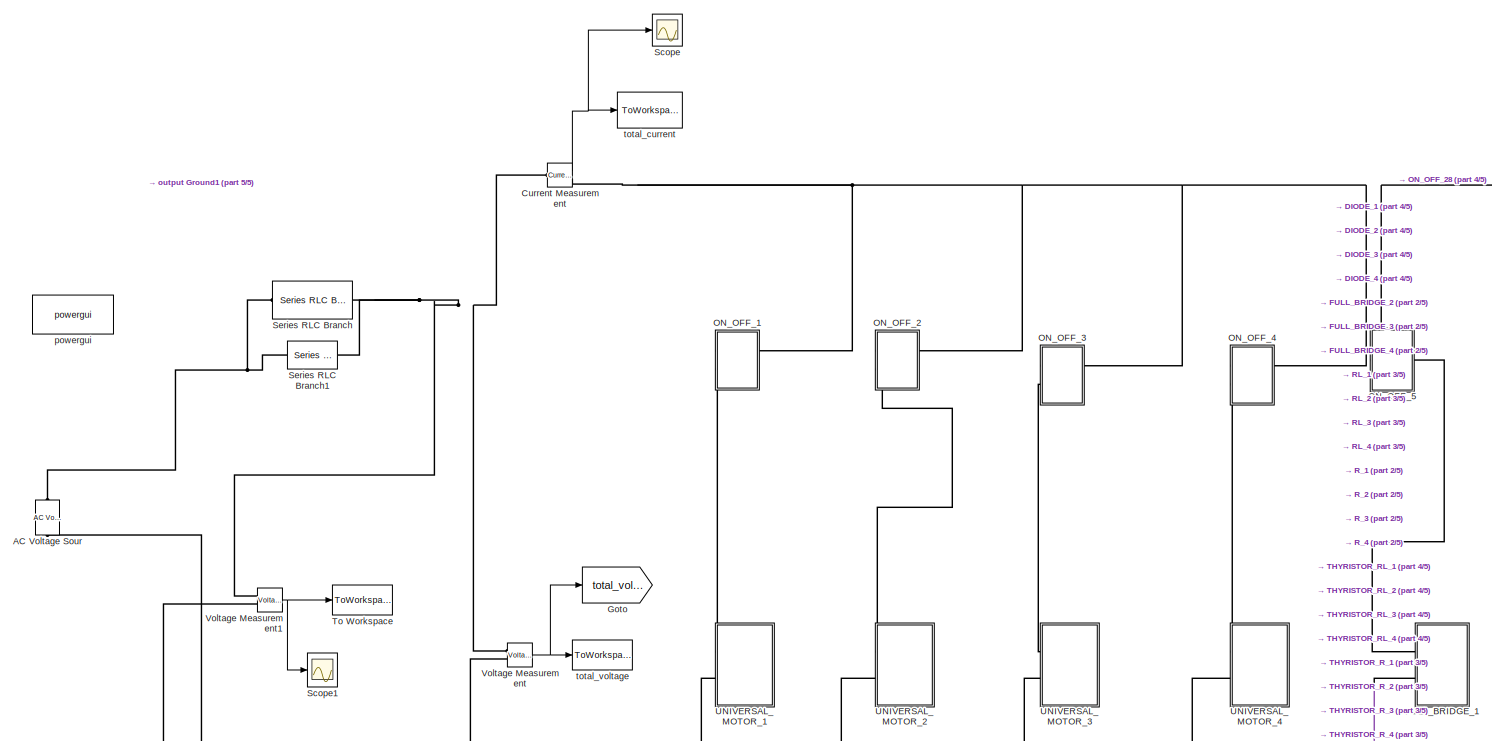
[diagram: root canvas - part 1/5, left side, full height]
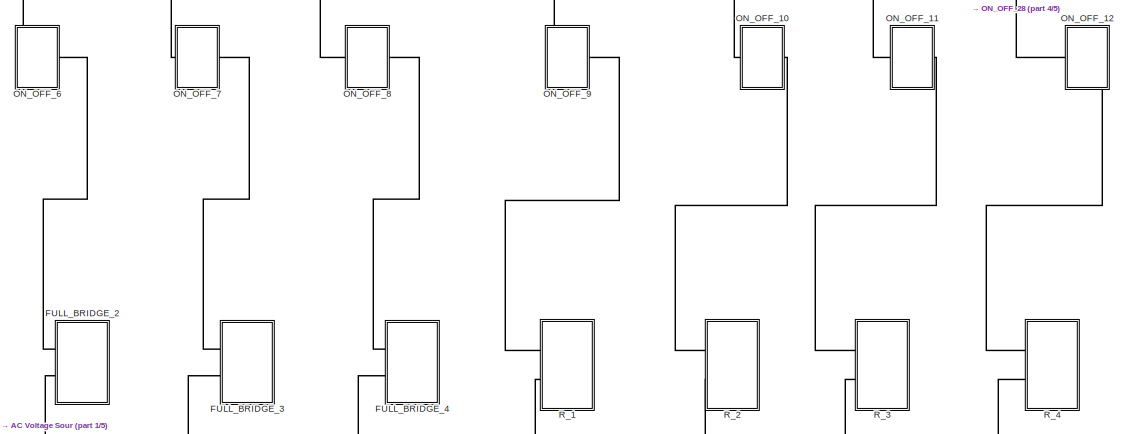
[diagram: root canvas - part 2/5, central region]
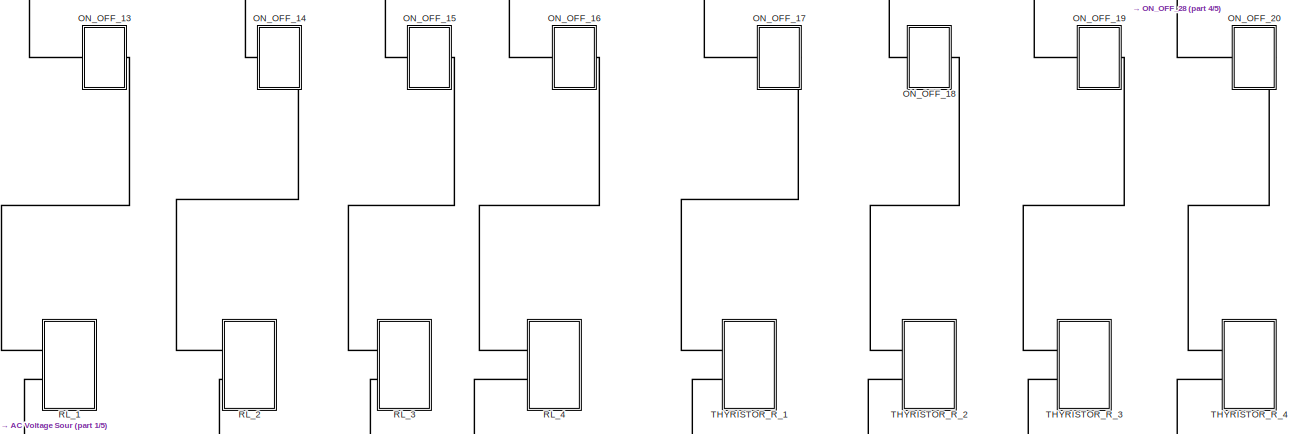
[diagram: root canvas - part 3/5, central region]
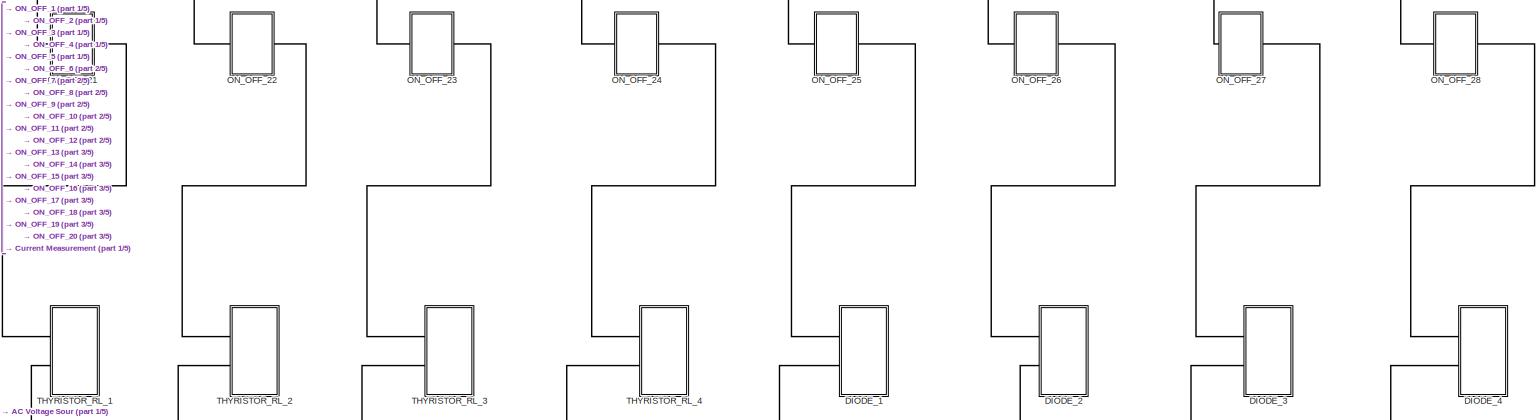
[diagram: root canvas - part 4/5, middle right region]
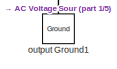
[diagram: root canvas - part 5/5, bottom left region]
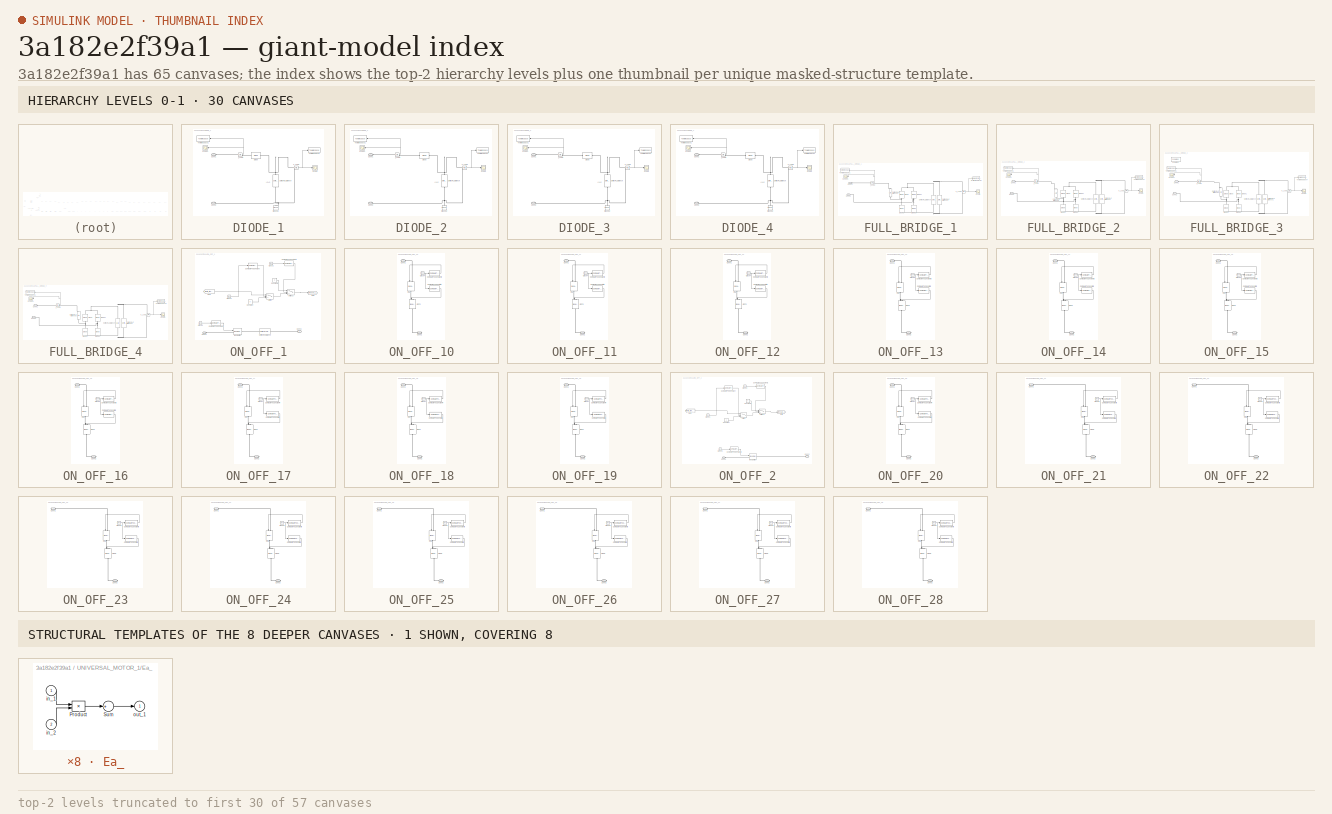
[diagram: thumbnail index - top-2 hierarchy levels (57 canvases (first 30 of 57 shown)) + 1 structural-template representatives of the remaining 8 canvases]
MODEL slx_3a182e2f39a1
KIND model
CONFIG AbsTol = auto
CONFIG EnableMultiTasking = off
CONFIG FixedStep = 1e-6
CONFIG MaxStep = 1e-4
CONFIG MinStep = auto
CONFIG RelTol = 1e-3
CONFIG SampleTimeConstraint = Unconstrained
CONFIG Solver = FixedStepAuto
CONFIG SolverName = FixedStepAuto
CONFIG StartTime = 0.0
CONFIG StopTime = t_total
BLOCK [Reference] AC Voltage Sour  REF=powerlib/Electrical
Sources/AC Voltage Source
  Ports = [0, 0, 0, 0, 0, 1, 1]
  SourceBlock = powerlib/Electrical\nSources/AC Voltage Source
  SourceProductBaseCode = PS
  SourceProductName = Simscape Electrical
  SourceType = AC Voltage Source
BLOCK [Reference] Current Measurement  REF=powerlib/Measurements/Current Measurement
  Ports = [0, 1, 0, 0, 0, 1, 1]
  SourceBlock = powerlib/Measurements/Current Measurement
  SourceProductBaseCode = PS
  SourceProductName = Simscape Electrical
  SourceType = Current Measurement
  UserDataPersistent = on
BLOCK [SubSystem] DIODE_1
  Commented = on
  Ports = [0, 0, 0, 0, 0, 2]
  RequestExecContextInheritance = off
BLOCK [PMIOPort] DIODE_1/Conn1
  Side = Left
BLOCK [PMIOPort] DIODE_1/Conn2
  Port = 2
  Side = Left
BLOCK [Reference] DIODE_1/Diode  REF=powerlib/Power
Electronics/Diode
  Ports = [0, 0, 0, 0, 0, 1, 1]
  SourceBlock = powerlib/Power\nElectronics/Diode
  SourceProductBaseCode = PS
  SourceProductName = Simscape Electrical
  SourceType = Diode
BLOCK [Reference] DIODE_1/Ground2  REF=powerlib/Elements/Ground
  AttributesFormatString = \n
  Ports = [0, 0, 0, 0, 0, 1]
  SourceBlock = powerlib/Elements/Ground
  SourceProductBaseCode = PS
  SourceProductName = Simscape Electrical
  SourceType = Ground
BLOCK [Scope] DIODE_1/Scope
  Floating = off
  NumInputPorts = 1
  Ports = [1]
  ScopeSpecificationString = Simulink.scopes.TimeScopeBlockCfg('CurrentConfiguration', extmgr.ConfigurationSet(extmgr.Configuration('Core','General UI',true),extmgr.Configuration('Core','Source UI',true),extmgr.Configuration('Sources','WiredSimulink',true,'DataLoggingVariableName','ScopeData10'),extmgr.Configuration('Visuals','Time Domain',true,'SerializedDisplays',{struct('MinYLimReal','-225.73231','MaxYLimReal','224.11337',...<+1407ch>  <repeated x8 — deduplicated; at blocks: Scope>
BLOCK [Scope] DIODE_1/Scope1
  Floating = off
  NumInputPorts = 1
  Ports = [1]
  ScopeSpecificationString = Simulink.scopes.TimeScopeBlockCfg('CurrentConfiguration', extmgr.ConfigurationSet(extmgr.Configuration('Core','General UI',true),extmgr.Configuration('Core','Source UI',true),extmgr.Configuration('Sources','WiredSimulink',true,'DataLoggingVariableName','ScopeData11'),extmgr.Configuration('Visuals','Time Domain',true,'SerializedDisplays',{struct('MinYLimReal','-0.45049','MaxYLimReal','3.07679','YLa...<+1393ch>  <repeated x8 — deduplicated; at blocks: Scope1>
BLOCK [Reference] DIODE_1/Series RLC Branch  REF=powerlib/Elements/Series RLC Branch
  Ports = [0, 0, 0, 0, 0, 1, 1]
  SourceBlock = powerlib/Elements/Series RLC Branch
  SourceProductBaseCode = PS
  SourceProductName = Simscape Electrical
  SourceType = Series RLC Branch
BLOCK [ToWorkspace] DIODE_1/To Workspace1
  FixptAsFi = on
  MaxDataPoints = inf
  Ports = [1]
  SampleTime = -1
  VariableName = corrente_diodo_1
BLOCK [ToWorkspace] DIODE_1/To Workspace4
  FixptAsFi = on
  MaxDataPoints = inf
  Ports = [1]
  SampleTime = -1
  VariableName = tensao_diodo_1
BLOCK [Reference] DIODE_1/V_Load  REF=powerlib/Measurements/Voltage Measurement
  Ports = [0, 1, 0, 0, 0, 2]
  SourceBlock = powerlib/Measurements/Voltage Measurement
  SourceProductBaseCode = PS
  SourceProductName = Simscape Electrical
  SourceType = Voltage Measurement
  UserDataPersistent = on
BLOCK [Reference] DIODE_1/i_Load  REF=powerlib/Measurements/Current Measurement
  AttributesFormatString = \n
  Ports = [0, 1, 0, 0, 0, 1, 1]
  SourceBlock = powerlib/Measurements/Current Measurement
  SourceProductBaseCode = PS
  SourceProductName = Simscape Electrical
  SourceType = Current Measurement
  Tag = PoWeRsYsTeMmEaSuReMeNt
BLOCK [SubSystem] DIODE_2
  Commented = on
  Ports = [0, 0, 0, 0, 0, 2]
  RequestExecContextInheritance = off
BLOCK [PMIOPort] DIODE_2/Conn1
  Side = Left
BLOCK [PMIOPort] DIODE_2/Conn2
  Port = 2
  Side = Left
BLOCK [Reference] DIODE_2/Diode  REF=powerlib/Power
Electronics/Diode
  Ports = [0, 0, 0, 0, 0, 1, 1]
  SourceBlock = powerlib/Power\nElectronics/Diode
  SourceProductBaseCode = PS
  SourceProductName = Simscape Electrical
  SourceType = Diode
BLOCK [Reference] DIODE_2/Ground2  REF=powerlib/Elements/Ground
  AttributesFormatString = \n
  Ports = [0, 0, 0, 0, 0, 1]
  SourceBlock = powerlib/Elements/Ground
  SourceProductBaseCode = PS
  SourceProductName = Simscape Electrical
  SourceType = Ground
BLOCK [Scope] DIODE_2/Scope
  Floating = off
  NumInputPorts = 1
  Ports = [1]
BLOCK [Scope] DIODE_2/Scope1
  Floating = off
  NumInputPorts = 1
  Ports = [1]
BLOCK [Reference] DIODE_2/Series RLC Branch  REF=powerlib/Elements/Series RLC Branch
  Ports = [0, 0, 0, 0, 0, 1, 1]
  SourceBlock = powerlib/Elements/Series RLC Branch
  SourceProductBaseCode = PS
  SourceProductName = Simscape Electrical
  SourceType = Series RLC Branch
BLOCK [ToWorkspace] DIODE_2/To Workspace1
  FixptAsFi = on
  MaxDataPoints = inf
  Ports = [1]
  SampleTime = -1
  VariableName = corrente_diodo_2
BLOCK [ToWorkspace] DIODE_2/To Workspace4
  FixptAsFi = on
  MaxDataPoints = inf
  Ports = [1]
  SampleTime = -1
  VariableName = tensao_diodo_2
BLOCK [Reference] DIODE_2/V_Load  REF=powerlib/Measurements/Voltage Measurement
  Ports = [0, 1, 0, 0, 0, 2]
  SourceBlock = powerlib/Measurements/Voltage Measurement
  SourceProductBaseCode = PS
  SourceProductName = Simscape Electrical
  SourceType = Voltage Measurement
  UserDataPersistent = on
BLOCK [Reference] DIODE_2/i_Load  REF=powerlib/Measurements/Current Measurement
  AttributesFormatString = \n
  Ports = [0, 1, 0, 0, 0, 1, 1]
  SourceBlock = powerlib/Measurements/Current Measurement
  SourceProductBaseCode = PS
  SourceProductName = Simscape Electrical
  SourceType = Current Measurement
  Tag = PoWeRsYsTeMmEaSuReMeNt
BLOCK [SubSystem] DIODE_3
  Commented = on
  Ports = [0, 0, 0, 0, 0, 2]
  RequestExecContextInheritance = off
BLOCK [PMIOPort] DIODE_3/Conn1
  Side = Left
BLOCK [PMIOPort] DIODE_3/Conn2
  Port = 2
  Side = Left
BLOCK [Reference] DIODE_3/Diode  REF=powerlib/Power
Electronics/Diode
  Ports = [0, 0, 0, 0, 0, 1, 1]
  SourceBlock = powerlib/Power\nElectronics/Diode
  SourceProductBaseCode = PS
  SourceProductName = Simscape Electrical
  SourceType = Diode
BLOCK [Reference] DIODE_3/Ground2  REF=powerlib/Elements/Ground
  AttributesFormatString = \n
  Ports = [0, 0, 0, 0, 0, 1]
  SourceBlock = powerlib/Elements/Ground
  SourceProductBaseCode = PS
  SourceProductName = Simscape Electrical
  SourceType = Ground
BLOCK [Scope] DIODE_3/Scope
  Floating = off
  NumInputPorts = 1
  Ports = [1]
BLOCK [Scope] DIODE_3/Scope1
  Floating = off
  NumInputPorts = 1
  Ports = [1]
BLOCK [Reference] DIODE_3/Series RLC Branch  REF=powerlib/Elements/Series RLC Branch
  Ports = [0, 0, 0, 0, 0, 1, 1]
  SourceBlock = powerlib/Elements/Series RLC Branch
  SourceProductBaseCode = PS
  SourceProductName = Simscape Electrical
  SourceType = Series RLC Branch
BLOCK [ToWorkspace] DIODE_3/To Workspace1
  FixptAsFi = on
  MaxDataPoints = inf
  Ports = [1]
  SampleTime = -1
  VariableName = corrente_diodo_3
BLOCK [ToWorkspace] DIODE_3/To Workspace4
  FixptAsFi = on
  MaxDataPoints = inf
  Ports = [1]
  SampleTime = -1
  VariableName = tensao_diodo_3
BLOCK [Reference] DIODE_3/V_Load  REF=powerlib/Measurements/Voltage Measurement
  Ports = [0, 1, 0, 0, 0, 2]
  SourceBlock = powerlib/Measurements/Voltage Measurement
  SourceProductBaseCode = PS
  SourceProductName = Simscape Electrical
  SourceType = Voltage Measurement
  UserDataPersistent = on
BLOCK [Reference] DIODE_3/i_Load  REF=powerlib/Measurements/Current Measurement
  AttributesFormatString = \n
  Ports = [0, 1, 0, 0, 0, 1, 1]
  SourceBlock = powerlib/Measurements/Current Measurement
  SourceProductBaseCode = PS
  SourceProductName = Simscape Electrical
  SourceType = Current Measurement
  Tag = PoWeRsYsTeMmEaSuReMeNt
BLOCK [SubSystem] DIODE_4
  Commented = on
  Ports = [0, 0, 0, 0, 0, 2]
  RequestExecContextInheritance = off
BLOCK [PMIOPort] DIODE_4/Conn1
  Side = Left
BLOCK [PMIOPort] DIODE_4/Conn2
  Port = 2
  Side = Left
BLOCK [Reference] DIODE_4/Diode  REF=powerlib/Power
Electronics/Diode
  Ports = [0, 0, 0, 0, 0, 1, 1]
  SourceBlock = powerlib/Power\nElectronics/Diode
  SourceProductBaseCode = PS
  SourceProductName = Simscape Electrical
  SourceType = Diode
BLOCK [Reference] DIODE_4/Ground2  REF=powerlib/Elements/Ground
  AttributesFormatString = \n
  Ports = [0, 0, 0, 0, 0, 1]
  SourceBlock = powerlib/Elements/Ground
  SourceProductBaseCode = PS
  SourceProductName = Simscape Electrical
  SourceType = Ground
BLOCK [Scope] DIODE_4/Scope
  Floating = off
  NumInputPorts = 1
  Ports = [1]
BLOCK [Scope] DIODE_4/Scope1
  Floating = off
  NumInputPorts = 1
  Ports = [1]
BLOCK [Reference] DIODE_4/Series RLC Branch  REF=powerlib/Elements/Series RLC Branch
  Ports = [0, 0, 0, 0, 0, 1, 1]
  SourceBlock = powerlib/Elements/Series RLC Branch
  SourceProductBaseCode = PS
  SourceProductName = Simscape Electrical
  SourceType = Series RLC Branch
BLOCK [ToWorkspace] DIODE_4/To Workspace1
  FixptAsFi = on
  MaxDataPoints = inf
  Ports = [1]
  SampleTime = -1
  VariableName = corrente_diodo_4
BLOCK [ToWorkspace] DIODE_4/To Workspace4
  FixptAsFi = on
  MaxDataPoints = inf
  Ports = [1]
  SampleTime = -1
  VariableName = tensao_diodo_4
BLOCK [Reference] DIODE_4/V_Load  REF=powerlib/Measurements/Voltage Measurement
  Ports = [0, 1, 0, 0, 0, 2]
  SourceBlock = powerlib/Measurements/Voltage Measurement
  SourceProductBaseCode = PS
  SourceProductName = Simscape Electrical
  SourceType = Voltage Measurement
  UserDataPersistent = on
BLOCK [Reference] DIODE_4/i_Load  REF=powerlib/Measurements/Current Measurement
  AttributesFormatString = \n
  Ports = [0, 1, 0, 0, 0, 1, 1]
  SourceBlock = powerlib/Measurements/Current Measurement
  SourceProductBaseCode = PS
  SourceProductName = Simscape Electrical
  SourceType = Current Measurement
  Tag = PoWeRsYsTeMmEaSuReMeNt
BLOCK [SubSystem] FULL_BRIDGE_1
  Commented = on
  Ports = [0, 0, 0, 0, 0, 2]
  RequestExecContextInheritance = off
BLOCK [PMIOPort] FULL_BRIDGE_1/Conn1
  Side = Left
BLOCK [PMIOPort] FULL_BRIDGE_1/Conn2
  Port = 2
  Side = Left
BLOCK [Reference] FULL_BRIDGE_1/Diode  REF=powerlib/Power
Electronics/Diode
  Ports = [0, 0, 0, 0, 0, 1, 1]
  SourceBlock = powerlib/Power\nElectronics/Diode
  SourceProductBaseCode = PS
  SourceProductName = Simscape Electrical
  SourceType = Diode
BLOCK [Reference] FULL_BRIDGE_1/Diode1  REF=powerlib/Power
Electronics/Diode
  Ports = [0, 0, 0, 0, 0, 1, 1]
  SourceBlock = powerlib/Power\nElectronics/Diode
  SourceProductBaseCode = PS
  SourceProductName = Simscape Electrical
  SourceType = Diode
BLOCK [Reference] FULL_BRIDGE_1/Diode2  REF=powerlib/Power
Electronics/Diode
  Ports = [0, 0, 0, 0, 0, 1, 1]
  SourceBlock = powerlib/Power\nElectronics/Diode
  SourceProductBaseCode = PS
  SourceProductName = Simscape Electrical
  SourceType = Diode
BLOCK [Reference] FULL_BRIDGE_1/Diode3  REF=powerlib/Power
Electronics/Diode
  Ports = [0, 0, 0, 0, 0, 1, 1]
  SourceBlock = powerlib/Power\nElectronics/Diode
  SourceProductBaseCode = PS
  SourceProductName = Simscape Electrical
  SourceType = Diode
BLOCK [Scope] FULL_BRIDGE_1/Scope
  Floating = off
  NumInputPorts = 1
  Ports = [1]
  ScopeSpecificationString = Simulink.scopes.TimeScopeBlockCfg('CurrentConfiguration', extmgr.ConfigurationSet(extmgr.Configuration('Core','General UI',true),extmgr.Configuration('Core','Source UI',true),extmgr.Configuration('Sources','WiredSimulink',true,'DataLoggingVariableName','ScopeData2'),extmgr.Configuration('Visuals','Time Domain',true,'SerializedDisplays',{struct('MinYLimReal','-0.17566','MaxYLimReal','1.58113','YLab...<+1392ch>  <repeated x4 — deduplicated; at blocks: Scope>
BLOCK [Scope] FULL_BRIDGE_1/Scope1
  Floating = off
  NumInputPorts = 1
  Ports = [1]
  ScopeSpecificationString = Simulink.scopes.TimeScopeBlockCfg('CurrentConfiguration', extmgr.ConfigurationSet(extmgr.Configuration('Core','General UI',true),extmgr.Configuration('Core','Source UI',true),extmgr.Configuration('Sources','WiredSimulink',true,'DataLoggingVariableName','ScopeData3'),extmgr.Configuration('Visuals','Time Domain',true,'SerializedDisplays',{struct('MinYLimReal','-0.45049','MaxYLimReal','3.07679','YLab...<+1392ch>  <repeated x4 — deduplicated; at blocks: Scope1>
BLOCK [Reference] FULL_BRIDGE_1/Series RLC Branch  REF=powerlib/Elements/Series RLC Branch
  Ports = [0, 0, 0, 0, 0, 1, 1]
  SourceBlock = powerlib/Elements/Series RLC Branch
  SourceProductBaseCode = PS
  SourceProductName = Simscape Electrical
  SourceType = Series RLC Branch
BLOCK [Reference] FULL_BRIDGE_1/Series RLC Branch1  REF=powerlib/Elements/Series RLC Branch
  Ports = [0, 0, 0, 0, 0, 1, 1]
  SourceBlock = powerlib/Elements/Series RLC Branch
  SourceProductBaseCode = PS
  SourceProductName = Simscape Electrical
  SourceType = Series RLC Branch
BLOCK [Reference] FULL_BRIDGE_1/Series RLC Branch2  REF=powerlib/Elements/Series RLC Branch
  Ports = [0, 0, 0, 0, 0, 1, 1]
  SourceBlock = powerlib/Elements/Series RLC Branch
  SourceProductBaseCode = PS
  SourceProductName = Simscape Electrical
  SourceType = Series RLC Branch
BLOCK [ToWorkspace] FULL_BRIDGE_1/To Workspace1
  FixptAsFi = on
  MaxDataPoints = inf
  Ports = [1]
  SampleTime = -1
  VariableName = corrente_ponte_1
BLOCK [ToWorkspace] FULL_BRIDGE_1/To Workspace4
  FixptAsFi = on
  MaxDataPoints = inf
  Ports = [1]
  SampleTime = -1
  VariableName = tensao_ponte_1
BLOCK [Reference] FULL_BRIDGE_1/V_Load  REF=powerlib/Measurements/Voltage Measurement
  Ports = [0, 1, 0, 0, 0, 2]
  SourceBlock = powerlib/Measurements/Voltage Measurement
  SourceProductBaseCode = PS
  SourceProductName = Simscape Electrical
  SourceType = Voltage Measurement
  UserDataPersistent = on
BLOCK [Reference] FULL_BRIDGE_1/i_Load  REF=powerlib/Measurements/Current Measurement
  AttributesFormatString = \n
  Ports = [0, 1, 0, 0, 0, 1, 1]
  SourceBlock = powerlib/Measurements/Current Measurement
  SourceProductBaseCode = PS
  SourceProductName = Simscape Electrical
  SourceType = Current Measurement
  Tag = PoWeRsYsTeMmEaSuReMeNt
BLOCK [SubSystem] FULL_BRIDGE_2
  Commented = on
  Ports = [0, 0, 0, 0, 0, 2]
  RequestExecContextInheritance = off
BLOCK [PMIOPort] FULL_BRIDGE_2/Conn1
  Side = Left
BLOCK [PMIOPort] FULL_BRIDGE_2/Conn2
  Port = 2
  Side = Left
BLOCK [Reference] FULL_BRIDGE_2/Diode  REF=powerlib/Power
Electronics/Diode
  Ports = [0, 0, 0, 0, 0, 1, 1]
  SourceBlock = powerlib/Power\nElectronics/Diode
  SourceProductBaseCode = PS
  SourceProductName = Simscape Electrical
  SourceType = Diode
BLOCK [Reference] FULL_BRIDGE_2/Diode1  REF=powerlib/Power
Electronics/Diode
  Ports = [0, 0, 0, 0, 0, 1, 1]
  SourceBlock = powerlib/Power\nElectronics/Diode
  SourceProductBaseCode = PS
  SourceProductName = Simscape Electrical
  SourceType = Diode
BLOCK [Reference] FULL_BRIDGE_2/Diode2  REF=powerlib/Power
Electronics/Diode
  Ports = [0, 0, 0, 0, 0, 1, 1]
  SourceBlock = powerlib/Power\nElectronics/Diode
  SourceProductBaseCode = PS
  SourceProductName = Simscape Electrical
  SourceType = Diode
BLOCK [Reference] FULL_BRIDGE_2/Diode3  REF=powerlib/Power
Electronics/Diode
  Ports = [0, 0, 0, 0, 0, 1, 1]
  SourceBlock = powerlib/Power\nElectronics/Diode
  SourceProductBaseCode = PS
  SourceProductName = Simscape Electrical
  SourceType = Diode
BLOCK [Scope] FULL_BRIDGE_2/Scope
  Floating = off
  NumInputPorts = 1
  Ports = [1]
BLOCK [Scope] FULL_BRIDGE_2/Scope1
  Floating = off
  NumInputPorts = 1
  Ports = [1]
BLOCK [Reference] FULL_BRIDGE_2/Series RLC Branch  REF=powerlib/Elements/Series RLC Branch
  Ports = [0, 0, 0, 0, 0, 1, 1]
  SourceBlock = powerlib/Elements/Series RLC Branch
  SourceProductBaseCode = PS
  SourceProductName = Simscape Electrical
  SourceType = Series RLC Branch
BLOCK [Reference] FULL_BRIDGE_2/Series RLC Branch1  REF=powerlib/Elements/Series RLC Branch
  Ports = [0, 0, 0, 0, 0, 1, 1]
  SourceBlock = powerlib/Elements/Series RLC Branch
  SourceProductBaseCode = PS
  SourceProductName = Simscape Electrical
  SourceType = Series RLC Branch
BLOCK [Reference] FULL_BRIDGE_2/Series RLC Branch2  REF=powerlib/Elements/Series RLC Branch
  Ports = [0, 0, 0, 0, 0, 1, 1]
  SourceBlock = powerlib/Elements/Series RLC Branch
  SourceProductBaseCode = PS
  SourceProductName = Simscape Electrical
  SourceType = Series RLC Branch
BLOCK [ToWorkspace] FULL_BRIDGE_2/To Workspace1
  FixptAsFi = on
  MaxDataPoints = inf
  Ports = [1]
  SampleTime = -1
  VariableName = corrente_ponte_2
BLOCK [ToWorkspace] FULL_BRIDGE_2/To Workspace4
  FixptAsFi = on
  MaxDataPoints = inf
  Ports = [1]
  SampleTime = -1
  VariableName = tensao_ponte_2
BLOCK [Reference] FULL_BRIDGE_2/V_Load  REF=powerlib/Measurements/Voltage Measurement
  Ports = [0, 1, 0, 0, 0, 2]
  SourceBlock = powerlib/Measurements/Voltage Measurement
  SourceProductBaseCode = PS
  SourceProductName = Simscape Electrical
  SourceType = Voltage Measurement
  UserDataPersistent = on
BLOCK [Reference] FULL_BRIDGE_2/i_Load  REF=powerlib/Measurements/Current Measurement
  AttributesFormatString = \n
  Ports = [0, 1, 0, 0, 0, 1, 1]
  SourceBlock = powerlib/Measurements/Current Measurement
  SourceProductBaseCode = PS
  SourceProductName = Simscape Electrical
  SourceType = Current Measurement
  Tag = PoWeRsYsTeMmEaSuReMeNt
BLOCK [SubSystem] FULL_BRIDGE_3
  Commented = on
  Ports = [0, 0, 0, 0, 0, 2]
  RequestExecContextInheritance = off
BLOCK [PMIOPort] FULL_BRIDGE_3/Conn1
  Side = Left
BLOCK [PMIOPort] FULL_BRIDGE_3/Conn2
  Port = 2
  Side = Left
BLOCK [Reference] FULL_BRIDGE_3/Diode  REF=powerlib/Power
Electronics/Diode
  Ports = [0, 0, 0, 0, 0, 1, 1]
  SourceBlock = powerlib/Power\nElectronics/Diode
  SourceProductBaseCode = PS
  SourceProductName = Simscape Electrical
  SourceType = Diode
BLOCK [Reference] FULL_BRIDGE_3/Diode1  REF=powerlib/Power
Electronics/Diode
  Ports = [0, 0, 0, 0, 0, 1, 1]
  SourceBlock = powerlib/Power\nElectronics/Diode
  SourceProductBaseCode = PS
  SourceProductName = Simscape Electrical
  SourceType = Diode
BLOCK [Reference] FULL_BRIDGE_3/Diode2  REF=powerlib/Power
Electronics/Diode
  Ports = [0, 0, 0, 0, 0, 1, 1]
  SourceBlock = powerlib/Power\nElectronics/Diode
  SourceProductBaseCode = PS
  SourceProductName = Simscape Electrical
  SourceType = Diode
BLOCK [Reference] FULL_BRIDGE_3/Diode3  REF=powerlib/Power
Electronics/Diode
  Ports = [0, 0, 0, 0, 0, 1, 1]
  SourceBlock = powerlib/Power\nElectronics/Diode
  SourceProductBaseCode = PS
  SourceProductName = Simscape Electrical
  SourceType = Diode
BLOCK [Scope] FULL_BRIDGE_3/Scope
  Floating = off
  NumInputPorts = 1
  Ports = [1]
BLOCK [Scope] FULL_BRIDGE_3/Scope1
  Floating = off
  NumInputPorts = 1
  Ports = [1]
BLOCK [Reference] FULL_BRIDGE_3/Series RLC Branch  REF=powerlib/Elements/Series RLC Branch
  Ports = [0, 0, 0, 0, 0, 1, 1]
  SourceBlock = powerlib/Elements/Series RLC Branch
  SourceProductBaseCode = PS
  SourceProductName = Simscape Electrical
  SourceType = Series RLC Branch
BLOCK [Reference] FULL_BRIDGE_3/Series RLC Branch1  REF=powerlib/Elements/Series RLC Branch
  Ports = [0, 0, 0, 0, 0, 1, 1]
  SourceBlock = powerlib/Elements/Series RLC Branch
  SourceProductBaseCode = PS
  SourceProductName = Simscape Electrical
  SourceType = Series RLC Branch
BLOCK [Reference] FULL_BRIDGE_3/Series RLC Branch2  REF=powerlib/Elements/Series RLC Branch
  Ports = [0, 0, 0, 0, 0, 1, 1]
  SourceBlock = powerlib/Elements/Series RLC Branch
  SourceProductBaseCode = PS
  SourceProductName = Simscape Electrical
  SourceType = Series RLC Branch
BLOCK [ToWorkspace] FULL_BRIDGE_3/To Workspace1
  FixptAsFi = on
  MaxDataPoints = inf
  Ports = [1]
  SampleTime = -1
  VariableName = corrente_ponte_3
BLOCK [ToWorkspace] FULL_BRIDGE_3/To Workspace4
  FixptAsFi = on
  MaxDataPoints = inf
  Ports = [1]
  SampleTime = -1
  VariableName = tensao_ponte_3
BLOCK [Reference] FULL_BRIDGE_3/V_Load  REF=powerlib/Measurements/Voltage Measurement
  Ports = [0, 1, 0, 0, 0, 2]
  SourceBlock = powerlib/Measurements/Voltage Measurement
  SourceProductBaseCode = PS
  SourceProductName = Simscape Electrical
  SourceType = Voltage Measurement
  UserDataPersistent = on
BLOCK [Reference] FULL_BRIDGE_3/i_Load  REF=powerlib/Measurements/Current Measurement
  AttributesFormatString = \n
  Ports = [0, 1, 0, 0, 0, 1, 1]
  SourceBlock = powerlib/Measurements/Current Measurement
  SourceProductBaseCode = PS
  SourceProductName = Simscape Electrical
  SourceType = Current Measurement
  Tag = PoWeRsYsTeMmEaSuReMeNt
BLOCK [Reference] FULL_BRIDGE_3/powergui  REF=powerlib/powergui
  Ports = []
  Priority = 1
  SourceBlock = powerlib/powergui
  SourceProductBaseCode = PS
  SourceProductName = Simscape Electrical
  SourceType = PSB option menu block
BLOCK [SubSystem] FULL_BRIDGE_4
  Commented = on
  Ports = [0, 0, 0, 0, 0, 2]
  RequestExecContextInheritance = off
BLOCK [PMIOPort] FULL_BRIDGE_4/Conn1
  Side = Left
BLOCK [PMIOPort] FULL_BRIDGE_4/Conn2
  Port = 2
  Side = Left
BLOCK [Reference] FULL_BRIDGE_4/Diode  REF=powerlib/Power
Electronics/Diode
  Ports = [0, 0, 0, 0, 0, 1, 1]
  SourceBlock = powerlib/Power\nElectronics/Diode
  SourceProductBaseCode = PS
  SourceProductName = Simscape Electrical
  SourceType = Diode
BLOCK [Reference] FULL_BRIDGE_4/Diode1  REF=powerlib/Power
Electronics/Diode
  Ports = [0, 0, 0, 0, 0, 1, 1]
  SourceBlock = powerlib/Power\nElectronics/Diode
  SourceProductBaseCode = PS
  SourceProductName = Simscape Electrical
  SourceType = Diode
BLOCK [Reference] FULL_BRIDGE_4/Diode2  REF=powerlib/Power
Electronics/Diode
  Ports = [0, 0, 0, 0, 0, 1, 1]
  SourceBlock = powerlib/Power\nElectronics/Diode
  SourceProductBaseCode = PS
  SourceProductName = Simscape Electrical
  SourceType = Diode
BLOCK [Reference] FULL_BRIDGE_4/Diode3  REF=powerlib/Power
Electronics/Diode
  Ports = [0, 0, 0, 0, 0, 1, 1]
  SourceBlock = powerlib/Power\nElectronics/Diode
  SourceProductBaseCode = PS
  SourceProductName = Simscape Electrical
  SourceType = Diode
BLOCK [Scope] FULL_BRIDGE_4/Scope
  Floating = off
  NumInputPorts = 1
  Ports = [1]
BLOCK [Scope] FULL_BRIDGE_4/Scope1
  Floating = off
  NumInputPorts = 1
  Ports = [1]
BLOCK [Reference] FULL_BRIDGE_4/Series RLC Branch  REF=powerlib/Elements/Series RLC Branch
  Ports = [0, 0, 0, 0, 0, 1, 1]
  SourceBlock = powerlib/Elements/Series RLC Branch
  SourceProductBaseCode = PS
  SourceProductName = Simscape Electrical
  SourceType = Series RLC Branch
BLOCK [Reference] FULL_BRIDGE_4/Series RLC Branch1  REF=powerlib/Elements/Series RLC Branch
  Ports = [0, 0, 0, 0, 0, 1, 1]
  SourceBlock = powerlib/Elements/Series RLC Branch
  SourceProductBaseCode = PS
  SourceProductName = Simscape Electrical
  SourceType = Series RLC Branch
BLOCK [Reference] FULL_BRIDGE_4/Series RLC Branch2  REF=powerlib/Elements/Series RLC Branch
  Ports = [0, 0, 0, 0, 0, 1, 1]
  SourceBlock = powerlib/Elements/Series RLC Branch
  SourceProductBaseCode = PS
  SourceProductName = Simscape Electrical
  SourceType = Series RLC Branch
BLOCK [ToWorkspace] FULL_BRIDGE_4/To Workspace1
  FixptAsFi = on
  MaxDataPoints = inf
  Ports = [1]
  SampleTime = -1
  VariableName = corrente_ponte_4
BLOCK [ToWorkspace] FULL_BRIDGE_4/To Workspace4
  FixptAsFi = on
  MaxDataPoints = inf
  Ports = [1]
  SampleTime = -1
  VariableName = tensao_ponte_4
BLOCK [Reference] FULL_BRIDGE_4/V_Load  REF=powerlib/Measurements/Voltage Measurement
  Ports = [0, 1, 0, 0, 0, 2]
  SourceBlock = powerlib/Measurements/Voltage Measurement
  SourceProductBaseCode = PS
  SourceProductName = Simscape Electrical
  SourceType = Voltage Measurement
  UserDataPersistent = on
BLOCK [Reference] FULL_BRIDGE_4/i_Load  REF=powerlib/Measurements/Current Measurement
  AttributesFormatString = \n
  Ports = [0, 1, 0, 0, 0, 1, 1]
  SourceBlock = powerlib/Measurements/Current Measurement
  SourceProductBaseCode = PS
  SourceProductName = Simscape Electrical
  SourceType = Current Measurement
  Tag = PoWeRsYsTeMmEaSuReMeNt
BLOCK [Goto] Goto
  GotoTag = total_voltage
  TagVisibility = global
BLOCK [SubSystem] ON_OFF_1
  Ports = [0, 0, 0, 0, 0, 2]
  RequestExecContextInheritance = off
BLOCK [Clock] ON_OFF_1/Clock1
BLOCK [Clock] ON_OFF_1/Clock2
BLOCK [Clock] ON_OFF_1/Clock3
BLOCK [Reference] ON_OFF_1/Compare To Constant  REF=simulink/Logic and Bit
Operations/Compare
To Constant
  Ports = [1, 1]
  SourceBlock = simulink/Logic and Bit\nOperations/Compare\nTo Constant
  SourceProductBaseCode = SL
  SourceProductName = Simulink
  SourceType = Compare To Constant
BLOCK [Reference] ON_OFF_1/Compare To Constant1  REF=simulink/Logic and Bit
Operations/Compare
To Constant
  Ports = [1, 1]
  SourceBlock = simulink/Logic and Bit\nOperations/Compare\nTo Constant
  SourceProductBaseCode = SL
  SourceProductName = Simulink
  SourceType = Compare To Constant
BLOCK [Reference] ON_OFF_1/Compare To Constant2  REF=simulink/Logic and Bit
Operations/Compare
To Constant
  Ports = [1, 1]
  SourceBlock = simulink/Logic and Bit\nOperations/Compare\nTo Constant
  SourceProductBaseCode = SL
  SourceProductName = Simulink
  SourceType = Compare To Constant
BLOCK [PMIOPort] ON_OFF_1/Conn1
  Side = Left
BLOCK [PMIOPort] ON_OFF_1/Conn2
  Port = 2
  Side = Left
BLOCK [Constant] ON_OFF_1/Constant
  Value = 0
BLOCK [Constant] ON_OFF_1/Constant1
  Value = 0
BLOCK [From] ON_OFF_1/From
  GotoTag = fonte_tensao
BLOCK [Goto] ON_OFF_1/Goto
  GotoTag = tensao_1
  TagVisibility = global
BLOCK [Reference] ON_OFF_1/Ideal Switch  REF=powerlib/Power
Electronics/Ideal Switch
  Ports = [1, 0, 0, 0, 0, 1, 1]
  SourceBlock = powerlib/Power\nElectronics/Ideal Switch
  SourceProductBaseCode = PS
  SourceProductName = Simscape Electrical
  SourceType = Ideal Switch
BLOCK [Reference] ON_OFF_1/Series RLC Branch  REF=powerlib/Elements/Series RLC Branch
  Ports = [0, 0, 0, 0, 0, 1, 1]
  SourceBlock = powerlib/Elements/Series RLC Branch
  SourceProductBaseCode = PS
  SourceProductName = Simscape Electrical
  SourceType = Series RLC Branch
BLOCK [Switch] ON_OFF_1/Switch
  InputSameDT = off
  SaturateOnIntegerOverflow = off
BLOCK [Switch] ON_OFF_1/Switch1
  InputSameDT = off
  SaturateOnIntegerOverflow = off
BLOCK [SubSystem] ON_OFF_10
  Commented = on
  Ports = [0, 0, 0, 0, 0, 1, 1]
  RequestExecContextInheritance = off
BLOCK [Clock] ON_OFF_10/Clock4
BLOCK [Reference] ON_OFF_10/Compare To Constant2  REF=simulink/Logic and Bit
Operations/Compare
To Constant
  Ports = [1, 1]
  SourceBlock = simulink/Logic and Bit\nOperations/Compare\nTo Constant
  SourceProductBaseCode = SL
  SourceProductName = Simulink
  SourceType = Compare To Constant
BLOCK [Reference] ON_OFF_10/Compare To Constat3  REF=simulink/Logic and Bit
Operations/Compare
To Constant
  Ports = [1, 1]
  SourceBlock = simulink/Logic and Bit\nOperations/Compare\nTo Constant
  SourceProductBaseCode = SL
  SourceProductName = Simulink
  SourceType = Compare To Constant
BLOCK [PMIOPort] ON_OFF_10/Conn1
  Side = Left
BLOCK [PMIOPort] ON_OFF_10/Conn2
  Port = 2
  Side = Right
BLOCK [Reference] ON_OFF_10/OFF2  REF=powerlib/Power
Electronics/Ideal Switch
  Ports = [1, 0, 0, 0, 0, 1, 1]
  SourceBlock = powerlib/Power\nElectronics/Ideal Switch
  SourceProductBaseCode = PS
  SourceProductName = Simscape Electrical
  SourceType = Ideal Switch
BLOCK [Reference] ON_OFF_10/ON2  REF=powerlib/Power
Electronics/Ideal Switch
  Ports = [1, 0, 0, 0, 0, 1, 1]
  SourceBlock = powerlib/Power\nElectronics/Ideal Switch
  SourceProductBaseCode = PS
  SourceProductName = Simscape Electrical
  SourceType = Ideal Switch
BLOCK [SubSystem] ON_OFF_11
  Commented = on
  Ports = [0, 0, 0, 0, 0, 1, 1]
  RequestExecContextInheritance = off
BLOCK [Clock] ON_OFF_11/Clock4
BLOCK [Reference] ON_OFF_11/Compare To Constant2  REF=simulink/Logic and Bit
Operations/Compare
To Constant
  Ports = [1, 1]
  SourceBlock = simulink/Logic and Bit\nOperations/Compare\nTo Constant
  SourceProductBaseCode = SL
  SourceProductName = Simulink
  SourceType = Compare To Constant
BLOCK [Reference] ON_OFF_11/Compare To Constat3  REF=simulink/Logic and Bit
Operations/Compare
To Constant
  Ports = [1, 1]
  SourceBlock = simulink/Logic and Bit\nOperations/Compare\nTo Constant
  SourceProductBaseCode = SL
  SourceProductName = Simulink
  SourceType = Compare To Constant
BLOCK [PMIOPort] ON_OFF_11/Conn1
  Side = Left
BLOCK [PMIOPort] ON_OFF_11/Conn2
  Port = 2
  Side = Right
BLOCK [Reference] ON_OFF_11/OFF2  REF=powerlib/Power
Electronics/Ideal Switch
  Ports = [1, 0, 0, 0, 0, 1, 1]
  SourceBlock = powerlib/Power\nElectronics/Ideal Switch
  SourceProductBaseCode = PS
  SourceProductName = Simscape Electrical
  SourceType = Ideal Switch
BLOCK [Reference] ON_OFF_11/ON2  REF=powerlib/Power
Electronics/Ideal Switch
  Ports = [1, 0, 0, 0, 0, 1, 1]
  SourceBlock = powerlib/Power\nElectronics/Ideal Switch
  SourceProductBaseCode = PS
  SourceProductName = Simscape Electrical
  SourceType = Ideal Switch
BLOCK [SubSystem] ON_OFF_12
  Commented = on
  Ports = [0, 0, 0, 0, 0, 1, 1]
  RequestExecContextInheritance = off
BLOCK [Clock] ON_OFF_12/Clock4
BLOCK [Reference] ON_OFF_12/Compare To Constant2  REF=simulink/Logic and Bit
Operations/Compare
To Constant
  Ports = [1, 1]
  SourceBlock = simulink/Logic and Bit\nOperations/Compare\nTo Constant
  SourceProductBaseCode = SL
  SourceProductName = Simulink
  SourceType = Compare To Constant
BLOCK [Reference] ON_OFF_12/Compare To Constat3  REF=simulink/Logic and Bit
Operations/Compare
To Constant
  Ports = [1, 1]
  SourceBlock = simulink/Logic and Bit\nOperations/Compare\nTo Constant
  SourceProductBaseCode = SL
  SourceProductName = Simulink
  SourceType = Compare To Constant
BLOCK [PMIOPort] ON_OFF_12/Conn1
  Side = Left
BLOCK [PMIOPort] ON_OFF_12/Conn2
  Port = 2
  Side = Right
BLOCK [Reference] ON_OFF_12/OFF2  REF=powerlib/Power
Electronics/Ideal Switch
  Ports = [1, 0, 0, 0, 0, 1, 1]
  SourceBlock = powerlib/Power\nElectronics/Ideal Switch
  SourceProductBaseCode = PS
  SourceProductName = Simscape Electrical
  SourceType = Ideal Switch
BLOCK [Reference] ON_OFF_12/ON2  REF=powerlib/Power
Electronics/Ideal Switch
  Ports = [1, 0, 0, 0, 0, 1, 1]
  SourceBlock = powerlib/Power\nElectronics/Ideal Switch
  SourceProductBaseCode = PS
  SourceProductName = Simscape Electrical
  SourceType = Ideal Switch
BLOCK [SubSystem] ON_OFF_13
  Commented = on
  Ports = [0, 0, 0, 0, 0, 1, 1]
  RequestExecContextInheritance = off
BLOCK [Clock] ON_OFF_13/Clock6
BLOCK [Reference] ON_OFF_13/Compare To Constant3  REF=simulink/Logic and Bit
Operations/Compare
To Constant
  Ports = [1, 1]
  SourceBlock = simulink/Logic and Bit\nOperations/Compare\nTo Constant
  SourceProductBaseCode = SL
  SourceProductName = Simulink
  SourceType = Compare To Constant
BLOCK [Reference] ON_OFF_13/Compare To Constat4  REF=simulink/Logic and Bit
Operations/Compare
To Constant
  Ports = [1, 1]
  SourceBlock = simulink/Logic and Bit\nOperations/Compare\nTo Constant
  SourceProductBaseCode = SL
  SourceProductName = Simulink
  SourceType = Compare To Constant
BLOCK [PMIOPort] ON_OFF_13/Conn1
  Side = Left
BLOCK [PMIOPort] ON_OFF_13/Conn2
  Port = 2
  Side = Right
BLOCK [Reference] ON_OFF_13/OFF3  REF=powerlib/Power
Electronics/Ideal Switch
  Ports = [1, 0, 0, 0, 0, 1, 1]
  SourceBlock = powerlib/Power\nElectronics/Ideal Switch
  SourceProductBaseCode = PS
  SourceProductName = Simscape Electrical
  SourceType = Ideal Switch
BLOCK [Reference] ON_OFF_13/ON3  REF=powerlib/Power
Electronics/Ideal Switch
  Ports = [1, 0, 0, 0, 0, 1, 1]
  SourceBlock = powerlib/Power\nElectronics/Ideal Switch
  SourceProductBaseCode = PS
  SourceProductName = Simscape Electrical
  SourceType = Ideal Switch
BLOCK [SubSystem] ON_OFF_14
  Commented = on
  Ports = [0, 0, 0, 0, 0, 1, 1]
  RequestExecContextInheritance = off
BLOCK [Clock] ON_OFF_14/Clock6
BLOCK [Reference] ON_OFF_14/Compare To Constant3  REF=simulink/Logic and Bit
Operations/Compare
To Constant
  Ports = [1, 1]
  SourceBlock = simulink/Logic and Bit\nOperations/Compare\nTo Constant
  SourceProductBaseCode = SL
  SourceProductName = Simulink
  SourceType = Compare To Constant
BLOCK [Reference] ON_OFF_14/Compare To Constat4  REF=simulink/Logic and Bit
Operations/Compare
To Constant
  Ports = [1, 1]
  SourceBlock = simulink/Logic and Bit\nOperations/Compare\nTo Constant
  SourceProductBaseCode = SL
  SourceProductName = Simulink
  SourceType = Compare To Constant
BLOCK [PMIOPort] ON_OFF_14/Conn1
  Side = Left
BLOCK [PMIOPort] ON_OFF_14/Conn2
  Port = 2
  Side = Right
BLOCK [Reference] ON_OFF_14/OFF3  REF=powerlib/Power
Electronics/Ideal Switch
  Ports = [1, 0, 0, 0, 0, 1, 1]
  SourceBlock = powerlib/Power\nElectronics/Ideal Switch
  SourceProductBaseCode = PS
  SourceProductName = Simscape Electrical
  SourceType = Ideal Switch
BLOCK [Reference] ON_OFF_14/ON3  REF=powerlib/Power
Electronics/Ideal Switch
  Ports = [1, 0, 0, 0, 0, 1, 1]
  SourceBlock = powerlib/Power\nElectronics/Ideal Switch
  SourceProductBaseCode = PS
  SourceProductName = Simscape Electrical
  SourceType = Ideal Switch
BLOCK [SubSystem] ON_OFF_15
  Commented = on
  Ports = [0, 0, 0, 0, 0, 1, 1]
  RequestExecContextInheritance = off
BLOCK [Clock] ON_OFF_15/Clock6
BLOCK [Reference] ON_OFF_15/Compare To Constant3  REF=simulink/Logic and Bit
Operations/Compare
To Constant
  Ports = [1, 1]
  SourceBlock = simulink/Logic and Bit\nOperations/Compare\nTo Constant
  SourceProductBaseCode = SL
  SourceProductName = Simulink
  SourceType = Compare To Constant
BLOCK [Reference] ON_OFF_15/Compare To Constat4  REF=simulink/Logic and Bit
Operations/Compare
To Constant
  Ports = [1, 1]
  SourceBlock = simulink/Logic and Bit\nOperations/Compare\nTo Constant
  SourceProductBaseCode = SL
  SourceProductName = Simulink
  SourceType = Compare To Constant
BLOCK [PMIOPort] ON_OFF_15/Conn1
  Side = Left
BLOCK [PMIOPort] ON_OFF_15/Conn2
  Port = 2
  Side = Right
BLOCK [Reference] ON_OFF_15/OFF3  REF=powerlib/Power
Electronics/Ideal Switch
  Ports = [1, 0, 0, 0, 0, 1, 1]
  SourceBlock = powerlib/Power\nElectronics/Ideal Switch
  SourceProductBaseCode = PS
  SourceProductName = Simscape Electrical
  SourceType = Ideal Switch
BLOCK [Reference] ON_OFF_15/ON3  REF=powerlib/Power
Electronics/Ideal Switch
  Ports = [1, 0, 0, 0, 0, 1, 1]
  SourceBlock = powerlib/Power\nElectronics/Ideal Switch
  SourceProductBaseCode = PS
  SourceProductName = Simscape Electrical
  SourceType = Ideal Switch
BLOCK [SubSystem] ON_OFF_16
  Commented = on
  Ports = [0, 0, 0, 0, 0, 1, 1]
  RequestExecContextInheritance = off
BLOCK [Clock] ON_OFF_16/Clock6
BLOCK [Reference] ON_OFF_16/Compare To Constant3  REF=simulink/Logic and Bit
Operations/Compare
To Constant
  Ports = [1, 1]
  SourceBlock = simulink/Logic and Bit\nOperations/Compare\nTo Constant
  SourceProductBaseCode = SL
  SourceProductName = Simulink
  SourceType = Compare To Constant
BLOCK [Reference] ON_OFF_16/Compare To Constat4  REF=simulink/Logic and Bit
Operations/Compare
To Constant
  Ports = [1, 1]
  SourceBlock = simulink/Logic and Bit\nOperations/Compare\nTo Constant
  SourceProductBaseCode = SL
  SourceProductName = Simulink
  SourceType = Compare To Constant
BLOCK [PMIOPort] ON_OFF_16/Conn1
  Side = Left
BLOCK [PMIOPort] ON_OFF_16/Conn2
  Port = 2
  Side = Right
BLOCK [Reference] ON_OFF_16/OFF3  REF=powerlib/Power
Electronics/Ideal Switch
  Ports = [1, 0, 0, 0, 0, 1, 1]
  SourceBlock = powerlib/Power\nElectronics/Ideal Switch
  SourceProductBaseCode = PS
  SourceProductName = Simscape Electrical
  SourceType = Ideal Switch
BLOCK [Reference] ON_OFF_16/ON3  REF=powerlib/Power
Electronics/Ideal Switch
  Ports = [1, 0, 0, 0, 0, 1, 1]
  SourceBlock = powerlib/Power\nElectronics/Ideal Switch
  SourceProductBaseCode = PS
  SourceProductName = Simscape Electrical
  SourceType = Ideal Switch
BLOCK [SubSystem] ON_OFF_17
  Commented = on
  Ports = [0, 0, 0, 0, 0, 1, 1]
  RequestExecContextInheritance = off
BLOCK [Clock] ON_OFF_17/Clock7
BLOCK [Reference] ON_OFF_17/Compare To Constant4  REF=simulink/Logic and Bit
Operations/Compare
To Constant
  Ports = [1, 1]
  SourceBlock = simulink/Logic and Bit\nOperations/Compare\nTo Constant
  SourceProductBaseCode = SL
  SourceProductName = Simulink
  SourceType = Compare To Constant
BLOCK [Reference] ON_OFF_17/Compare To Constat5  REF=simulink/Logic and Bit
Operations/Compare
To Constant
  Ports = [1, 1]
  SourceBlock = simulink/Logic and Bit\nOperations/Compare\nTo Constant
  SourceProductBaseCode = SL
  SourceProductName = Simulink
  SourceType = Compare To Constant
BLOCK [PMIOPort] ON_OFF_17/Conn1
  Side = Left
BLOCK [PMIOPort] ON_OFF_17/Conn2
  Port = 2
  Side = Right
BLOCK [Reference] ON_OFF_17/OFF4  REF=powerlib/Power
Electronics/Ideal Switch
  Ports = [1, 0, 0, 0, 0, 1, 1]
  SourceBlock = powerlib/Power\nElectronics/Ideal Switch
  SourceProductBaseCode = PS
  SourceProductName = Simscape Electrical
  SourceType = Ideal Switch
BLOCK [Reference] ON_OFF_17/ON4  REF=powerlib/Power
Electronics/Ideal Switch
  Ports = [1, 0, 0, 0, 0, 1, 1]
  SourceBlock = powerlib/Power\nElectronics/Ideal Switch
  SourceProductBaseCode = PS
  SourceProductName = Simscape Electrical
  SourceType = Ideal Switch
BLOCK [SubSystem] ON_OFF_18
  Commented = on
  Ports = [0, 0, 0, 0, 0, 1, 1]
  RequestExecContextInheritance = off
BLOCK [Clock] ON_OFF_18/Clock7
BLOCK [Reference] ON_OFF_18/Compare To Constant4  REF=simulink/Logic and Bit
Operations/Compare
To Constant
  Ports = [1, 1]
  SourceBlock = simulink/Logic and Bit\nOperations/Compare\nTo Constant
  SourceProductBaseCode = SL
  SourceProductName = Simulink
  SourceType = Compare To Constant
BLOCK [Reference] ON_OFF_18/Compare To Constat5  REF=simulink/Logic and Bit
Operations/Compare
To Constant
  Ports = [1, 1]
  SourceBlock = simulink/Logic and Bit\nOperations/Compare\nTo Constant
  SourceProductBaseCode = SL
  SourceProductName = Simulink
  SourceType = Compare To Constant
BLOCK [PMIOPort] ON_OFF_18/Conn1
  Side = Left
BLOCK [PMIOPort] ON_OFF_18/Conn2
  Port = 2
  Side = Right
BLOCK [Reference] ON_OFF_18/OFF4  REF=powerlib/Power
Electronics/Ideal Switch
  Ports = [1, 0, 0, 0, 0, 1, 1]
  SourceBlock = powerlib/Power\nElectronics/Ideal Switch
  SourceProductBaseCode = PS
  SourceProductName = Simscape Electrical
  SourceType = Ideal Switch
BLOCK [Reference] ON_OFF_18/ON4  REF=powerlib/Power
Electronics/Ideal Switch
  Ports = [1, 0, 0, 0, 0, 1, 1]
  SourceBlock = powerlib/Power\nElectronics/Ideal Switch
  SourceProductBaseCode = PS
  SourceProductName = Simscape Electrical
  SourceType = Ideal Switch
BLOCK [SubSystem] ON_OFF_19
  Commented = on
  Ports = [0, 0, 0, 0, 0, 1, 1]
  RequestExecContextInheritance = off
BLOCK [Clock] ON_OFF_19/Clock7
BLOCK [Reference] ON_OFF_19/Compare To Constant4  REF=simulink/Logic and Bit
Operations/Compare
To Constant
  Ports = [1, 1]
  SourceBlock = simulink/Logic and Bit\nOperations/Compare\nTo Constant
  SourceProductBaseCode = SL
  SourceProductName = Simulink
  SourceType = Compare To Constant
BLOCK [Reference] ON_OFF_19/Compare To Constat5  REF=simulink/Logic and Bit
Operations/Compare
To Constant
  Ports = [1, 1]
  SourceBlock = simulink/Logic and Bit\nOperations/Compare\nTo Constant
  SourceProductBaseCode = SL
  SourceProductName = Simulink
  SourceType = Compare To Constant
BLOCK [PMIOPort] ON_OFF_19/Conn1
  Side = Left
BLOCK [PMIOPort] ON_OFF_19/Conn2
  Port = 2
  Side = Right
BLOCK [Reference] ON_OFF_19/OFF4  REF=powerlib/Power
Electronics/Ideal Switch
  Ports = [1, 0, 0, 0, 0, 1, 1]
  SourceBlock = powerlib/Power\nElectronics/Ideal Switch
  SourceProductBaseCode = PS
  SourceProductName = Simscape Electrical
  SourceType = Ideal Switch
BLOCK [Reference] ON_OFF_19/ON4  REF=powerlib/Power
Electronics/Ideal Switch
  Ports = [1, 0, 0, 0, 0, 1, 1]
  SourceBlock = powerlib/Power\nElectronics/Ideal Switch
  SourceProductBaseCode = PS
  SourceProductName = Simscape Electrical
  SourceType = Ideal Switch
BLOCK [SubSystem] ON_OFF_2
  Commented = on
  Ports = [0, 0, 0, 0, 0, 2]
  RequestExecContextInheritance = off
BLOCK [Clock] ON_OFF_2/Clock1
BLOCK [Clock] ON_OFF_2/Clock2
BLOCK [Clock] ON_OFF_2/Clock3
BLOCK [Reference] ON_OFF_2/Compare To Constant  REF=simulink/Logic and Bit
Operations/Compare
To Constant
  Ports = [1, 1]
  SourceBlock = simulink/Logic and Bit\nOperations/Compare\nTo Constant
  SourceProductBaseCode = SL
  SourceProductName = Simulink
  SourceType = Compare To Constant
BLOCK [Reference] ON_OFF_2/Compare To Constant1  REF=simulink/Logic and Bit
Operations/Compare
To Constant
  Ports = [1, 1]
  SourceBlock = simulink/Logic and Bit\nOperations/Compare\nTo Constant
  SourceProductBaseCode = SL
  SourceProductName = Simulink
  SourceType = Compare To Constant
BLOCK [Reference] ON_OFF_2/Compare To Constant2  REF=simulink/Logic and Bit
Operations/Compare
To Constant
  Ports = [1, 1]
  SourceBlock = simulink/Logic and Bit\nOperations/Compare\nTo Constant
  SourceProductBaseCode = SL
  SourceProductName = Simulink
  SourceType = Compare To Constant
BLOCK [PMIOPort] ON_OFF_2/Conn1
  Side = Left
BLOCK [PMIOPort] ON_OFF_2/Conn2
  Port = 2
  Side = Left
BLOCK [Constant] ON_OFF_2/Constant
  Value = 0
BLOCK [Constant] ON_OFF_2/Constant1
  Value = 0
BLOCK [From] ON_OFF_2/From
  GotoTag = fonte_tensao
  TagVisibility = global
BLOCK [Goto] ON_OFF_2/Goto
  GotoTag = tensao_2
  TagVisibility = global
BLOCK [Reference] ON_OFF_2/Ideal Switch  REF=powerlib/Power
Electronics/Ideal Switch
  Ports = [1, 0, 0, 0, 0, 1, 1]
  SourceBlock = powerlib/Power\nElectronics/Ideal Switch
  SourceProductBaseCode = PS
  SourceProductName = Simscape Electrical
  SourceType = Ideal Switch
BLOCK [Switch] ON_OFF_2/Switch
  InputSameDT = off
  SaturateOnIntegerOverflow = off
BLOCK [Switch] ON_OFF_2/Switch1
  InputSameDT = off
  SaturateOnIntegerOverflow = off
BLOCK [SubSystem] ON_OFF_20
  Commented = on
  Ports = [0, 0, 0, 0, 0, 1, 1]
  RequestExecContextInheritance = off
BLOCK [Clock] ON_OFF_20/Clock7
BLOCK [Reference] ON_OFF_20/Compare To Constant4  REF=simulink/Logic and Bit
Operations/Compare
To Constant
  Ports = [1, 1]
  SourceBlock = simulink/Logic and Bit\nOperations/Compare\nTo Constant
  SourceProductBaseCode = SL
  SourceProductName = Simulink
  SourceType = Compare To Constant
BLOCK [Reference] ON_OFF_20/Compare To Constat5  REF=simulink/Logic and Bit
Operations/Compare
To Constant
  Ports = [1, 1]
  SourceBlock = simulink/Logic and Bit\nOperations/Compare\nTo Constant
  SourceProductBaseCode = SL
  SourceProductName = Simulink
  SourceType = Compare To Constant
BLOCK [PMIOPort] ON_OFF_20/Conn1
  Side = Left
BLOCK [PMIOPort] ON_OFF_20/Conn2
  Port = 2
  Side = Right
BLOCK [Reference] ON_OFF_20/OFF4  REF=powerlib/Power
Electronics/Ideal Switch
  Ports = [1, 0, 0, 0, 0, 1, 1]
  SourceBlock = powerlib/Power\nElectronics/Ideal Switch
  SourceProductBaseCode = PS
  SourceProductName = Simscape Electrical
  SourceType = Ideal Switch
BLOCK [Reference] ON_OFF_20/ON4  REF=powerlib/Power
Electronics/Ideal Switch
  Ports = [1, 0, 0, 0, 0, 1, 1]
  SourceBlock = powerlib/Power\nElectronics/Ideal Switch
  SourceProductBaseCode = PS
  SourceProductName = Simscape Electrical
  SourceType = Ideal Switch
BLOCK [SubSystem] ON_OFF_21
  Commented = on
  Ports = [0, 0, 0, 0, 0, 1, 1]
  RequestExecContextInheritance = off
BLOCK [Clock] ON_OFF_21/Clock8
BLOCK [Reference] ON_OFF_21/Compare To Constant5  REF=simulink/Logic and Bit
Operations/Compare
To Constant
  Ports = [1, 1]
  SourceBlock = simulink/Logic and Bit\nOperations/Compare\nTo Constant
  SourceProductBaseCode = SL
  SourceProductName = Simulink
  SourceType = Compare To Constant
BLOCK [Reference] ON_OFF_21/Compare To Constat6  REF=simulink/Logic and Bit
Operations/Compare
To Constant
  Ports = [1, 1]
  SourceBlock = simulink/Logic and Bit\nOperations/Compare\nTo Constant
  SourceProductBaseCode = SL
  SourceProductName = Simulink
  SourceType = Compare To Constant
BLOCK [PMIOPort] ON_OFF_21/Conn1
  Side = Left
BLOCK [PMIOPort] ON_OFF_21/Conn2
  Port = 2
  Side = Right
BLOCK [Reference] ON_OFF_21/OFF5  REF=powerlib/Power
Electronics/Ideal Switch
  Ports = [1, 0, 0, 0, 0, 1, 1]
  SourceBlock = powerlib/Power\nElectronics/Ideal Switch
  SourceProductBaseCode = PS
  SourceProductName = Simscape Electrical
  SourceType = Ideal Switch
BLOCK [Reference] ON_OFF_21/ON5  REF=powerlib/Power
Electronics/Ideal Switch
  Ports = [1, 0, 0, 0, 0, 1, 1]
  SourceBlock = powerlib/Power\nElectronics/Ideal Switch
  SourceProductBaseCode = PS
  SourceProductName = Simscape Electrical
  SourceType = Ideal Switch
BLOCK [SubSystem] ON_OFF_22
  Commented = on
  Ports = [0, 0, 0, 0, 0, 1, 1]
  RequestExecContextInheritance = off
BLOCK [Clock] ON_OFF_22/Clock8
BLOCK [Reference] ON_OFF_22/Compare To Constant5  REF=simulink/Logic and Bit
Operations/Compare
To Constant
  Ports = [1, 1]
  SourceBlock = simulink/Logic and Bit\nOperations/Compare\nTo Constant
  SourceProductBaseCode = SL
  SourceProductName = Simulink
  SourceType = Compare To Constant
BLOCK [Reference] ON_OFF_22/Compare To Constat6  REF=simulink/Logic and Bit
Operations/Compare
To Constant
  Ports = [1, 1]
  SourceBlock = simulink/Logic and Bit\nOperations/Compare\nTo Constant
  SourceProductBaseCode = SL
  SourceProductName = Simulink
  SourceType = Compare To Constant
BLOCK [PMIOPort] ON_OFF_22/Conn1
  Side = Left
BLOCK [PMIOPort] ON_OFF_22/Conn2
  Port = 2
  Side = Right
BLOCK [Reference] ON_OFF_22/OFF5  REF=powerlib/Power
Electronics/Ideal Switch
  Ports = [1, 0, 0, 0, 0, 1, 1]
  SourceBlock = powerlib/Power\nElectronics/Ideal Switch
  SourceProductBaseCode = PS
  SourceProductName = Simscape Electrical
  SourceType = Ideal Switch
BLOCK [Reference] ON_OFF_22/ON5  REF=powerlib/Power
Electronics/Ideal Switch
  Ports = [1, 0, 0, 0, 0, 1, 1]
  SourceBlock = powerlib/Power\nElectronics/Ideal Switch
  SourceProductBaseCode = PS
  SourceProductName = Simscape Electrical
  SourceType = Ideal Switch
BLOCK [SubSystem] ON_OFF_23
  Commented = on
  Ports = [0, 0, 0, 0, 0, 1, 1]
  RequestExecContextInheritance = off
BLOCK [Clock] ON_OFF_23/Clock8
BLOCK [Reference] ON_OFF_23/Compare To Constant5  REF=simulink/Logic and Bit
Operations/Compare
To Constant
  Ports = [1, 1]
  SourceBlock = simulink/Logic and Bit\nOperations/Compare\nTo Constant
  SourceProductBaseCode = SL
  SourceProductName = Simulink
  SourceType = Compare To Constant
BLOCK [Reference] ON_OFF_23/Compare To Constat6  REF=simulink/Logic and Bit
Operations/Compare
To Constant
  Ports = [1, 1]
  SourceBlock = simulink/Logic and Bit\nOperations/Compare\nTo Constant
  SourceProductBaseCode = SL
  SourceProductName = Simulink
  SourceType = Compare To Constant
BLOCK [PMIOPort] ON_OFF_23/Conn1
  Side = Left
BLOCK [PMIOPort] ON_OFF_23/Conn2
  Port = 2
  Side = Right
BLOCK [Reference] ON_OFF_23/OFF5  REF=powerlib/Power
Electronics/Ideal Switch
  Ports = [1, 0, 0, 0, 0, 1, 1]
  SourceBlock = powerlib/Power\nElectronics/Ideal Switch
  SourceProductBaseCode = PS
  SourceProductName = Simscape Electrical
  SourceType = Ideal Switch
BLOCK [Reference] ON_OFF_23/ON5  REF=powerlib/Power
Electronics/Ideal Switch
  Ports = [1, 0, 0, 0, 0, 1, 1]
  SourceBlock = powerlib/Power\nElectronics/Ideal Switch
  SourceProductBaseCode = PS
  SourceProductName = Simscape Electrical
  SourceType = Ideal Switch
BLOCK [SubSystem] ON_OFF_24
  Commented = on
  Ports = [0, 0, 0, 0, 0, 1, 1]
  RequestExecContextInheritance = off
BLOCK [Clock] ON_OFF_24/Clock8
BLOCK [Reference] ON_OFF_24/Compare To Constant5  REF=simulink/Logic and Bit
Operations/Compare
To Constant
  Ports = [1, 1]
  SourceBlock = simulink/Logic and Bit\nOperations/Compare\nTo Constant
  SourceProductBaseCode = SL
  SourceProductName = Simulink
  SourceType = Compare To Constant
BLOCK [Reference] ON_OFF_24/Compare To Constat6  REF=simulink/Logic and Bit
Operations/Compare
To Constant
  Ports = [1, 1]
  SourceBlock = simulink/Logic and Bit\nOperations/Compare\nTo Constant
  SourceProductBaseCode = SL
  SourceProductName = Simulink
  SourceType = Compare To Constant
BLOCK [PMIOPort] ON_OFF_24/Conn1
  Side = Left
BLOCK [PMIOPort] ON_OFF_24/Conn2
  Port = 2
  Side = Right
BLOCK [Reference] ON_OFF_24/OFF5  REF=powerlib/Power
Electronics/Ideal Switch
  Ports = [1, 0, 0, 0, 0, 1, 1]
  SourceBlock = powerlib/Power\nElectronics/Ideal Switch
  SourceProductBaseCode = PS
  SourceProductName = Simscape Electrical
  SourceType = Ideal Switch
BLOCK [Reference] ON_OFF_24/ON5  REF=powerlib/Power
Electronics/Ideal Switch
  Ports = [1, 0, 0, 0, 0, 1, 1]
  SourceBlock = powerlib/Power\nElectronics/Ideal Switch
  SourceProductBaseCode = PS
  SourceProductName = Simscape Electrical
  SourceType = Ideal Switch
BLOCK [SubSystem] ON_OFF_25
  Commented = on
  Ports = [0, 0, 0, 0, 0, 1, 1]
  RequestExecContextInheritance = off
BLOCK [Clock] ON_OFF_25/Clock8
BLOCK [Reference] ON_OFF_25/Compare To Constant5  REF=simulink/Logic and Bit
Operations/Compare
To Constant
  Ports = [1, 1]
  SourceBlock = simulink/Logic and Bit\nOperations/Compare\nTo Constant
  SourceProductBaseCode = SL
  SourceProductName = Simulink
  SourceType = Compare To Constant
BLOCK [Reference] ON_OFF_25/Compare To Constat6  REF=simulink/Logic and Bit
Operations/Compare
To Constant
  Ports = [1, 1]
  SourceBlock = simulink/Logic and Bit\nOperations/Compare\nTo Constant
  SourceProductBaseCode = SL
  SourceProductName = Simulink
  SourceType = Compare To Constant
BLOCK [PMIOPort] ON_OFF_25/Conn1
  Side = Left
BLOCK [PMIOPort] ON_OFF_25/Conn2
  Port = 2
  Side = Right
BLOCK [Reference] ON_OFF_25/OFF5  REF=powerlib/Power
Electronics/Ideal Switch
  Ports = [1, 0, 0, 0, 0, 1, 1]
  SourceBlock = powerlib/Power\nElectronics/Ideal Switch
  SourceProductBaseCode = PS
  SourceProductName = Simscape Electrical
  SourceType = Ideal Switch
BLOCK [Reference] ON_OFF_25/ON5  REF=powerlib/Power
Electronics/Ideal Switch
  Ports = [1, 0, 0, 0, 0, 1, 1]
  SourceBlock = powerlib/Power\nElectronics/Ideal Switch
  SourceProductBaseCode = PS
  SourceProductName = Simscape Electrical
  SourceType = Ideal Switch
BLOCK [SubSystem] ON_OFF_26
  Commented = on
  Ports = [0, 0, 0, 0, 0, 1, 1]
  RequestExecContextInheritance = off
BLOCK [Clock] ON_OFF_26/Clock8
BLOCK [Reference] ON_OFF_26/Compare To Constant5  REF=simulink/Logic and Bit
Operations/Compare
To Constant
  Ports = [1, 1]
  SourceBlock = simulink/Logic and Bit\nOperations/Compare\nTo Constant
  SourceProductBaseCode = SL
  SourceProductName = Simulink
  SourceType = Compare To Constant
BLOCK [Reference] ON_OFF_26/Compare To Constat6  REF=simulink/Logic and Bit
Operations/Compare
To Constant
  Ports = [1, 1]
  SourceBlock = simulink/Logic and Bit\nOperations/Compare\nTo Constant
  SourceProductBaseCode = SL
  SourceProductName = Simulink
  SourceType = Compare To Constant
BLOCK [PMIOPort] ON_OFF_26/Conn1
  Side = Left
BLOCK [PMIOPort] ON_OFF_26/Conn2
  Port = 2
  Side = Right
BLOCK [Reference] ON_OFF_26/OFF5  REF=powerlib/Power
Electronics/Ideal Switch
  Ports = [1, 0, 0, 0, 0, 1, 1]
  SourceBlock = powerlib/Power\nElectronics/Ideal Switch
  SourceProductBaseCode = PS
  SourceProductName = Simscape Electrical
  SourceType = Ideal Switch
BLOCK [Reference] ON_OFF_26/ON5  REF=powerlib/Power
Electronics/Ideal Switch
  Ports = [1, 0, 0, 0, 0, 1, 1]
  SourceBlock = powerlib/Power\nElectronics/Ideal Switch
  SourceProductBaseCode = PS
  SourceProductName = Simscape Electrical
  SourceType = Ideal Switch
BLOCK [SubSystem] ON_OFF_27
  Commented = on
  Ports = [0, 0, 0, 0, 0, 1, 1]
  RequestExecContextInheritance = off
BLOCK [Clock] ON_OFF_27/Clock8
BLOCK [Reference] ON_OFF_27/Compare To Constant5  REF=simulink/Logic and Bit
Operations/Compare
To Constant
  Ports = [1, 1]
  SourceBlock = simulink/Logic and Bit\nOperations/Compare\nTo Constant
  SourceProductBaseCode = SL
  SourceProductName = Simulink
  SourceType = Compare To Constant
BLOCK [Reference] ON_OFF_27/Compare To Constat6  REF=simulink/Logic and Bit
Operations/Compare
To Constant
  Ports = [1, 1]
  SourceBlock = simulink/Logic and Bit\nOperations/Compare\nTo Constant
  SourceProductBaseCode = SL
  SourceProductName = Simulink
  SourceType = Compare To Constant
BLOCK [PMIOPort] ON_OFF_27/Conn1
  Side = Left
BLOCK [PMIOPort] ON_OFF_27/Conn2
  Port = 2
  Side = Right
BLOCK [Reference] ON_OFF_27/OFF5  REF=powerlib/Power
Electronics/Ideal Switch
  Ports = [1, 0, 0, 0, 0, 1, 1]
  SourceBlock = powerlib/Power\nElectronics/Ideal Switch
  SourceProductBaseCode = PS
  SourceProductName = Simscape Electrical
  SourceType = Ideal Switch
BLOCK [Reference] ON_OFF_27/ON5  REF=powerlib/Power
Electronics/Ideal Switch
  Ports = [1, 0, 0, 0, 0, 1, 1]
  SourceBlock = powerlib/Power\nElectronics/Ideal Switch
  SourceProductBaseCode = PS
  SourceProductName = Simscape Electrical
  SourceType = Ideal Switch
BLOCK [SubSystem] ON_OFF_28
  Commented = on
  Ports = [0, 0, 0, 0, 0, 1, 1]
  RequestExecContextInheritance = off
BLOCK [Clock] ON_OFF_28/Clock8
BLOCK [Reference] ON_OFF_28/Compare To Constant5  REF=simulink/Logic and Bit
Operations/Compare
To Constant
  Ports = [1, 1]
  SourceBlock = simulink/Logic and Bit\nOperations/Compare\nTo Constant
  SourceProductBaseCode = SL
  SourceProductName = Simulink
  SourceType = Compare To Constant
BLOCK [Reference] ON_OFF_28/Compare To Constat6  REF=simulink/Logic and Bit
Operations/Compare
To Constant
  Ports = [1, 1]
  SourceBlock = simulink/Logic and Bit\nOperations/Compare\nTo Constant
  SourceProductBaseCode = SL
  SourceProductName = Simulink
  SourceType = Compare To Constant
BLOCK [PMIOPort] ON_OFF_28/Conn1
  Side = Left
BLOCK [PMIOPort] ON_OFF_28/Conn2
  Port = 2
  Side = Right
BLOCK [Reference] ON_OFF_28/OFF5  REF=powerlib/Power
Electronics/Ideal Switch
  Ports = [1, 0, 0, 0, 0, 1, 1]
  SourceBlock = powerlib/Power\nElectronics/Ideal Switch
  SourceProductBaseCode = PS
  SourceProductName = Simscape Electrical
  SourceType = Ideal Switch
BLOCK [Reference] ON_OFF_28/ON5  REF=powerlib/Power
Electronics/Ideal Switch
  Ports = [1, 0, 0, 0, 0, 1, 1]
  SourceBlock = powerlib/Power\nElectronics/Ideal Switch
  SourceProductBaseCode = PS
  SourceProductName = Simscape Electrical
  SourceType = Ideal Switch
BLOCK [SubSystem] ON_OFF_3
  Commented = on
  Ports = [0, 0, 0, 0, 0, 2]
  RequestExecContextInheritance = off
BLOCK [Clock] ON_OFF_3/Clock1
BLOCK [Clock] ON_OFF_3/Clock2
BLOCK [Clock] ON_OFF_3/Clock3
BLOCK [Reference] ON_OFF_3/Compare To Constant  REF=simulink/Logic and Bit
Operations/Compare
To Constant
  Ports = [1, 1]
  SourceBlock = simulink/Logic and Bit\nOperations/Compare\nTo Constant
  SourceProductBaseCode = SL
  SourceProductName = Simulink
  SourceType = Compare To Constant
BLOCK [Reference] ON_OFF_3/Compare To Constant1  REF=simulink/Logic and Bit
Operations/Compare
To Constant
  Ports = [1, 1]
  SourceBlock = simulink/Logic and Bit\nOperations/Compare\nTo Constant
  SourceProductBaseCode = SL
  SourceProductName = Simulink
  SourceType = Compare To Constant
BLOCK [Reference] ON_OFF_3/Compare To Constant2  REF=simulink/Logic and Bit
Operations/Compare
To Constant
  Ports = [1, 1]
  SourceBlock = simulink/Logic and Bit\nOperations/Compare\nTo Constant
  SourceProductBaseCode = SL
  SourceProductName = Simulink
  SourceType = Compare To Constant
BLOCK [PMIOPort] ON_OFF_3/Conn1
  Side = Left
BLOCK [PMIOPort] ON_OFF_3/Conn2
  Port = 2
  Side = Left
BLOCK [Constant] ON_OFF_3/Constant
  Value = 0
BLOCK [Constant] ON_OFF_3/Constant1
  Value = 0
BLOCK [From] ON_OFF_3/From
  GotoTag = fonte_tensao
  TagVisibility = global
BLOCK [Goto] ON_OFF_3/Goto
  GotoTag = tensao_3
  TagVisibility = global
BLOCK [Reference] ON_OFF_3/Ideal Switch  REF=powerlib/Power
Electronics/Ideal Switch
  Ports = [1, 0, 0, 0, 0, 1, 1]
  SourceBlock = powerlib/Power\nElectronics/Ideal Switch
  SourceProductBaseCode = PS
  SourceProductName = Simscape Electrical
  SourceType = Ideal Switch
BLOCK [Switch] ON_OFF_3/Switch
  InputSameDT = off
  SaturateOnIntegerOverflow = off
BLOCK [Switch] ON_OFF_3/Switch1
  InputSameDT = off
  SaturateOnIntegerOverflow = off
BLOCK [SubSystem] ON_OFF_4
  Commented = on
  Ports = [0, 0, 0, 0, 0, 2]
  RequestExecContextInheritance = off
BLOCK [Clock] ON_OFF_4/Clock1
BLOCK [Clock] ON_OFF_4/Clock2
BLOCK [Clock] ON_OFF_4/Clock3
BLOCK [Reference] ON_OFF_4/Compare To Constant  REF=simulink/Logic and Bit
Operations/Compare
To Constant
  Ports = [1, 1]
  SourceBlock = simulink/Logic and Bit\nOperations/Compare\nTo Constant
  SourceProductBaseCode = SL
  SourceProductName = Simulink
  SourceType = Compare To Constant
BLOCK [Reference] ON_OFF_4/Compare To Constant1  REF=simulink/Logic and Bit
Operations/Compare
To Constant
  Ports = [1, 1]
  SourceBlock = simulink/Logic and Bit\nOperations/Compare\nTo Constant
  SourceProductBaseCode = SL
  SourceProductName = Simulink
  SourceType = Compare To Constant
BLOCK [Reference] ON_OFF_4/Compare To Constant2  REF=simulink/Logic and Bit
Operations/Compare
To Constant
  Ports = [1, 1]
  SourceBlock = simulink/Logic and Bit\nOperations/Compare\nTo Constant
  SourceProductBaseCode = SL
  SourceProductName = Simulink
  SourceType = Compare To Constant
BLOCK [PMIOPort] ON_OFF_4/Conn1
  Side = Left
BLOCK [PMIOPort] ON_OFF_4/Conn2
  Port = 2
  Side = Left
BLOCK [Constant] ON_OFF_4/Constant
  Value = 0
BLOCK [Constant] ON_OFF_4/Constant1
  Value = 0
BLOCK [From] ON_OFF_4/From
  GotoTag = fonte_tensao
  TagVisibility = global
BLOCK [Goto] ON_OFF_4/Goto
  GotoTag = tensao_4
  TagVisibility = global
BLOCK [Reference] ON_OFF_4/Ideal Switch  REF=powerlib/Power
Electronics/Ideal Switch
  Ports = [1, 0, 0, 0, 0, 1, 1]
  SourceBlock = powerlib/Power\nElectronics/Ideal Switch
  SourceProductBaseCode = PS
  SourceProductName = Simscape Electrical
  SourceType = Ideal Switch
BLOCK [Switch] ON_OFF_4/Switch
  InputSameDT = off
  SaturateOnIntegerOverflow = off
BLOCK [Switch] ON_OFF_4/Switch1
  InputSameDT = off
  SaturateOnIntegerOverflow = off
BLOCK [SubSystem] ON_OFF_5
  Commented = on
  Ports = [0, 0, 0, 0, 0, 1, 1]
  RequestExecContextInheritance = off
BLOCK [Clock] ON_OFF_5/Clock1
BLOCK [Reference] ON_OFF_5/Compare To Constant1  REF=simulink/Logic and Bit
Operations/Compare
To Constant
  Ports = [1, 1]
  SourceBlock = simulink/Logic and Bit\nOperations/Compare\nTo Constant
  SourceProductBaseCode = SL
  SourceProductName = Simulink
  SourceType = Compare To Constant
BLOCK [Reference] ON_OFF_5/Compare To Constat1  REF=simulink/Logic and Bit
Operations/Compare
To Constant
  Ports = [1, 1]
  SourceBlock = simulink/Logic and Bit\nOperations/Compare\nTo Constant
  SourceProductBaseCode = SL
  SourceProductName = Simulink
  SourceType = Compare To Constant
BLOCK [PMIOPort] ON_OFF_5/Conn1
  Side = Left
BLOCK [PMIOPort] ON_OFF_5/Conn2
  Port = 2
  Side = Right
BLOCK [Reference] ON_OFF_5/OFF1  REF=powerlib/Power
Electronics/Ideal Switch
  Ports = [1, 0, 0, 0, 0, 1, 1]
  SourceBlock = powerlib/Power\nElectronics/Ideal Switch
  SourceProductBaseCode = PS
  SourceProductName = Simscape Electrical
  SourceType = Ideal Switch
BLOCK [Reference] ON_OFF_5/ON1  REF=powerlib/Power
Electronics/Ideal Switch
  Ports = [1, 0, 0, 0, 0, 1, 1]
  SourceBlock = powerlib/Power\nElectronics/Ideal Switch
  SourceProductBaseCode = PS
  SourceProductName = Simscape Electrical
  SourceType = Ideal Switch
BLOCK [SubSystem] ON_OFF_6
  Commented = on
  Ports = [0, 0, 0, 0, 0, 1, 1]
  RequestExecContextInheritance = off
BLOCK [Clock] ON_OFF_6/Clock1
BLOCK [Reference] ON_OFF_6/Compare To Constant1  REF=simulink/Logic and Bit
Operations/Compare
To Constant
  Ports = [1, 1]
  SourceBlock = simulink/Logic and Bit\nOperations/Compare\nTo Constant
  SourceProductBaseCode = SL
  SourceProductName = Simulink
  SourceType = Compare To Constant
BLOCK [Reference] ON_OFF_6/Compare To Constat1  REF=simulink/Logic and Bit
Operations/Compare
To Constant
  Ports = [1, 1]
  SourceBlock = simulink/Logic and Bit\nOperations/Compare\nTo Constant
  SourceProductBaseCode = SL
  SourceProductName = Simulink
  SourceType = Compare To Constant
BLOCK [PMIOPort] ON_OFF_6/Conn1
  Side = Left
BLOCK [PMIOPort] ON_OFF_6/Conn2
  Port = 2
  Side = Right
BLOCK [Reference] ON_OFF_6/OFF1  REF=powerlib/Power
Electronics/Ideal Switch
  Ports = [1, 0, 0, 0, 0, 1, 1]
  SourceBlock = powerlib/Power\nElectronics/Ideal Switch
  SourceProductBaseCode = PS
  SourceProductName = Simscape Electrical
  SourceType = Ideal Switch
BLOCK [Reference] ON_OFF_6/ON1  REF=powerlib/Power
Electronics/Ideal Switch
  Ports = [1, 0, 0, 0, 0, 1, 1]
  SourceBlock = powerlib/Power\nElectronics/Ideal Switch
  SourceProductBaseCode = PS
  SourceProductName = Simscape Electrical
  SourceType = Ideal Switch
BLOCK [SubSystem] ON_OFF_7
  Commented = on
  Ports = [0, 0, 0, 0, 0, 1, 1]
  RequestExecContextInheritance = off
BLOCK [Clock] ON_OFF_7/Clock1
BLOCK [Reference] ON_OFF_7/Compare To Constant1  REF=simulink/Logic and Bit
Operations/Compare
To Constant
  Ports = [1, 1]
  SourceBlock = simulink/Logic and Bit\nOperations/Compare\nTo Constant
  SourceProductBaseCode = SL
  SourceProductName = Simulink
  SourceType = Compare To Constant
BLOCK [Reference] ON_OFF_7/Compare To Constat1  REF=simulink/Logic and Bit
Operations/Compare
To Constant
  Ports = [1, 1]
  SourceBlock = simulink/Logic and Bit\nOperations/Compare\nTo Constant
  SourceProductBaseCode = SL
  SourceProductName = Simulink
  SourceType = Compare To Constant
BLOCK [PMIOPort] ON_OFF_7/Conn1
  Side = Left
BLOCK [PMIOPort] ON_OFF_7/Conn2
  Port = 2
  Side = Right
BLOCK [Reference] ON_OFF_7/OFF1  REF=powerlib/Power
Electronics/Ideal Switch
  Ports = [1, 0, 0, 0, 0, 1, 1]
  SourceBlock = powerlib/Power\nElectronics/Ideal Switch
  SourceProductBaseCode = PS
  SourceProductName = Simscape Electrical
  SourceType = Ideal Switch
BLOCK [Reference] ON_OFF_7/ON1  REF=powerlib/Power
Electronics/Ideal Switch
  Ports = [1, 0, 0, 0, 0, 1, 1]
  SourceBlock = powerlib/Power\nElectronics/Ideal Switch
  SourceProductBaseCode = PS
  SourceProductName = Simscape Electrical
  SourceType = Ideal Switch
BLOCK [SubSystem] ON_OFF_8
  Commented = on
  Ports = [0, 0, 0, 0, 0, 1, 1]
  RequestExecContextInheritance = off
BLOCK [Clock] ON_OFF_8/Clock1
BLOCK [Reference] ON_OFF_8/Compare To Constant1  REF=simulink/Logic and Bit
Operations/Compare
To Constant
  Ports = [1, 1]
  SourceBlock = simulink/Logic and Bit\nOperations/Compare\nTo Constant
  SourceProductBaseCode = SL
  SourceProductName = Simulink
  SourceType = Compare To Constant
BLOCK [Reference] ON_OFF_8/Compare To Constat1  REF=simulink/Logic and Bit
Operations/Compare
To Constant
  Ports = [1, 1]
  SourceBlock = simulink/Logic and Bit\nOperations/Compare\nTo Constant
  SourceProductBaseCode = SL
  SourceProductName = Simulink
  SourceType = Compare To Constant
BLOCK [PMIOPort] ON_OFF_8/Conn1
  Side = Left
BLOCK [PMIOPort] ON_OFF_8/Conn2
  Port = 2
  Side = Right
BLOCK [Reference] ON_OFF_8/OFF1  REF=powerlib/Power
Electronics/Ideal Switch
  Ports = [1, 0, 0, 0, 0, 1, 1]
  SourceBlock = powerlib/Power\nElectronics/Ideal Switch
  SourceProductBaseCode = PS
  SourceProductName = Simscape Electrical
  SourceType = Ideal Switch
BLOCK [Reference] ON_OFF_8/ON1  REF=powerlib/Power
Electronics/Ideal Switch
  Ports = [1, 0, 0, 0, 0, 1, 1]
  SourceBlock = powerlib/Power\nElectronics/Ideal Switch
  SourceProductBaseCode = PS
  SourceProductName = Simscape Electrical
  SourceType = Ideal Switch
BLOCK [SubSystem] ON_OFF_9
  Commented = on
  Ports = [0, 0, 0, 0, 0, 1, 1]
  RequestExecContextInheritance = off
BLOCK [Clock] ON_OFF_9/Clock4
BLOCK [Reference] ON_OFF_9/Compare To Constant2  REF=simulink/Logic and Bit
Operations/Compare
To Constant
  Ports = [1, 1]
  SourceBlock = simulink/Logic and Bit\nOperations/Compare\nTo Constant
  SourceProductBaseCode = SL
  SourceProductName = Simulink
  SourceType = Compare To Constant
BLOCK [Reference] ON_OFF_9/Compare To Constat3  REF=simulink/Logic and Bit
Operations/Compare
To Constant
  Ports = [1, 1]
  SourceBlock = simulink/Logic and Bit\nOperations/Compare\nTo Constant
  SourceProductBaseCode = SL
  SourceProductName = Simulink
  SourceType = Compare To Constant
BLOCK [PMIOPort] ON_OFF_9/Conn1
  Side = Left
BLOCK [PMIOPort] ON_OFF_9/Conn2
  Port = 2
  Side = Right
BLOCK [Reference] ON_OFF_9/OFF2  REF=powerlib/Power
Electronics/Ideal Switch
  Ports = [1, 0, 0, 0, 0, 1, 1]
  SourceBlock = powerlib/Power\nElectronics/Ideal Switch
  SourceProductBaseCode = PS
  SourceProductName = Simscape Electrical
  SourceType = Ideal Switch
BLOCK [Reference] ON_OFF_9/ON2  REF=powerlib/Power
Electronics/Ideal Switch
  Ports = [1, 0, 0, 0, 0, 1, 1]
  SourceBlock = powerlib/Power\nElectronics/Ideal Switch
  SourceProductBaseCode = PS
  SourceProductName = Simscape Electrical
  SourceType = Ideal Switch
BLOCK [SubSystem] RL_1
  Commented = on
  Ports = [0, 0, 0, 0, 0, 2]
  RequestExecContextInheritance = off
BLOCK [PMIOPort] RL_1/Conn1
  Side = Left
BLOCK [PMIOPort] RL_1/Conn2
  Port = 2
  Side = Left
BLOCK [Scope] RL_1/Scope
  Floating = off
  NumInputPorts = 1
  Ports = [1]
  ScopeSpecificationString = Simulink.scopes.TimeScopeBlockCfg('CurrentConfiguration', extmgr.ConfigurationSet(extmgr.Configuration('Core','General UI',true),extmgr.Configuration('Core','Source UI',true),extmgr.Configuration('Sources','WiredSimulink',true,'DataLoggingVariableName','ScopeData6'),extmgr.Configuration('Visuals','Time Domain',true,'SerializedDisplays',{struct('MinYLimReal','-225.73231','MaxYLimReal','224.11337','...<+1406ch>  <repeated x4 — deduplicated; at blocks: Scope>
BLOCK [Scope] RL_1/Scope1
  Floating = off
  NumInputPorts = 1
  Ports = [1]
  ScopeSpecificationString = Simulink.scopes.TimeScopeBlockCfg('CurrentConfiguration', extmgr.ConfigurationSet(extmgr.Configuration('Core','General UI',true),extmgr.Configuration('Core','Source UI',true),extmgr.Configuration('Sources','WiredSimulink',true,'DataLoggingVariableName','ScopeData7'),extmgr.Configuration('Visuals','Time Domain',true,'SerializedDisplays',{struct('MinYLimReal','-0.45049','MaxYLimReal','3.07679','YLab...<+1392ch>  <repeated x4 — deduplicated; at blocks: Scope1>
BLOCK [Reference] RL_1/Series RLC Branch  REF=powerlib/Elements/Series RLC Branch
  Ports = [0, 0, 0, 0, 0, 1, 1]
  SourceBlock = powerlib/Elements/Series RLC Branch
  SourceProductBaseCode = PS
  SourceProductName = Simscape Electrical
  SourceType = Series RLC Branch
BLOCK [Reference] RL_1/Series RLC Branch1  REF=powerlib/Elements/Series RLC Branch
  Ports = [0, 0, 0, 0, 0, 1, 1]
  SourceBlock = powerlib/Elements/Series RLC Branch
  SourceProductBaseCode = PS
  SourceProductName = Simscape Electrical
  SourceType = Series RLC Branch
BLOCK [ToWorkspace] RL_1/To Workspace1
  FixptAsFi = on
  MaxDataPoints = inf
  Ports = [1]
  SampleTime = -1
  VariableName = corrente_rl_1
BLOCK [ToWorkspace] RL_1/To Workspace4
  FixptAsFi = on
  MaxDataPoints = inf
  Ports = [1]
  SampleTime = -1
  VariableName = tensao_rl_1
BLOCK [Reference] RL_1/V_Load  REF=powerlib/Measurements/Voltage Measurement
  Ports = [0, 1, 0, 0, 0, 2]
  SourceBlock = powerlib/Measurements/Voltage Measurement
  SourceProductBaseCode = PS
  SourceProductName = Simscape Electrical
  SourceType = Voltage Measurement
  UserDataPersistent = on
BLOCK [Reference] RL_1/i_Load  REF=powerlib/Measurements/Current Measurement
  AttributesFormatString = \n
  Ports = [0, 1, 0, 0, 0, 1, 1]
  SourceBlock = powerlib/Measurements/Current Measurement
  SourceProductBaseCode = PS
  SourceProductName = Simscape Electrical
  SourceType = Current Measurement
  Tag = PoWeRsYsTeMmEaSuReMeNt
BLOCK [SubSystem] RL_2
  Commented = on
  Ports = [0, 0, 0, 0, 0, 2]
  RequestExecContextInheritance = off
BLOCK [PMIOPort] RL_2/Conn1
  Side = Left
BLOCK [PMIOPort] RL_2/Conn2
  Port = 2
  Side = Left
BLOCK [Scope] RL_2/Scope
  Floating = off
  NumInputPorts = 1
  Ports = [1]
BLOCK [Scope] RL_2/Scope1
  Floating = off
  NumInputPorts = 1
  Ports = [1]
BLOCK [Reference] RL_2/Series RLC Branch  REF=powerlib/Elements/Series RLC Branch
  Ports = [0, 0, 0, 0, 0, 1, 1]
  SourceBlock = powerlib/Elements/Series RLC Branch
  SourceProductBaseCode = PS
  SourceProductName = Simscape Electrical
  SourceType = Series RLC Branch
BLOCK [Reference] RL_2/Series RLC Branch1  REF=powerlib/Elements/Series RLC Branch
  Ports = [0, 0, 0, 0, 0, 1, 1]
  SourceBlock = powerlib/Elements/Series RLC Branch
  SourceProductBaseCode = PS
  SourceProductName = Simscape Electrical
  SourceType = Series RLC Branch
BLOCK [ToWorkspace] RL_2/To Workspace1
  FixptAsFi = on
  MaxDataPoints = inf
  Ports = [1]
  SampleTime = -1
  VariableName = corrente_rl_2
BLOCK [ToWorkspace] RL_2/To Workspace4
  FixptAsFi = on
  MaxDataPoints = inf
  Ports = [1]
  SampleTime = -1
  VariableName = tensao_rl_2
BLOCK [Reference] RL_2/V_Load  REF=powerlib/Measurements/Voltage Measurement
  Ports = [0, 1, 0, 0, 0, 2]
  SourceBlock = powerlib/Measurements/Voltage Measurement
  SourceProductBaseCode = PS
  SourceProductName = Simscape Electrical
  SourceType = Voltage Measurement
  UserDataPersistent = on
BLOCK [Reference] RL_2/i_Load  REF=powerlib/Measurements/Current Measurement
  AttributesFormatString = \n
  Ports = [0, 1, 0, 0, 0, 1, 1]
  SourceBlock = powerlib/Measurements/Current Measurement
  SourceProductBaseCode = PS
  SourceProductName = Simscape Electrical
  SourceType = Current Measurement
  Tag = PoWeRsYsTeMmEaSuReMeNt
BLOCK [SubSystem] RL_3
  Commented = on
  Ports = [0, 0, 0, 0, 0, 2]
  RequestExecContextInheritance = off
BLOCK [PMIOPort] RL_3/Conn1
  Side = Left
BLOCK [PMIOPort] RL_3/Conn2
  Port = 2
  Side = Left
BLOCK [Scope] RL_3/Scope
  Floating = off
  NumInputPorts = 1
  Ports = [1]
BLOCK [Scope] RL_3/Scope1
  Floating = off
  NumInputPorts = 1
  Ports = [1]
BLOCK [Reference] RL_3/Series RLC Branch  REF=powerlib/Elements/Series RLC Branch
  Ports = [0, 0, 0, 0, 0, 1, 1]
  SourceBlock = powerlib/Elements/Series RLC Branch
  SourceProductBaseCode = PS
  SourceProductName = Simscape Electrical
  SourceType = Series RLC Branch
BLOCK [Reference] RL_3/Series RLC Branch1  REF=powerlib/Elements/Series RLC Branch
  Ports = [0, 0, 0, 0, 0, 1, 1]
  SourceBlock = powerlib/Elements/Series RLC Branch
  SourceProductBaseCode = PS
  SourceProductName = Simscape Electrical
  SourceType = Series RLC Branch
BLOCK [ToWorkspace] RL_3/To Workspace1
  FixptAsFi = on
  MaxDataPoints = inf
  Ports = [1]
  SampleTime = -1
  VariableName = corrente_rl_3
BLOCK [ToWorkspace] RL_3/To Workspace4
  FixptAsFi = on
  MaxDataPoints = inf
  Ports = [1]
  SampleTime = -1
  VariableName = tensao_rl_3
BLOCK [Reference] RL_3/V_Load  REF=powerlib/Measurements/Voltage Measurement
  Ports = [0, 1, 0, 0, 0, 2]
  SourceBlock = powerlib/Measurements/Voltage Measurement
  SourceProductBaseCode = PS
  SourceProductName = Simscape Electrical
  SourceType = Voltage Measurement
  UserDataPersistent = on
BLOCK [Reference] RL_3/i_Load  REF=powerlib/Measurements/Current Measurement
  AttributesFormatString = \n
  Ports = [0, 1, 0, 0, 0, 1, 1]
  SourceBlock = powerlib/Measurements/Current Measurement
  SourceProductBaseCode = PS
  SourceProductName = Simscape Electrical
  SourceType = Current Measurement
  Tag = PoWeRsYsTeMmEaSuReMeNt
BLOCK [SubSystem] RL_4
  Commented = on
  Ports = [0, 0, 0, 0, 0, 2]
  RequestExecContextInheritance = off
BLOCK [PMIOPort] RL_4/Conn1
  Side = Left
BLOCK [PMIOPort] RL_4/Conn2
  Port = 2
  Side = Left
BLOCK [Scope] RL_4/Scope
  Floating = off
  NumInputPorts = 1
  Ports = [1]
BLOCK [Scope] RL_4/Scope1
  Floating = off
  NumInputPorts = 1
  Ports = [1]
BLOCK [Reference] RL_4/Series RLC Branch  REF=powerlib/Elements/Series RLC Branch
  Ports = [0, 0, 0, 0, 0, 1, 1]
  SourceBlock = powerlib/Elements/Series RLC Branch
  SourceProductBaseCode = PS
  SourceProductName = Simscape Electrical
  SourceType = Series RLC Branch
BLOCK [Reference] RL_4/Series RLC Branch1  REF=powerlib/Elements/Series RLC Branch
  Ports = [0, 0, 0, 0, 0, 1, 1]
  SourceBlock = powerlib/Elements/Series RLC Branch
  SourceProductBaseCode = PS
  SourceProductName = Simscape Electrical
  SourceType = Series RLC Branch
BLOCK [ToWorkspace] RL_4/To Workspace1
  FixptAsFi = on
  MaxDataPoints = inf
  Ports = [1]
  SampleTime = -1
  VariableName = corrente_rl_4
BLOCK [ToWorkspace] RL_4/To Workspace4
  FixptAsFi = on
  MaxDataPoints = inf
  Ports = [1]
  SampleTime = -1
  VariableName = tensao_rl_4
BLOCK [Reference] RL_4/V_Load  REF=powerlib/Measurements/Voltage Measurement
  Ports = [0, 1, 0, 0, 0, 2]
  SourceBlock = powerlib/Measurements/Voltage Measurement
  SourceProductBaseCode = PS
  SourceProductName = Simscape Electrical
  SourceType = Voltage Measurement
  UserDataPersistent = on
BLOCK [Reference] RL_4/i_Load  REF=powerlib/Measurements/Current Measurement
  AttributesFormatString = \n
  Ports = [0, 1, 0, 0, 0, 1, 1]
  SourceBlock = powerlib/Measurements/Current Measurement
  SourceProductBaseCode = PS
  SourceProductName = Simscape Electrical
  SourceType = Current Measurement
  Tag = PoWeRsYsTeMmEaSuReMeNt
BLOCK [SubSystem] R_1
  Commented = on
  Ports = [0, 0, 0, 0, 0, 2]
  RequestExecContextInheritance = off
BLOCK [PMIOPort] R_1/Conn1
  Side = Left
BLOCK [PMIOPort] R_1/Conn2
  Port = 2
  Side = Left
BLOCK [Scope] R_1/Scope
  Floating = off
  NumInputPorts = 1
  Ports = [1]
  ScopeSpecificationString = Simulink.scopes.TimeScopeBlockCfg('CurrentConfiguration', extmgr.ConfigurationSet(extmgr.Configuration('Core','General UI',true),extmgr.Configuration('Core','Source UI',true),extmgr.Configuration('Sources','WiredSimulink',true,'DataLoggingVariableName','ScopeData4'),extmgr.Configuration('Visuals','Time Domain',true,'SerializedDisplays',{struct('MinYLimReal','-225.73231','MaxYLimReal','224.11337','...<+1406ch>  <repeated x4 — deduplicated; at blocks: Scope>
BLOCK [Scope] R_1/Scope1
  Floating = off
  NumInputPorts = 1
  Ports = [1]
  ScopeSpecificationString = Simulink.scopes.TimeScopeBlockCfg('CurrentConfiguration', extmgr.ConfigurationSet(extmgr.Configuration('Core','General UI',true),extmgr.Configuration('Core','Source UI',true),extmgr.Configuration('Sources','WiredSimulink',true,'DataLoggingVariableName','ScopeData5'),extmgr.Configuration('Visuals','Time Domain',true,'SerializedDisplays',{struct('MinYLimReal','-0.45049','MaxYLimReal','3.07679','YLab...<+1392ch>  <repeated x4 — deduplicated; at blocks: Scope1>
BLOCK [Reference] R_1/Series RLC Branch  REF=powerlib/Elements/Series RLC Branch
  Ports = [0, 0, 0, 0, 0, 1, 1]
  SourceBlock = powerlib/Elements/Series RLC Branch
  SourceProductBaseCode = PS
  SourceProductName = Simscape Electrical
  SourceType = Series RLC Branch
BLOCK [ToWorkspace] R_1/To Workspace1
  FixptAsFi = on
  MaxDataPoints = inf
  Ports = [1]
  SampleTime = -1
  VariableName = corrente_r_1
BLOCK [ToWorkspace] R_1/To Workspace4
  FixptAsFi = on
  MaxDataPoints = inf
  Ports = [1]
  SampleTime = -1
  VariableName = tensao_r_1
BLOCK [Reference] R_1/V_Load  REF=powerlib/Measurements/Voltage Measurement
  Ports = [0, 1, 0, 0, 0, 2]
  SourceBlock = powerlib/Measurements/Voltage Measurement
  SourceProductBaseCode = PS
  SourceProductName = Simscape Electrical
  SourceType = Voltage Measurement
  UserDataPersistent = on
BLOCK [Reference] R_1/i_Load  REF=powerlib/Measurements/Current Measurement
  AttributesFormatString = \n
  Ports = [0, 1, 0, 0, 0, 1, 1]
  SourceBlock = powerlib/Measurements/Current Measurement
  SourceProductBaseCode = PS
  SourceProductName = Simscape Electrical
  SourceType = Current Measurement
  Tag = PoWeRsYsTeMmEaSuReMeNt
BLOCK [SubSystem] R_2
  Commented = on
  Ports = [0, 0, 0, 0, 0, 2]
  RequestExecContextInheritance = off
BLOCK [PMIOPort] R_2/Conn1
  Side = Left
BLOCK [PMIOPort] R_2/Conn2
  Port = 2
  Side = Left
BLOCK [Scope] R_2/Scope
  Floating = off
  NumInputPorts = 1
  Ports = [1]
BLOCK [Scope] R_2/Scope1
  Floating = off
  NumInputPorts = 1
  Ports = [1]
BLOCK [Reference] R_2/Series RLC Branch  REF=powerlib/Elements/Series RLC Branch
  Ports = [0, 0, 0, 0, 0, 1, 1]
  SourceBlock = powerlib/Elements/Series RLC Branch
  SourceProductBaseCode = PS
  SourceProductName = Simscape Electrical
  SourceType = Series RLC Branch
BLOCK [ToWorkspace] R_2/To Workspace1
  FixptAsFi = on
  MaxDataPoints = inf
  Ports = [1]
  SampleTime = -1
  VariableName = corrente_r_2
BLOCK [ToWorkspace] R_2/To Workspace4
  FixptAsFi = on
  MaxDataPoints = inf
  Ports = [1]
  SampleTime = -1
  VariableName = tensao_r_2
BLOCK [Reference] R_2/V_Load  REF=powerlib/Measurements/Voltage Measurement
  Ports = [0, 1, 0, 0, 0, 2]
  SourceBlock = powerlib/Measurements/Voltage Measurement
  SourceProductBaseCode = PS
  SourceProductName = Simscape Electrical
  SourceType = Voltage Measurement
  UserDataPersistent = on
BLOCK [Reference] R_2/i_Load  REF=powerlib/Measurements/Current Measurement
  AttributesFormatString = \n
  Ports = [0, 1, 0, 0, 0, 1, 1]
  SourceBlock = powerlib/Measurements/Current Measurement
  SourceProductBaseCode = PS
  SourceProductName = Simscape Electrical
  SourceType = Current Measurement
  Tag = PoWeRsYsTeMmEaSuReMeNt
BLOCK [SubSystem] R_3
  Commented = on
  Ports = [0, 0, 0, 0, 0, 2]
  RequestExecContextInheritance = off
BLOCK [PMIOPort] R_3/Conn1
  Side = Left
BLOCK [PMIOPort] R_3/Conn2
  Port = 2
  Side = Left
BLOCK [Scope] R_3/Scope
  Floating = off
  NumInputPorts = 1
  Ports = [1]
BLOCK [Scope] R_3/Scope1
  Floating = off
  NumInputPorts = 1
  Ports = [1]
BLOCK [Reference] R_3/Series RLC Branch  REF=powerlib/Elements/Series RLC Branch
  Ports = [0, 0, 0, 0, 0, 1, 1]
  SourceBlock = powerlib/Elements/Series RLC Branch
  SourceProductBaseCode = PS
  SourceProductName = Simscape Electrical
  SourceType = Series RLC Branch
BLOCK [ToWorkspace] R_3/To Workspace1
  FixptAsFi = on
  MaxDataPoints = inf
  Ports = [1]
  SampleTime = -1
  VariableName = corrente_r_3
BLOCK [ToWorkspace] R_3/To Workspace4
  FixptAsFi = on
  MaxDataPoints = inf
  Ports = [1]
  SampleTime = -1
  VariableName = tensao_r_3
BLOCK [Reference] R_3/V_Load  REF=powerlib/Measurements/Voltage Measurement
  Ports = [0, 1, 0, 0, 0, 2]
  SourceBlock = powerlib/Measurements/Voltage Measurement
  SourceProductBaseCode = PS
  SourceProductName = Simscape Electrical
  SourceType = Voltage Measurement
  UserDataPersistent = on
BLOCK [Reference] R_3/i_Load  REF=powerlib/Measurements/Current Measurement
  AttributesFormatString = \n
  Ports = [0, 1, 0, 0, 0, 1, 1]
  SourceBlock = powerlib/Measurements/Current Measurement
  SourceProductBaseCode = PS
  SourceProductName = Simscape Electrical
  SourceType = Current Measurement
  Tag = PoWeRsYsTeMmEaSuReMeNt
BLOCK [SubSystem] R_4
  Commented = on
  Ports = [0, 0, 0, 0, 0, 2]
  RequestExecContextInheritance = off
BLOCK [PMIOPort] R_4/Conn1
  Side = Left
BLOCK [PMIOPort] R_4/Conn2
  Port = 2
  Side = Left
BLOCK [Scope] R_4/Scope
  Floating = off
  NumInputPorts = 1
  Ports = [1]
BLOCK [Scope] R_4/Scope1
  Floating = off
  NumInputPorts = 1
  Ports = [1]
BLOCK [Reference] R_4/Series RLC Branch  REF=powerlib/Elements/Series RLC Branch
  Ports = [0, 0, 0, 0, 0, 1, 1]
  SourceBlock = powerlib/Elements/Series RLC Branch
  SourceProductBaseCode = PS
  SourceProductName = Simscape Electrical
  SourceType = Series RLC Branch
BLOCK [ToWorkspace] R_4/To Workspace1
  FixptAsFi = on
  MaxDataPoints = inf
  Ports = [1]
  SampleTime = -1
  VariableName = corrente_r_4
BLOCK [ToWorkspace] R_4/To Workspace4
  FixptAsFi = on
  MaxDataPoints = inf
  Ports = [1]
  SampleTime = -1
  VariableName = tensao_r_4
BLOCK [Reference] R_4/V_Load  REF=powerlib/Measurements/Voltage Measurement
  Ports = [0, 1, 0, 0, 0, 2]
  SourceBlock = powerlib/Measurements/Voltage Measurement
  SourceProductBaseCode = PS
  SourceProductName = Simscape Electrical
  SourceType = Voltage Measurement
  UserDataPersistent = on
BLOCK [Reference] R_4/i_Load  REF=powerlib/Measurements/Current Measurement
  AttributesFormatString = \n
  Ports = [0, 1, 0, 0, 0, 1, 1]
  SourceBlock = powerlib/Measurements/Current Measurement
  SourceProductBaseCode = PS
  SourceProductName = Simscape Electrical
  SourceType = Current Measurement
  Tag = PoWeRsYsTeMmEaSuReMeNt
BLOCK [Scope] Scope
  Floating = off
  NumInputPorts = 1
  Ports = [1]
  ScopeSpecificationString = Simulink.scopes.TimeScopeBlockCfg('CurrentConfiguration', extmgr.ConfigurationSet(extmgr.Configuration('Core','General UI',true),extmgr.Configuration('Core','Source UI',true),extmgr.Configuration('Sources','WiredSimulink',true,'DataLoggingVariableName','ScopeData1'),extmgr.Configuration('Visuals','Time Domain',true,'SerializedDisplays',{struct('MinYLimReal','-49.46114','MaxYLimReal','85.27803','YL...<+1384ch>
BLOCK [Scope] Scope1
  Floating = off
  NumInputPorts = 1
  Ports = [1]
  ScopeSpecificationString = Simulink.scopes.TimeScopeBlockCfg('CurrentConfiguration', extmgr.ConfigurationSet(extmgr.Configuration('Core','General UI',true),extmgr.Configuration('Core','Source UI',true),extmgr.Configuration('Sources','WiredSimulink',true,'DataLoggingVariableName','ScopeData1'),extmgr.Configuration('Visuals','Time Domain',true,'SerializedDisplays',{struct('MinYLimReal','-102.37366','MaxYLimReal','101.33526','...<+1489ch>
BLOCK [Reference] Series RLC Branch  REF=powerlib/Elements/Series RLC Branch
  Ports = [0, 0, 0, 0, 0, 1, 1]
  SourceBlock = powerlib/Elements/Series RLC Branch
  SourceProductBaseCode = PS
  SourceProductName = Simscape Electrical
  SourceType = Series RLC Branch
BLOCK [Reference] Series RLC Branch1  REF=powerlib/Elements/Series RLC Branch
  Ports = [0, 0, 0, 0, 0, 1, 1]
  SourceBlock = powerlib/Elements/Series RLC Branch
  SourceProductBaseCode = PS
  SourceProductName = Simscape Electrical
  SourceType = Series RLC Branch
BLOCK [SubSystem] THYRISTOR_RL_1
  Commented = on
  Ports = [0, 0, 0, 0, 0, 2]
  RequestExecContextInheritance = off
BLOCK [PMIOPort] THYRISTOR_RL_1/Conn1
  Side = Left
BLOCK [PMIOPort] THYRISTOR_RL_1/Conn2
  Port = 2
  Side = Left
BLOCK [Constant] THYRISTOR_RL_1/Constant1
  Value = Valpha6
BLOCK [Constant] THYRISTOR_RL_1/Constant2
  Value = 5
BLOCK [Constant] THYRISTOR_RL_1/Constant3
  Value = 0
BLOCK [Reference] THYRISTOR_RL_1/Detect Rise Positive  REF=simulink/Logic and Bit
Operations/Detect Rise
Positive
  Ports = [1, 1]
  SourceBlock = simulink/Logic and Bit\nOperations/Detect Rise\nPositive
  SourceProductBaseCode = SL
  SourceProductName = Simulink
  SourceType = Detect Rise Positive
BLOCK [Reference] THYRISTOR_RL_1/Ground2  REF=powerlib/Elements/Ground
  AttributesFormatString = \n
  Ports = [0, 0, 0, 0, 0, 1]
  SourceBlock = powerlib/Elements/Ground
  SourceProductBaseCode = PS
  SourceProductName = Simscape Electrical
  SourceType = Ground
BLOCK [RelationalOperator] THYRISTOR_RL_1/Relational Operator
  InputSameDT = off
  OutDataTypeStr = boolean
  Ports = [2, 1]
  RndMeth = Simplest
BLOCK [Scope] THYRISTOR_RL_1/Scope
  Floating = off
  NumInputPorts = 1
  Ports = [1]
BLOCK [Scope] THYRISTOR_RL_1/Scope1
  Floating = off
  NumInputPorts = 1
  Ports = [1]
BLOCK [Reference] THYRISTOR_RL_1/Series RLC Branch  REF=powerlib/Elements/Series RLC Branch
  Ports = [0, 0, 0, 0, 0, 1, 1]
  SourceBlock = powerlib/Elements/Series RLC Branch
  SourceProductBaseCode = PS
  SourceProductName = Simscape Electrical
  SourceType = Series RLC Branch
BLOCK [Reference] THYRISTOR_RL_1/Series RLC Branch1  REF=powerlib/Elements/Series RLC Branch
  Ports = [0, 0, 0, 0, 0, 1, 1]
  SourceBlock = powerlib/Elements/Series RLC Branch
  SourceProductBaseCode = PS
  SourceProductName = Simscape Electrical
  SourceType = Series RLC Branch
BLOCK [Switch] THYRISTOR_RL_1/Switch1
  Criteria = u2 > Threshold
  InputSameDT = off
  SaturateOnIntegerOverflow = off
BLOCK [Reference] THYRISTOR_RL_1/Thyristor  REF=powerlib/Power
Electronics/Thyristor
  Ports = [1, 0, 0, 0, 0, 1, 1]
  SourceBlock = powerlib/Power\nElectronics/Thyristor
  SourceProductBaseCode = PS
  SourceProductName = Simscape Electrical
  SourceType = Thyristor
BLOCK [ToWorkspace] THYRISTOR_RL_1/To Workspace1
  FixptAsFi = on
  MaxDataPoints = inf
  Ports = [1]
  SampleTime = -1
  VariableName = corrente_tiristor_rl_1
BLOCK [ToWorkspace] THYRISTOR_RL_1/To Workspace4
  FixptAsFi = on
  MaxDataPoints = inf
  Ports = [1]
  SampleTime = -1
  VariableName = tensao_tiristor_rl_1
BLOCK [Reference] THYRISTOR_RL_1/V_Load  REF=powerlib/Measurements/Voltage Measurement
  Ports = [0, 1, 0, 0, 0, 2]
  SourceBlock = powerlib/Measurements/Voltage Measurement
  SourceProductBaseCode = PS
  SourceProductName = Simscape Electrical
  SourceType = Voltage Measurement
  UserDataPersistent = on
BLOCK [Reference] THYRISTOR_RL_1/V_Load1  REF=powerlib/Measurements/Voltage Measurement
  Ports = [0, 1, 0, 0, 0, 2]
  SourceBlock = powerlib/Measurements/Voltage Measurement
  SourceProductBaseCode = PS
  SourceProductName = Simscape Electrical
  SourceType = Voltage Measurement
  UserDataPersistent = on
BLOCK [Reference] THYRISTOR_RL_1/i_Load  REF=powerlib/Measurements/Current Measurement
  AttributesFormatString = \n
  Ports = [0, 1, 0, 0, 0, 1, 1]
  SourceBlock = powerlib/Measurements/Current Measurement
  SourceProductBaseCode = PS
  SourceProductName = Simscape Electrical
  SourceType = Current Measurement
  Tag = PoWeRsYsTeMmEaSuReMeNt
BLOCK [SubSystem] THYRISTOR_RL_2
  Commented = on
  Ports = [0, 0, 0, 0, 0, 2]
  RequestExecContextInheritance = off
BLOCK [PMIOPort] THYRISTOR_RL_2/Conn1
  Side = Left
BLOCK [PMIOPort] THYRISTOR_RL_2/Conn2
  Port = 2
  Side = Left
BLOCK [Constant] THYRISTOR_RL_2/Constant1
  Value = Valpha6
BLOCK [Constant] THYRISTOR_RL_2/Constant2
  Value = 5
BLOCK [Constant] THYRISTOR_RL_2/Constant3
  Value = 0
BLOCK [Reference] THYRISTOR_RL_2/Detect Rise Positive  REF=simulink/Logic and Bit
Operations/Detect Rise
Positive
  Ports = [1, 1]
  SourceBlock = simulink/Logic and Bit\nOperations/Detect Rise\nPositive
  SourceProductBaseCode = SL
  SourceProductName = Simulink
  SourceType = Detect Rise Positive
BLOCK [Reference] THYRISTOR_RL_2/Ground2  REF=powerlib/Elements/Ground
  AttributesFormatString = \n
  Ports = [0, 0, 0, 0, 0, 1]
  SourceBlock = powerlib/Elements/Ground
  SourceProductBaseCode = PS
  SourceProductName = Simscape Electrical
  SourceType = Ground
BLOCK [RelationalOperator] THYRISTOR_RL_2/Relational Operator
  InputSameDT = off
  OutDataTypeStr = boolean
  Ports = [2, 1]
  RndMeth = Simplest
BLOCK [Scope] THYRISTOR_RL_2/Scope
  Floating = off
  NumInputPorts = 1
  Ports = [1]
BLOCK [Scope] THYRISTOR_RL_2/Scope1
  Floating = off
  NumInputPorts = 1
  Ports = [1]
BLOCK [Reference] THYRISTOR_RL_2/Series RLC Branch  REF=powerlib/Elements/Series RLC Branch
  Ports = [0, 0, 0, 0, 0, 1, 1]
  SourceBlock = powerlib/Elements/Series RLC Branch
  SourceProductBaseCode = PS
  SourceProductName = Simscape Electrical
  SourceType = Series RLC Branch
BLOCK [Reference] THYRISTOR_RL_2/Series RLC Branch1  REF=powerlib/Elements/Series RLC Branch
  Ports = [0, 0, 0, 0, 0, 1, 1]
  SourceBlock = powerlib/Elements/Series RLC Branch
  SourceProductBaseCode = PS
  SourceProductName = Simscape Electrical
  SourceType = Series RLC Branch
BLOCK [Switch] THYRISTOR_RL_2/Switch1
  Criteria = u2 > Threshold
  InputSameDT = off
  SaturateOnIntegerOverflow = off
BLOCK [Reference] THYRISTOR_RL_2/Thyristor  REF=powerlib/Power
Electronics/Thyristor
  Ports = [1, 0, 0, 0, 0, 1, 1]
  SourceBlock = powerlib/Power\nElectronics/Thyristor
  SourceProductBaseCode = PS
  SourceProductName = Simscape Electrical
  SourceType = Thyristor
BLOCK [ToWorkspace] THYRISTOR_RL_2/To Workspace1
  FixptAsFi = on
  MaxDataPoints = inf
  Ports = [1]
  SampleTime = -1
  VariableName = corrente_tiristor_rl_2
BLOCK [ToWorkspace] THYRISTOR_RL_2/To Workspace4
  FixptAsFi = on
  MaxDataPoints = inf
  Ports = [1]
  SampleTime = -1
  VariableName = tensao_tiristor_rl_2
BLOCK [Reference] THYRISTOR_RL_2/V_Load  REF=powerlib/Measurements/Voltage Measurement
  Ports = [0, 1, 0, 0, 0, 2]
  SourceBlock = powerlib/Measurements/Voltage Measurement
  SourceProductBaseCode = PS
  SourceProductName = Simscape Electrical
  SourceType = Voltage Measurement
  UserDataPersistent = on
BLOCK [Reference] THYRISTOR_RL_2/V_Load1  REF=powerlib/Measurements/Voltage Measurement
  Ports = [0, 1, 0, 0, 0, 2]
  SourceBlock = powerlib/Measurements/Voltage Measurement
  SourceProductBaseCode = PS
  SourceProductName = Simscape Electrical
  SourceType = Voltage Measurement
  UserDataPersistent = on
BLOCK [Reference] THYRISTOR_RL_2/i_Load  REF=powerlib/Measurements/Current Measurement
  AttributesFormatString = \n
  Ports = [0, 1, 0, 0, 0, 1, 1]
  SourceBlock = powerlib/Measurements/Current Measurement
  SourceProductBaseCode = PS
  SourceProductName = Simscape Electrical
  SourceType = Current Measurement
  Tag = PoWeRsYsTeMmEaSuReMeNt
BLOCK [SubSystem] THYRISTOR_RL_3
  Commented = on
  Ports = [0, 0, 0, 0, 0, 2]
  RequestExecContextInheritance = off
BLOCK [PMIOPort] THYRISTOR_RL_3/Conn1
  Side = Left
BLOCK [PMIOPort] THYRISTOR_RL_3/Conn2
  Port = 2
  Side = Left
BLOCK [Constant] THYRISTOR_RL_3/Constant1
  Value = Valpha6
BLOCK [Constant] THYRISTOR_RL_3/Constant2
  Value = 5
BLOCK [Constant] THYRISTOR_RL_3/Constant3
  Value = 0
BLOCK [Reference] THYRISTOR_RL_3/Detect Rise Positive  REF=simulink/Logic and Bit
Operations/Detect Rise
Positive
  Ports = [1, 1]
  SourceBlock = simulink/Logic and Bit\nOperations/Detect Rise\nPositive
  SourceProductBaseCode = SL
  SourceProductName = Simulink
  SourceType = Detect Rise Positive
BLOCK [Reference] THYRISTOR_RL_3/Ground2  REF=powerlib/Elements/Ground
  AttributesFormatString = \n
  Ports = [0, 0, 0, 0, 0, 1]
  SourceBlock = powerlib/Elements/Ground
  SourceProductBaseCode = PS
  SourceProductName = Simscape Electrical
  SourceType = Ground
BLOCK [RelationalOperator] THYRISTOR_RL_3/Relational Operator
  InputSameDT = off
  OutDataTypeStr = boolean
  Ports = [2, 1]
  RndMeth = Simplest
BLOCK [Scope] THYRISTOR_RL_3/Scope
  Floating = off
  NumInputPorts = 1
  Ports = [1]
BLOCK [Scope] THYRISTOR_RL_3/Scope1
  Floating = off
  NumInputPorts = 1
  Ports = [1]
BLOCK [Reference] THYRISTOR_RL_3/Series RLC Branch  REF=powerlib/Elements/Series RLC Branch
  Ports = [0, 0, 0, 0, 0, 1, 1]
  SourceBlock = powerlib/Elements/Series RLC Branch
  SourceProductBaseCode = PS
  SourceProductName = Simscape Electrical
  SourceType = Series RLC Branch
BLOCK [Reference] THYRISTOR_RL_3/Series RLC Branch1  REF=powerlib/Elements/Series RLC Branch
  Ports = [0, 0, 0, 0, 0, 1, 1]
  SourceBlock = powerlib/Elements/Series RLC Branch
  SourceProductBaseCode = PS
  SourceProductName = Simscape Electrical
  SourceType = Series RLC Branch
BLOCK [Switch] THYRISTOR_RL_3/Switch1
  Criteria = u2 > Threshold
  InputSameDT = off
  SaturateOnIntegerOverflow = off
BLOCK [Reference] THYRISTOR_RL_3/Thyristor  REF=powerlib/Power
Electronics/Thyristor
  Ports = [1, 0, 0, 0, 0, 1, 1]
  SourceBlock = powerlib/Power\nElectronics/Thyristor
  SourceProductBaseCode = PS
  SourceProductName = Simscape Electrical
  SourceType = Thyristor
BLOCK [ToWorkspace] THYRISTOR_RL_3/To Workspace1
  FixptAsFi = on
  MaxDataPoints = inf
  Ports = [1]
  SampleTime = -1
  VariableName = corrente_tiristor_rl_3
BLOCK [ToWorkspace] THYRISTOR_RL_3/To Workspace4
  FixptAsFi = on
  MaxDataPoints = inf
  Ports = [1]
  SampleTime = -1
  VariableName = tensao_tiristor_rl_3
BLOCK [Reference] THYRISTOR_RL_3/V_Load  REF=powerlib/Measurements/Voltage Measurement
  Ports = [0, 1, 0, 0, 0, 2]
  SourceBlock = powerlib/Measurements/Voltage Measurement
  SourceProductBaseCode = PS
  SourceProductName = Simscape Electrical
  SourceType = Voltage Measurement
  UserDataPersistent = on
BLOCK [Reference] THYRISTOR_RL_3/V_Load1  REF=powerlib/Measurements/Voltage Measurement
  Ports = [0, 1, 0, 0, 0, 2]
  SourceBlock = powerlib/Measurements/Voltage Measurement
  SourceProductBaseCode = PS
  SourceProductName = Simscape Electrical
  SourceType = Voltage Measurement
  UserDataPersistent = on
BLOCK [Reference] THYRISTOR_RL_3/i_Load  REF=powerlib/Measurements/Current Measurement
  AttributesFormatString = \n
  Ports = [0, 1, 0, 0, 0, 1, 1]
  SourceBlock = powerlib/Measurements/Current Measurement
  SourceProductBaseCode = PS
  SourceProductName = Simscape Electrical
  SourceType = Current Measurement
  Tag = PoWeRsYsTeMmEaSuReMeNt
BLOCK [SubSystem] THYRISTOR_RL_4
  Commented = on
  Ports = [0, 0, 0, 0, 0, 2]
  RequestExecContextInheritance = off
BLOCK [PMIOPort] THYRISTOR_RL_4/Conn1
  Side = Left
BLOCK [PMIOPort] THYRISTOR_RL_4/Conn2
  Port = 2
  Side = Left
BLOCK [Constant] THYRISTOR_RL_4/Constant1
  Value = Valpha6
BLOCK [Constant] THYRISTOR_RL_4/Constant2
  Value = 5
BLOCK [Constant] THYRISTOR_RL_4/Constant3
  Value = 0
BLOCK [Reference] THYRISTOR_RL_4/Detect Rise Positive  REF=simulink/Logic and Bit
Operations/Detect Rise
Positive
  Ports = [1, 1]
  SourceBlock = simulink/Logic and Bit\nOperations/Detect Rise\nPositive
  SourceProductBaseCode = SL
  SourceProductName = Simulink
  SourceType = Detect Rise Positive
BLOCK [Reference] THYRISTOR_RL_4/Ground2  REF=powerlib/Elements/Ground
  AttributesFormatString = \n
  Ports = [0, 0, 0, 0, 0, 1]
  SourceBlock = powerlib/Elements/Ground
  SourceProductBaseCode = PS
  SourceProductName = Simscape Electrical
  SourceType = Ground
BLOCK [RelationalOperator] THYRISTOR_RL_4/Relational Operator
  InputSameDT = off
  OutDataTypeStr = boolean
  Ports = [2, 1]
  RndMeth = Simplest
BLOCK [Scope] THYRISTOR_RL_4/Scope
  Floating = off
  NumInputPorts = 1
  Ports = [1]
BLOCK [Scope] THYRISTOR_RL_4/Scope1
  Floating = off
  NumInputPorts = 1
  Ports = [1]
BLOCK [Reference] THYRISTOR_RL_4/Series RLC Branch  REF=powerlib/Elements/Series RLC Branch
  Ports = [0, 0, 0, 0, 0, 1, 1]
  SourceBlock = powerlib/Elements/Series RLC Branch
  SourceProductBaseCode = PS
  SourceProductName = Simscape Electrical
  SourceType = Series RLC Branch
BLOCK [Reference] THYRISTOR_RL_4/Series RLC Branch1  REF=powerlib/Elements/Series RLC Branch
  Ports = [0, 0, 0, 0, 0, 1, 1]
  SourceBlock = powerlib/Elements/Series RLC Branch
  SourceProductBaseCode = PS
  SourceProductName = Simscape Electrical
  SourceType = Series RLC Branch
BLOCK [Switch] THYRISTOR_RL_4/Switch1
  Criteria = u2 > Threshold
  InputSameDT = off
  SaturateOnIntegerOverflow = off
BLOCK [Reference] THYRISTOR_RL_4/Thyristor  REF=powerlib/Power
Electronics/Thyristor
  Ports = [1, 0, 0, 0, 0, 1, 1]
  SourceBlock = powerlib/Power\nElectronics/Thyristor
  SourceProductBaseCode = PS
  SourceProductName = Simscape Electrical
  SourceType = Thyristor
BLOCK [ToWorkspace] THYRISTOR_RL_4/To Workspace1
  FixptAsFi = on
  MaxDataPoints = inf
  Ports = [1]
  SampleTime = -1
  VariableName = corrente_tiristor_rl_4
BLOCK [ToWorkspace] THYRISTOR_RL_4/To Workspace4
  FixptAsFi = on
  MaxDataPoints = inf
  Ports = [1]
  SampleTime = -1
  VariableName = tensao_tiristor_rl_4
BLOCK [Reference] THYRISTOR_RL_4/V_Load  REF=powerlib/Measurements/Voltage Measurement
  Ports = [0, 1, 0, 0, 0, 2]
  SourceBlock = powerlib/Measurements/Voltage Measurement
  SourceProductBaseCode = PS
  SourceProductName = Simscape Electrical
  SourceType = Voltage Measurement
  UserDataPersistent = on
BLOCK [Reference] THYRISTOR_RL_4/V_Load1  REF=powerlib/Measurements/Voltage Measurement
  Ports = [0, 1, 0, 0, 0, 2]
  SourceBlock = powerlib/Measurements/Voltage Measurement
  SourceProductBaseCode = PS
  SourceProductName = Simscape Electrical
  SourceType = Voltage Measurement
  UserDataPersistent = on
BLOCK [Reference] THYRISTOR_RL_4/i_Load  REF=powerlib/Measurements/Current Measurement
  AttributesFormatString = \n
  Ports = [0, 1, 0, 0, 0, 1, 1]
  SourceBlock = powerlib/Measurements/Current Measurement
  SourceProductBaseCode = PS
  SourceProductName = Simscape Electrical
  SourceType = Current Measurement
  Tag = PoWeRsYsTeMmEaSuReMeNt
BLOCK [SubSystem] THYRISTOR_R_1
  Commented = on
  Ports = [0, 0, 0, 0, 0, 2]
  RequestExecContextInheritance = off
BLOCK [PMIOPort] THYRISTOR_R_1/Conn1
  Side = Left
BLOCK [PMIOPort] THYRISTOR_R_1/Conn2
  Port = 2
  Side = Left
BLOCK [Constant] THYRISTOR_R_1/Constant1
  Value = 60
BLOCK [Constant] THYRISTOR_R_1/Constant2
  Value = 5
BLOCK [Constant] THYRISTOR_R_1/Constant3
  Value = 0
BLOCK [Reference] THYRISTOR_R_1/Detect Rise Positive  REF=simulink/Logic and Bit
Operations/Detect Rise
Positive
  Ports = [1, 1]
  SourceBlock = simulink/Logic and Bit\nOperations/Detect Rise\nPositive
  SourceProductBaseCode = SL
  SourceProductName = Simulink
  SourceType = Detect Rise Positive
BLOCK [RelationalOperator] THYRISTOR_R_1/Relational Operator
  InputSameDT = off
  OutDataTypeStr = boolean
  Ports = [2, 1]
  RndMeth = Simplest
BLOCK [Scope] THYRISTOR_R_1/Scope
  Floating = off
  NumInputPorts = 1
  Ports = [1]
  ScopeSpecificationString = Simulink.scopes.TimeScopeBlockCfg('CurrentConfiguration', extmgr.ConfigurationSet(extmgr.Configuration('Core','General UI',true),extmgr.Configuration('Core','Source UI',true),extmgr.Configuration('Sources','WiredSimulink',true,'DataLoggingVariableName','ScopeData8'),extmgr.Configuration('Visuals','Time Domain',true,'SerializedDisplays',{struct('MinYLimReal','-225.73231','MaxYLimReal','224.11337','...<+1406ch>  <repeated x4 — deduplicated; at blocks: Scope>
BLOCK [Scope] THYRISTOR_R_1/Scope1
  Floating = off
  NumInputPorts = 1
  Ports = [1]
  ScopeSpecificationString = Simulink.scopes.TimeScopeBlockCfg('CurrentConfiguration', extmgr.ConfigurationSet(extmgr.Configuration('Core','General UI',true),extmgr.Configuration('Core','Source UI',true),extmgr.Configuration('Sources','WiredSimulink',true,'DataLoggingVariableName','ScopeData9'),extmgr.Configuration('Visuals','Time Domain',true,'SerializedDisplays',{struct('MinYLimReal','-0.45049','MaxYLimReal','3.07679','YLab...<+1392ch>  <repeated x4 — deduplicated; at blocks: Scope1>
BLOCK [Reference] THYRISTOR_R_1/Series RLC Branch  REF=powerlib/Elements/Series RLC Branch
  Ports = [0, 0, 0, 0, 0, 1, 1]
  SourceBlock = powerlib/Elements/Series RLC Branch
  SourceProductBaseCode = PS
  SourceProductName = Simscape Electrical
  SourceType = Series RLC Branch
BLOCK [Switch] THYRISTOR_R_1/Switch1
  Criteria = u2 > Threshold
  InputSameDT = off
  SaturateOnIntegerOverflow = off
BLOCK [Reference] THYRISTOR_R_1/Thyristor  REF=powerlib/Power
Electronics/Thyristor
  Ports = [1, 0, 0, 0, 0, 1, 1]
  SourceBlock = powerlib/Power\nElectronics/Thyristor
  SourceProductBaseCode = PS
  SourceProductName = Simscape Electrical
  SourceType = Thyristor
BLOCK [ToWorkspace] THYRISTOR_R_1/To Workspace1
  FixptAsFi = on
  MaxDataPoints = inf
  Ports = [1]
  SampleTime = -1
  VariableName = corrente_tiristor_r_1
BLOCK [ToWorkspace] THYRISTOR_R_1/To Workspace4
  FixptAsFi = on
  MaxDataPoints = inf
  Ports = [1]
  SampleTime = -1
  VariableName = tensao_tiristor_r_1
BLOCK [Reference] THYRISTOR_R_1/V_Load  REF=powerlib/Measurements/Voltage Measurement
  Ports = [0, 1, 0, 0, 0, 2]
  SourceBlock = powerlib/Measurements/Voltage Measurement
  SourceProductBaseCode = PS
  SourceProductName = Simscape Electrical
  SourceType = Voltage Measurement
  UserDataPersistent = on
BLOCK [Reference] THYRISTOR_R_1/V_Load1  REF=powerlib/Measurements/Voltage Measurement
  Ports = [0, 1, 0, 0, 0, 2]
  SourceBlock = powerlib/Measurements/Voltage Measurement
  SourceProductBaseCode = PS
  SourceProductName = Simscape Electrical
  SourceType = Voltage Measurement
  UserDataPersistent = on
BLOCK [Reference] THYRISTOR_R_1/i_Load  REF=powerlib/Measurements/Current Measurement
  AttributesFormatString = \n
  Ports = [0, 1, 0, 0, 0, 1, 1]
  SourceBlock = powerlib/Measurements/Current Measurement
  SourceProductBaseCode = PS
  SourceProductName = Simscape Electrical
  SourceType = Current Measurement
  Tag = PoWeRsYsTeMmEaSuReMeNt
BLOCK [SubSystem] THYRISTOR_R_2
  Commented = on
  Ports = [0, 0, 0, 0, 0, 2]
  RequestExecContextInheritance = off
BLOCK [PMIOPort] THYRISTOR_R_2/Conn1
  Side = Left
BLOCK [PMIOPort] THYRISTOR_R_2/Conn2
  Port = 2
  Side = Left
BLOCK [Constant] THYRISTOR_R_2/Constant1
  Value = Valpha5
BLOCK [Constant] THYRISTOR_R_2/Constant2
  Value = 5
BLOCK [Constant] THYRISTOR_R_2/Constant3
  Value = 0
BLOCK [Reference] THYRISTOR_R_2/Detect Rise Positive  REF=simulink/Logic and Bit
Operations/Detect Rise
Positive
  Ports = [1, 1]
  SourceBlock = simulink/Logic and Bit\nOperations/Detect Rise\nPositive
  SourceProductBaseCode = SL
  SourceProductName = Simulink
  SourceType = Detect Rise Positive
BLOCK [RelationalOperator] THYRISTOR_R_2/Relational Operator
  InputSameDT = off
  OutDataTypeStr = boolean
  Ports = [2, 1]
  RndMeth = Simplest
BLOCK [Scope] THYRISTOR_R_2/Scope
  Floating = off
  NumInputPorts = 1
  Ports = [1]
BLOCK [Scope] THYRISTOR_R_2/Scope1
  Floating = off
  NumInputPorts = 1
  Ports = [1]
BLOCK [Reference] THYRISTOR_R_2/Series RLC Branch  REF=powerlib/Elements/Series RLC Branch
  Ports = [0, 0, 0, 0, 0, 1, 1]
  SourceBlock = powerlib/Elements/Series RLC Branch
  SourceProductBaseCode = PS
  SourceProductName = Simscape Electrical
  SourceType = Series RLC Branch
BLOCK [Switch] THYRISTOR_R_2/Switch1
  Criteria = u2 > Threshold
  InputSameDT = off
  SaturateOnIntegerOverflow = off
BLOCK [Reference] THYRISTOR_R_2/Thyristor  REF=powerlib/Power
Electronics/Thyristor
  Ports = [1, 0, 0, 0, 0, 1, 1]
  SourceBlock = powerlib/Power\nElectronics/Thyristor
  SourceProductBaseCode = PS
  SourceProductName = Simscape Electrical
  SourceType = Thyristor
BLOCK [ToWorkspace] THYRISTOR_R_2/To Workspace1
  FixptAsFi = on
  MaxDataPoints = inf
  Ports = [1]
  SampleTime = -1
  VariableName = corrente_tiristor_r_2
BLOCK [ToWorkspace] THYRISTOR_R_2/To Workspace4
  FixptAsFi = on
  MaxDataPoints = inf
  Ports = [1]
  SampleTime = -1
  VariableName = tensao_tiristor_r_2
BLOCK [Reference] THYRISTOR_R_2/V_Load  REF=powerlib/Measurements/Voltage Measurement
  Ports = [0, 1, 0, 0, 0, 2]
  SourceBlock = powerlib/Measurements/Voltage Measurement
  SourceProductBaseCode = PS
  SourceProductName = Simscape Electrical
  SourceType = Voltage Measurement
  UserDataPersistent = on
BLOCK [Reference] THYRISTOR_R_2/V_Load1  REF=powerlib/Measurements/Voltage Measurement
  Ports = [0, 1, 0, 0, 0, 2]
  SourceBlock = powerlib/Measurements/Voltage Measurement
  SourceProductBaseCode = PS
  SourceProductName = Simscape Electrical
  SourceType = Voltage Measurement
  UserDataPersistent = on
BLOCK [Reference] THYRISTOR_R_2/i_Load  REF=powerlib/Measurements/Current Measurement
  AttributesFormatString = \n
  Ports = [0, 1, 0, 0, 0, 1, 1]
  SourceBlock = powerlib/Measurements/Current Measurement
  SourceProductBaseCode = PS
  SourceProductName = Simscape Electrical
  SourceType = Current Measurement
  Tag = PoWeRsYsTeMmEaSuReMeNt
BLOCK [SubSystem] THYRISTOR_R_3
  Commented = on
  Ports = [0, 0, 0, 0, 0, 2]
  RequestExecContextInheritance = off
BLOCK [PMIOPort] THYRISTOR_R_3/Conn1
  Side = Left
BLOCK [PMIOPort] THYRISTOR_R_3/Conn2
  Port = 2
  Side = Left
BLOCK [Constant] THYRISTOR_R_3/Constant1
  Value = Valpha5
BLOCK [Constant] THYRISTOR_R_3/Constant2
  Value = 5
BLOCK [Constant] THYRISTOR_R_3/Constant3
  Value = 0
BLOCK [Reference] THYRISTOR_R_3/Detect Rise Positive  REF=simulink/Logic and Bit
Operations/Detect Rise
Positive
  Ports = [1, 1]
  SourceBlock = simulink/Logic and Bit\nOperations/Detect Rise\nPositive
  SourceProductBaseCode = SL
  SourceProductName = Simulink
  SourceType = Detect Rise Positive
BLOCK [RelationalOperator] THYRISTOR_R_3/Relational Operator
  InputSameDT = off
  OutDataTypeStr = boolean
  Ports = [2, 1]
  RndMeth = Simplest
BLOCK [Scope] THYRISTOR_R_3/Scope
  Floating = off
  NumInputPorts = 1
  Ports = [1]
BLOCK [Scope] THYRISTOR_R_3/Scope1
  Floating = off
  NumInputPorts = 1
  Ports = [1]
BLOCK [Reference] THYRISTOR_R_3/Series RLC Branch  REF=powerlib/Elements/Series RLC Branch
  Ports = [0, 0, 0, 0, 0, 1, 1]
  SourceBlock = powerlib/Elements/Series RLC Branch
  SourceProductBaseCode = PS
  SourceProductName = Simscape Electrical
  SourceType = Series RLC Branch
BLOCK [Switch] THYRISTOR_R_3/Switch1
  Criteria = u2 > Threshold
  InputSameDT = off
  SaturateOnIntegerOverflow = off
BLOCK [Reference] THYRISTOR_R_3/Thyristor  REF=powerlib/Power
Electronics/Thyristor
  Ports = [1, 0, 0, 0, 0, 1, 1]
  SourceBlock = powerlib/Power\nElectronics/Thyristor
  SourceProductBaseCode = PS
  SourceProductName = Simscape Electrical
  SourceType = Thyristor
BLOCK [ToWorkspace] THYRISTOR_R_3/To Workspace1
  FixptAsFi = on
  MaxDataPoints = inf
  Ports = [1]
  SampleTime = -1
  VariableName = corrente_tiristor_r_3
BLOCK [ToWorkspace] THYRISTOR_R_3/To Workspace4
  FixptAsFi = on
  MaxDataPoints = inf
  Ports = [1]
  SampleTime = -1
  VariableName = tensao_tiristor_r_3
BLOCK [Reference] THYRISTOR_R_3/V_Load  REF=powerlib/Measurements/Voltage Measurement
  Ports = [0, 1, 0, 0, 0, 2]
  SourceBlock = powerlib/Measurements/Voltage Measurement
  SourceProductBaseCode = PS
  SourceProductName = Simscape Electrical
  SourceType = Voltage Measurement
  UserDataPersistent = on
BLOCK [Reference] THYRISTOR_R_3/V_Load1  REF=powerlib/Measurements/Voltage Measurement
  Ports = [0, 1, 0, 0, 0, 2]
  SourceBlock = powerlib/Measurements/Voltage Measurement
  SourceProductBaseCode = PS
  SourceProductName = Simscape Electrical
  SourceType = Voltage Measurement
  UserDataPersistent = on
BLOCK [Reference] THYRISTOR_R_3/i_Load  REF=powerlib/Measurements/Current Measurement
  AttributesFormatString = \n
  Ports = [0, 1, 0, 0, 0, 1, 1]
  SourceBlock = powerlib/Measurements/Current Measurement
  SourceProductBaseCode = PS
  SourceProductName = Simscape Electrical
  SourceType = Current Measurement
  Tag = PoWeRsYsTeMmEaSuReMeNt
BLOCK [SubSystem] THYRISTOR_R_4
  Commented = on
  Ports = [0, 0, 0, 0, 0, 2]
  RequestExecContextInheritance = off
BLOCK [PMIOPort] THYRISTOR_R_4/Conn1
  Side = Left
BLOCK [PMIOPort] THYRISTOR_R_4/Conn2
  Port = 2
  Side = Left
BLOCK [Constant] THYRISTOR_R_4/Constant1
  Value = Valpha5
BLOCK [Constant] THYRISTOR_R_4/Constant2
  Value = 5
BLOCK [Constant] THYRISTOR_R_4/Constant3
  Value = 0
BLOCK [Reference] THYRISTOR_R_4/Detect Rise Positive  REF=simulink/Logic and Bit
Operations/Detect Rise
Positive
  Ports = [1, 1]
  SourceBlock = simulink/Logic and Bit\nOperations/Detect Rise\nPositive
  SourceProductBaseCode = SL
  SourceProductName = Simulink
  SourceType = Detect Rise Positive
BLOCK [RelationalOperator] THYRISTOR_R_4/Relational Operator
  InputSameDT = off
  OutDataTypeStr = boolean
  Ports = [2, 1]
  RndMeth = Simplest
BLOCK [Scope] THYRISTOR_R_4/Scope
  Floating = off
  NumInputPorts = 1
  Ports = [1]
BLOCK [Scope] THYRISTOR_R_4/Scope1
  Floating = off
  NumInputPorts = 1
  Ports = [1]
BLOCK [Reference] THYRISTOR_R_4/Series RLC Branch  REF=powerlib/Elements/Series RLC Branch
  Ports = [0, 0, 0, 0, 0, 1, 1]
  SourceBlock = powerlib/Elements/Series RLC Branch
  SourceProductBaseCode = PS
  SourceProductName = Simscape Electrical
  SourceType = Series RLC Branch
BLOCK [Switch] THYRISTOR_R_4/Switch1
  Criteria = u2 > Threshold
  InputSameDT = off
  SaturateOnIntegerOverflow = off
BLOCK [Reference] THYRISTOR_R_4/Thyristor  REF=powerlib/Power
Electronics/Thyristor
  Ports = [1, 0, 0, 0, 0, 1, 1]
  SourceBlock = powerlib/Power\nElectronics/Thyristor
  SourceProductBaseCode = PS
  SourceProductName = Simscape Electrical
  SourceType = Thyristor
BLOCK [ToWorkspace] THYRISTOR_R_4/To Workspace1
  FixptAsFi = on
  MaxDataPoints = inf
  Ports = [1]
  SampleTime = -1
  VariableName = corrente_tiristor_r_4
BLOCK [ToWorkspace] THYRISTOR_R_4/To Workspace4
  FixptAsFi = on
  MaxDataPoints = inf
  Ports = [1]
  SampleTime = -1
  VariableName = tensao_tiristor_r_4
BLOCK [Reference] THYRISTOR_R_4/V_Load  REF=powerlib/Measurements/Voltage Measurement
  Ports = [0, 1, 0, 0, 0, 2]
  SourceBlock = powerlib/Measurements/Voltage Measurement
  SourceProductBaseCode = PS
  SourceProductName = Simscape Electrical
  SourceType = Voltage Measurement
  UserDataPersistent = on
BLOCK [Reference] THYRISTOR_R_4/V_Load1  REF=powerlib/Measurements/Voltage Measurement
  Ports = [0, 1, 0, 0, 0, 2]
  SourceBlock = powerlib/Measurements/Voltage Measurement
  SourceProductBaseCode = PS
  SourceProductName = Simscape Electrical
  SourceType = Voltage Measurement
  UserDataPersistent = on
BLOCK [Reference] THYRISTOR_R_4/i_Load  REF=powerlib/Measurements/Current Measurement
  AttributesFormatString = \n
  Ports = [0, 1, 0, 0, 0, 1, 1]
  SourceBlock = powerlib/Measurements/Current Measurement
  SourceProductBaseCode = PS
  SourceProductName = Simscape Electrical
  SourceType = Current Measurement
  Tag = PoWeRsYsTeMmEaSuReMeNt
BLOCK [ToWorkspace] To Workspace
  FixptAsFi = on
  MaxDataPoints = inf
  Ports = [1]
  SampleTime = -1
  VariableName = simout
BLOCK [SubSystem] UNIVERSAL_MOTOR_1
  Ports = [0, 0, 0, 0, 0, 2]
  RequestExecContextInheritance = off
BLOCK [Gain] UNIVERSAL_MOTOR_1/1//(Laq+Lse)
  Gain = 1/(Laq+Lse)
BLOCK [Gain] UNIVERSAL_MOTOR_1/1//J
  Gain = 1/J
BLOCK [Gain] UNIVERSAL_MOTOR_1/1//wmo
  Gain = 1/wmo
BLOCK [Clock] UNIVERSAL_MOTOR_1/Clock
BLOCK [Clock] UNIVERSAL_MOTOR_1/Clock1
BLOCK [Reference] UNIVERSAL_MOTOR_1/Compare To Constant  REF=simulink/Logic and Bit
Operations/Compare
To Constant
  Ports = [1, 1]
  SourceBlock = simulink/Logic and Bit\nOperations/Compare\nTo Constant
  SourceProductBaseCode = SL
  SourceProductName = Simulink
  SourceType = Compare To Constant
BLOCK [PMIOPort] UNIVERSAL_MOTOR_1/Conn1
  Side = Left
BLOCK [PMIOPort] UNIVERSAL_MOTOR_1/Conn2
  Port = 2
  Side = Left
BLOCK [Constant] UNIVERSAL_MOTOR_1/Constant
  Value = 0
BLOCK [Constant] UNIVERSAL_MOTOR_1/Constant1
  Value = 0
BLOCK [Reference] UNIVERSAL_MOTOR_1/Controlled Current Source  REF=powerlib/Electrical
Sources/Controlled Current Source
  Ports = [1, 0, 0, 0, 0, 1, 1]
  SourceBlock = powerlib/Electrical\nSources/Controlled Current Source
  SourceProductBaseCode = PS
  SourceProductName = Simscape Electrical
  SourceType = Controlled Current Source
BLOCK [Reference] UNIVERSAL_MOTOR_1/Current Measurement  REF=powerlib/Measurements/Current Measurement
  Ports = [0, 1, 0, 0, 0, 1, 1]
  SourceBlock = powerlib/Measurements/Current Measurement
  SourceProductBaseCode = PS
  SourceProductName = Simscape Electrical
  SourceType = Current Measurement
  UserDataPersistent = on
BLOCK [SubSystem] UNIVERSAL_MOTOR_1/Ea_
  Ports = [2, 1]
  RequestExecContextInheritance = off
  ShowPortLabels = none
BLOCK [Product] UNIVERSAL_MOTOR_1/Ea_/Product
  Ports = [2, 1]
BLOCK [Sum] UNIVERSAL_MOTOR_1/Ea_/Sum
  Inputs = +
  Ports = [1, 1]
BLOCK [Inport] UNIVERSAL_MOTOR_1/Ea_/in_1
  IconDisplay = Port number
BLOCK [Inport] UNIVERSAL_MOTOR_1/Ea_/in_2
  IconDisplay = Port number
  Port = 2
BLOCK [Outport] UNIVERSAL_MOTOR_1/Ea_/out_1
  IconDisplay = Port number
  InitialOutput = 0
BLOCK [From] UNIVERSAL_MOTOR_1/From
  GotoTag = tensao_1
  TagVisibility = global
BLOCK [Integrator] UNIVERSAL_MOTOR_1/Integrator
  Ports = [1, 1]
BLOCK [Integrator] UNIVERSAL_MOTOR_1/Integrator2
  InitialCondition = wm0
  Ports = [1, 1]
BLOCK [Lookup] UNIVERSAL_MOTOR_1/Mag_curve
  InputValues = SEIP4
  Table = SEVP4
BLOCK [Mux] UNIVERSAL_MOTOR_1/Mux
  Inputs = 6
  Ports = [6, 1]
BLOCK [SubSystem] UNIVERSAL_MOTOR_1/Product
  Ports = [2, 1]
  RequestExecContextInheritance = off
  ShowPortLabels = none
BLOCK [Product] UNIVERSAL_MOTOR_1/Product/Product
  Ports = [2, 1]
BLOCK [Sum] UNIVERSAL_MOTOR_1/Product/Sum
  Inputs = +
  Ports = [1, 1]
BLOCK [Inport] UNIVERSAL_MOTOR_1/Product/in_1
  IconDisplay = Port number
BLOCK [Inport] UNIVERSAL_MOTOR_1/Product/in_2
  IconDisplay = Port number
  Port = 2
BLOCK [Outport] UNIVERSAL_MOTOR_1/Product/out_1
  IconDisplay = Port number
  InitialOutput = 0
BLOCK [Gain] UNIVERSAL_MOTOR_1/Ra+Rse
  Gain = Ra+Rse
BLOCK [RelationalOperator] UNIVERSAL_MOTOR_1/Relational Operator
  InputSameDT = off
  Operator = >
  OutDataTypeStr = boolean
  Ports = [2, 1]
  RndMeth = Simplest
BLOCK [Reference] UNIVERSAL_MOTOR_1/Resistor  REF=powerlib/Elements/Series RLC Branch
  Ports = [0, 0, 0, 0, 0, 1, 1]
  SourceBlock = powerlib/Elements/Series RLC Branch
  SourceProductBaseCode = PS
  SourceProductName = Simscape Electrical
  SourceType = Series RLC Branch
BLOCK [Scope] UNIVERSAL_MOTOR_1/Scope2
  Floating = off
  NumInputPorts = 1
  Ports = [1]
  ScopeSpecificationString = Simulink.scopes.TimeScopeBlockCfg('CurrentConfiguration', extmgr.ConfigurationSet(extmgr.Configuration('Core','General UI',true),extmgr.Configuration('Core','Source UI',true),extmgr.Configuration('Sources','WiredSimulink',true,'DataLoggingVariableName','ScopeData3'),extmgr.Configuration('Visuals','Time Domain',true,'SerializedDisplays',{struct('MinYLimReal','-0.08372','MaxYLimReal','2.95511','YLab...<+1397ch>  <repeated x3 — deduplicated; at blocks: Scope2>
BLOCK [Sum] UNIVERSAL_MOTOR_1/Sum
  Inputs = -+-
  Ports = [3, 1]
BLOCK [Sum] UNIVERSAL_MOTOR_1/Sum2
  Ports = [2, 1]
BLOCK [Switch] UNIVERSAL_MOTOR_1/Switch
  InputSameDT = off
  SaturateOnIntegerOverflow = off
BLOCK [Switch] UNIVERSAL_MOTOR_1/Switch1
  Criteria = u2 > Threshold
  InputSameDT = off
  SaturateOnIntegerOverflow = off
BLOCK [Step] UNIVERSAL_MOTOR_1/Tmech
  After = 2
  Before = -0.8
  Time = 0
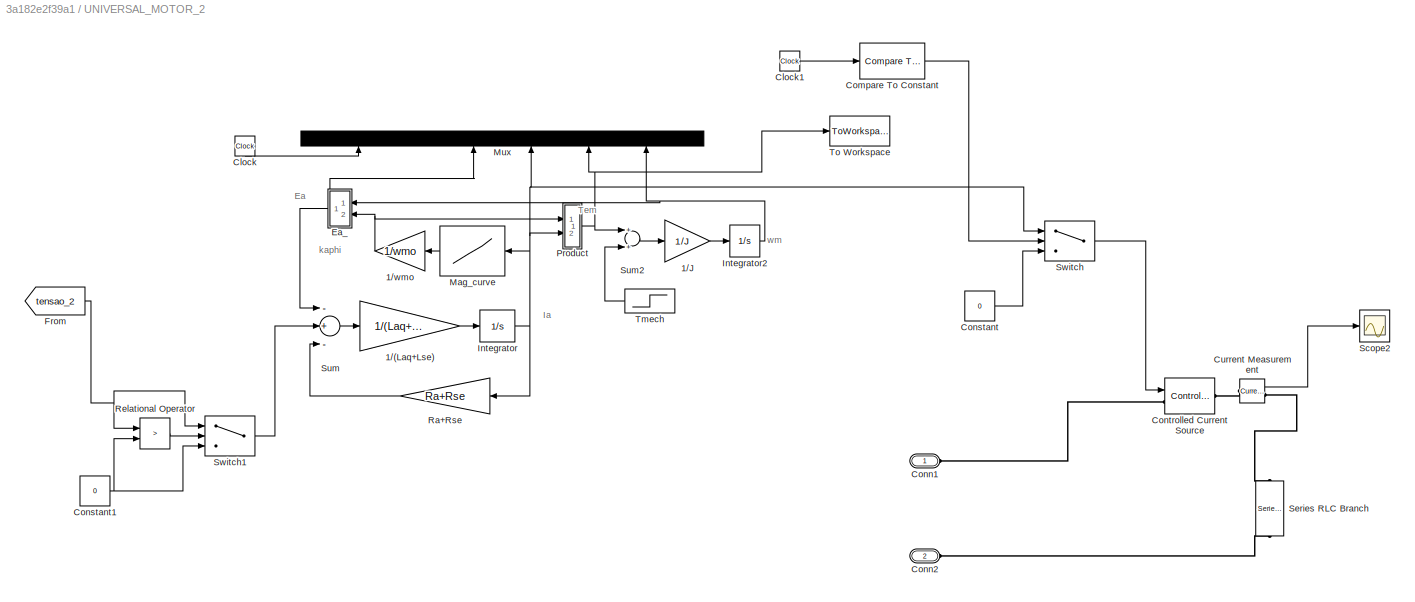
BLOCK [SubSystem] UNIVERSAL_MOTOR_2
  Commented = on
  Ports = [0, 0, 0, 0, 0, 2]
  RequestExecContextInheritance = off
BLOCK [Gain] UNIVERSAL_MOTOR_2/1//(Laq+Lse)
  Gain = 1/(Laq+Lse)
BLOCK [Gain] UNIVERSAL_MOTOR_2/1//J
  Gain = 1/J
BLOCK [Gain] UNIVERSAL_MOTOR_2/1//wmo
  Gain = 1/wmo
BLOCK [Clock] UNIVERSAL_MOTOR_2/Clock
BLOCK [Clock] UNIVERSAL_MOTOR_2/Clock1
BLOCK [Reference] UNIVERSAL_MOTOR_2/Compare To Constant  REF=simulink/Logic and Bit
Operations/Compare
To Constant
  Ports = [1, 1]
  SourceBlock = simulink/Logic and Bit\nOperations/Compare\nTo Constant
  SourceProductBaseCode = SL
  SourceProductName = Simulink
  SourceType = Compare To Constant
BLOCK [PMIOPort] UNIVERSAL_MOTOR_2/Conn1
  Side = Left
BLOCK [PMIOPort] UNIVERSAL_MOTOR_2/Conn2
  Port = 2
  Side = Left
BLOCK [Constant] UNIVERSAL_MOTOR_2/Constant
  Value = 0
BLOCK [Constant] UNIVERSAL_MOTOR_2/Constant1
  Value = 0
BLOCK [Reference] UNIVERSAL_MOTOR_2/Controlled Current Source  REF=powerlib/Electrical
Sources/Controlled Current Source
  Ports = [1, 0, 0, 0, 0, 1, 1]
  SourceBlock = powerlib/Electrical\nSources/Controlled Current Source
  SourceProductBaseCode = PS
  SourceProductName = Simscape Electrical
  SourceType = Controlled Current Source
BLOCK [Reference] UNIVERSAL_MOTOR_2/Current Measurement  REF=powerlib/Measurements/Current Measurement
  Ports = [0, 1, 0, 0, 0, 1, 1]
  SourceBlock = powerlib/Measurements/Current Measurement
  SourceProductBaseCode = PS
  SourceProductName = Simscape Electrical
  SourceType = Current Measurement
  UserDataPersistent = on
BLOCK [SubSystem] UNIVERSAL_MOTOR_2/Ea_
  Ports = [2, 1]
  RequestExecContextInheritance = off
  ShowPortLabels = none
BLOCK [Product] UNIVERSAL_MOTOR_2/Ea_/Product
  Ports = [2, 1]
BLOCK [Sum] UNIVERSAL_MOTOR_2/Ea_/Sum
  Inputs = +
  Ports = [1, 1]
BLOCK [Inport] UNIVERSAL_MOTOR_2/Ea_/in_1
  IconDisplay = Port number
BLOCK [Inport] UNIVERSAL_MOTOR_2/Ea_/in_2
  IconDisplay = Port number
  Port = 2
BLOCK [Outport] UNIVERSAL_MOTOR_2/Ea_/out_1
  IconDisplay = Port number
  InitialOutput = 0
BLOCK [From] UNIVERSAL_MOTOR_2/From
  GotoTag = tensao_2
  TagVisibility = global
BLOCK [Integrator] UNIVERSAL_MOTOR_2/Integrator
  Ports = [1, 1]
BLOCK [Integrator] UNIVERSAL_MOTOR_2/Integrator2
  InitialCondition = wm0
  Ports = [1, 1]
BLOCK [Lookup] UNIVERSAL_MOTOR_2/Mag_curve
  InputValues = SEIP4
  Table = SEVP4
BLOCK [Mux] UNIVERSAL_MOTOR_2/Mux
  Inputs = 6
  Ports = [6, 1]
BLOCK [SubSystem] UNIVERSAL_MOTOR_2/Product
  Ports = [2, 1]
  RequestExecContextInheritance = off
  ShowPortLabels = none
BLOCK [Product] UNIVERSAL_MOTOR_2/Product/Product
  Ports = [2, 1]
BLOCK [Sum] UNIVERSAL_MOTOR_2/Product/Sum
  Inputs = +
  Ports = [1, 1]
BLOCK [Inport] UNIVERSAL_MOTOR_2/Product/in_1
  IconDisplay = Port number
BLOCK [Inport] UNIVERSAL_MOTOR_2/Product/in_2
  IconDisplay = Port number
  Port = 2
BLOCK [Outport] UNIVERSAL_MOTOR_2/Product/out_1
  IconDisplay = Port number
  InitialOutput = 0
BLOCK [Gain] UNIVERSAL_MOTOR_2/Ra+Rse
  Gain = Ra+Rse
BLOCK [RelationalOperator] UNIVERSAL_MOTOR_2/Relational Operator
  InputSameDT = off
  Operator = >
  OutDataTypeStr = boolean
  Ports = [2, 1]
  RndMeth = Simplest
BLOCK [Scope] UNIVERSAL_MOTOR_2/Scope2
  Floating = off
  NumInputPorts = 1
  Ports = [1]
BLOCK [Reference] UNIVERSAL_MOTOR_2/Series RLC Branch  REF=powerlib/Elements/Series RLC Branch
  Ports = [0, 0, 0, 0, 0, 1, 1]
  SourceBlock = powerlib/Elements/Series RLC Branch
  SourceProductBaseCode = PS
  SourceProductName = Simscape Electrical
  SourceType = Series RLC Branch
BLOCK [Sum] UNIVERSAL_MOTOR_2/Sum
  Inputs = -+-
  Ports = [3, 1]
BLOCK [Sum] UNIVERSAL_MOTOR_2/Sum2
  Ports = [2, 1]
BLOCK [Switch] UNIVERSAL_MOTOR_2/Switch
  InputSameDT = off
  SaturateOnIntegerOverflow = off
BLOCK [Switch] UNIVERSAL_MOTOR_2/Switch1
  Criteria = u2 > Threshold
  InputSameDT = off
  SaturateOnIntegerOverflow = off
BLOCK [Step] UNIVERSAL_MOTOR_2/Tmech
  Before = -0.8
  Time = 0
BLOCK [ToWorkspace] UNIVERSAL_MOTOR_2/To Workspace
  FixptAsFi = on
  MaxDataPoints = inf
  Ports = [1]
  SampleTime = -1
  SaveFormat = Timeseries
  VariableName = torque_2
BLOCK [SubSystem] UNIVERSAL_MOTOR_3
  Commented = on
  Ports = [0, 0, 0, 0, 0, 2]
  RequestExecContextInheritance = off
BLOCK [Gain] UNIVERSAL_MOTOR_3/1//(Laq+Lse)
  Gain = 1/(Laq+Lse)
BLOCK [Gain] UNIVERSAL_MOTOR_3/1//J
  Gain = 1/J
BLOCK [Gain] UNIVERSAL_MOTOR_3/1//wmo
  Gain = 1/wmo
BLOCK [Clock] UNIVERSAL_MOTOR_3/Clock1
BLOCK [Reference] UNIVERSAL_MOTOR_3/Compare To Constant  REF=simulink/Logic and Bit
Operations/Compare
To Constant
  Ports = [1, 1]
  SourceBlock = simulink/Logic and Bit\nOperations/Compare\nTo Constant
  SourceProductBaseCode = SL
  SourceProductName = Simulink
  SourceType = Compare To Constant
BLOCK [PMIOPort] UNIVERSAL_MOTOR_3/Conn1
  Side = Left
BLOCK [PMIOPort] UNIVERSAL_MOTOR_3/Conn2
  Port = 2
  Side = Left
BLOCK [Constant] UNIVERSAL_MOTOR_3/Constant
  Value = 0
BLOCK [Constant] UNIVERSAL_MOTOR_3/Constant1
  Value = 0
BLOCK [Reference] UNIVERSAL_MOTOR_3/Controlled Current Source  REF=powerlib/Electrical
Sources/Controlled Current Source
  Ports = [1, 0, 0, 0, 0, 1, 1]
  SourceBlock = powerlib/Electrical\nSources/Controlled Current Source
  SourceProductBaseCode = PS
  SourceProductName = Simscape Electrical
  SourceType = Controlled Current Source
BLOCK [Reference] UNIVERSAL_MOTOR_3/Current Measurement  REF=powerlib/Measurements/Current Measurement
  Ports = [0, 1, 0, 0, 0, 1, 1]
  SourceBlock = powerlib/Measurements/Current Measurement
  SourceProductBaseCode = PS
  SourceProductName = Simscape Electrical
  SourceType = Current Measurement
  UserDataPersistent = on
BLOCK [SubSystem] UNIVERSAL_MOTOR_3/Ea_
  Ports = [2, 1]
  RequestExecContextInheritance = off
  ShowPortLabels = none
BLOCK [Product] UNIVERSAL_MOTOR_3/Ea_/Product
  Ports = [2, 1]
BLOCK [Sum] UNIVERSAL_MOTOR_3/Ea_/Sum
  Inputs = +
  Ports = [1, 1]
BLOCK [Inport] UNIVERSAL_MOTOR_3/Ea_/in_1
  IconDisplay = Port number
BLOCK [Inport] UNIVERSAL_MOTOR_3/Ea_/in_2
  IconDisplay = Port number
  Port = 2
BLOCK [Outport] UNIVERSAL_MOTOR_3/Ea_/out_1
  IconDisplay = Port number
  InitialOutput = 0
BLOCK [From] UNIVERSAL_MOTOR_3/From
  GotoTag = tensao_3
  TagVisibility = global
BLOCK [Integrator] UNIVERSAL_MOTOR_3/Integrator
  Ports = [1, 1]
BLOCK [Integrator] UNIVERSAL_MOTOR_3/Integrator2
  InitialCondition = wm0
  Ports = [1, 1]
BLOCK [Lookup] UNIVERSAL_MOTOR_3/Mag_curve
  InputValues = SEIP4
  Table = SEVP4
BLOCK [SubSystem] UNIVERSAL_MOTOR_3/Product
  Ports = [2, 1]
  RequestExecContextInheritance = off
  ShowPortLabels = none
BLOCK [Product] UNIVERSAL_MOTOR_3/Product/Product
  Ports = [2, 1]
BLOCK [Sum] UNIVERSAL_MOTOR_3/Product/Sum
  Inputs = +
  Ports = [1, 1]
BLOCK [Inport] UNIVERSAL_MOTOR_3/Product/in_1
  IconDisplay = Port number
BLOCK [Inport] UNIVERSAL_MOTOR_3/Product/in_2
  IconDisplay = Port number
  Port = 2
BLOCK [Outport] UNIVERSAL_MOTOR_3/Product/out_1
  IconDisplay = Port number
  InitialOutput = 0
BLOCK [Gain] UNIVERSAL_MOTOR_3/Ra+Rse
  Gain = Ra+Rse
BLOCK [RelationalOperator] UNIVERSAL_MOTOR_3/Relational Operator
  InputSameDT = off
  Operator = >
  OutDataTypeStr = boolean
  Ports = [2, 1]
  RndMeth = Simplest
BLOCK [Scope] UNIVERSAL_MOTOR_3/Scope2
  Floating = off
  NumInputPorts = 1
  Ports = [1]
  ScopeSpecificationString = Simulink.scopes.TimeScopeBlockCfg('CurrentConfiguration', extmgr.ConfigurationSet(extmgr.Configuration('Core','General UI',true),extmgr.Configuration('Core','Source UI',true),extmgr.Configuration('Sources','WiredSimulink',true,'DataLoggingVariableName','ScopeData3'),extmgr.Configuration('Visuals','Time Domain',true,'SerializedDisplays',{struct('MinYLimReal','-24.42972','MaxYLimReal','36.1617','YLa...<+1451ch>
BLOCK [Reference] UNIVERSAL_MOTOR_3/Series RLC Branch  REF=powerlib/Elements/Series RLC Branch
  Ports = [0, 0, 0, 0, 0, 1, 1]
  SourceBlock = powerlib/Elements/Series RLC Branch
  SourceProductBaseCode = PS
  SourceProductName = Simscape Electrical
  SourceType = Series RLC Branch
BLOCK [Sum] UNIVERSAL_MOTOR_3/Sum
  Inputs = -+-
  Ports = [3, 1]
BLOCK [Sum] UNIVERSAL_MOTOR_3/Sum2
  Ports = [2, 1]
BLOCK [Switch] UNIVERSAL_MOTOR_3/Switch
  InputSameDT = off
  SaturateOnIntegerOverflow = off
BLOCK [Switch] UNIVERSAL_MOTOR_3/Switch1
  Criteria = u2 > Threshold
  InputSameDT = off
  SaturateOnIntegerOverflow = off
BLOCK [Step] UNIVERSAL_MOTOR_3/Tmech
  After = -0.1
  Before = -0.8
  Time = 0
BLOCK [ToWorkspace] UNIVERSAL_MOTOR_3/To Workspace
  FixptAsFi = on
  MaxDataPoints = inf
  Ports = [1]
  SampleTime = -1
  VariableName = corrente_motor_3
BLOCK [ToWorkspace] UNIVERSAL_MOTOR_3/To Workspace1
  FixptAsFi = on
  MaxDataPoints = inf
  Ports = [1]
  SampleTime = -1
  SaveFormat = Timeseries
  VariableName = torque_3
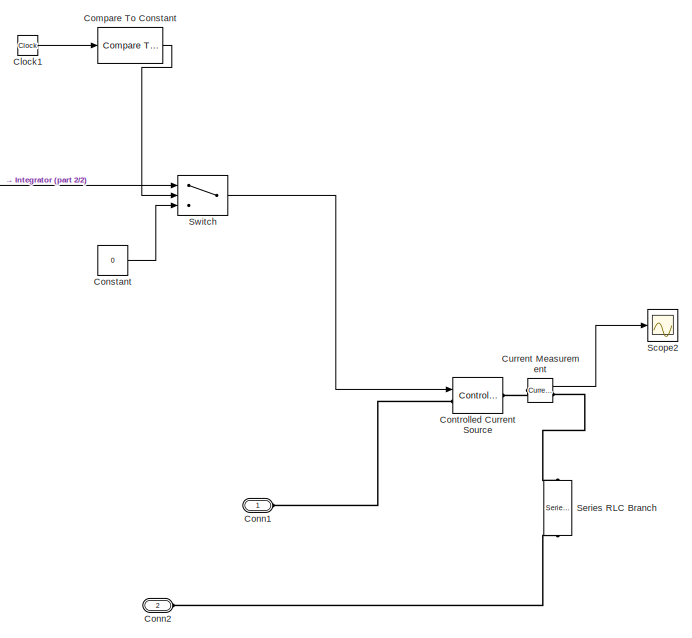
[diagram: UNIVERSAL_MOTOR_4 - part 1/2, right side, full height]
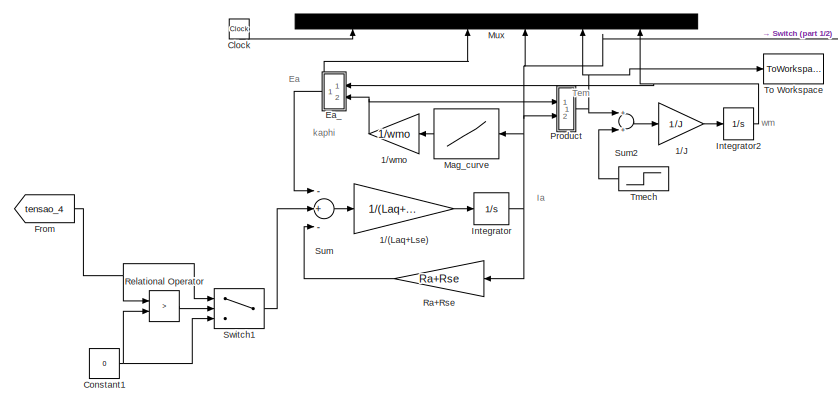
[diagram: UNIVERSAL_MOTOR_4 - part 2/2, middle left region]
BLOCK [SubSystem] UNIVERSAL_MOTOR_4
  Commented = on
  Ports = [0, 0, 0, 0, 0, 2]
  RequestExecContextInheritance = off
BLOCK [Gain] UNIVERSAL_MOTOR_4/1//(Laq+Lse)
  Gain = 1/(Laq+Lse)
BLOCK [Gain] UNIVERSAL_MOTOR_4/1//J
  Gain = 1/J
BLOCK [Gain] UNIVERSAL_MOTOR_4/1//wmo
  Gain = 1/wmo
BLOCK [Clock] UNIVERSAL_MOTOR_4/Clock
BLOCK [Clock] UNIVERSAL_MOTOR_4/Clock1
BLOCK [Reference] UNIVERSAL_MOTOR_4/Compare To Constant  REF=simulink/Logic and Bit
Operations/Compare
To Constant
  Ports = [1, 1]
  SourceBlock = simulink/Logic and Bit\nOperations/Compare\nTo Constant
  SourceProductBaseCode = SL
  SourceProductName = Simulink
  SourceType = Compare To Constant
BLOCK [PMIOPort] UNIVERSAL_MOTOR_4/Conn1
  Side = Left
BLOCK [PMIOPort] UNIVERSAL_MOTOR_4/Conn2
  Port = 2
  Side = Left
BLOCK [Constant] UNIVERSAL_MOTOR_4/Constant
  Value = 0
BLOCK [Constant] UNIVERSAL_MOTOR_4/Constant1
  Value = 0
BLOCK [Reference] UNIVERSAL_MOTOR_4/Controlled Current Source  REF=powerlib/Electrical
Sources/Controlled Current Source
  Ports = [1, 0, 0, 0, 0, 1, 1]
  SourceBlock = powerlib/Electrical\nSources/Controlled Current Source
  SourceProductBaseCode = PS
  SourceProductName = Simscape Electrical
  SourceType = Controlled Current Source
BLOCK [Reference] UNIVERSAL_MOTOR_4/Current Measurement  REF=powerlib/Measurements/Current Measurement
  Ports = [0, 1, 0, 0, 0, 1, 1]
  SourceBlock = powerlib/Measurements/Current Measurement
  SourceProductBaseCode = PS
  SourceProductName = Simscape Electrical
  SourceType = Current Measurement
  UserDataPersistent = on
BLOCK [SubSystem] UNIVERSAL_MOTOR_4/Ea_
  Ports = [2, 1]
  RequestExecContextInheritance = off
  ShowPortLabels = none
BLOCK [Product] UNIVERSAL_MOTOR_4/Ea_/Product
  Ports = [2, 1]
BLOCK [Sum] UNIVERSAL_MOTOR_4/Ea_/Sum
  Inputs = +
  Ports = [1, 1]
BLOCK [Inport] UNIVERSAL_MOTOR_4/Ea_/in_1
  IconDisplay = Port number
BLOCK [Inport] UNIVERSAL_MOTOR_4/Ea_/in_2
  IconDisplay = Port number
  Port = 2
BLOCK [Outport] UNIVERSAL_MOTOR_4/Ea_/out_1
  IconDisplay = Port number
  InitialOutput = 0
BLOCK [From] UNIVERSAL_MOTOR_4/From
  GotoTag = tensao_4
  TagVisibility = global
BLOCK [Integrator] UNIVERSAL_MOTOR_4/Integrator
  Ports = [1, 1]
BLOCK [Integrator] UNIVERSAL_MOTOR_4/Integrator2
  InitialCondition = wm0
  Ports = [1, 1]
BLOCK [Lookup] UNIVERSAL_MOTOR_4/Mag_curve
  InputValues = SEIP4
  Table = SEVP4
BLOCK [Mux] UNIVERSAL_MOTOR_4/Mux
  Inputs = 6
  Ports = [6, 1]
BLOCK [SubSystem] UNIVERSAL_MOTOR_4/Product
  Ports = [2, 1]
  RequestExecContextInheritance = off
  ShowPortLabels = none
BLOCK [Product] UNIVERSAL_MOTOR_4/Product/Product
  Ports = [2, 1]
BLOCK [Sum] UNIVERSAL_MOTOR_4/Product/Sum
  Inputs = +
  Ports = [1, 1]
BLOCK [Inport] UNIVERSAL_MOTOR_4/Product/in_1
  IconDisplay = Port number
BLOCK [Inport] UNIVERSAL_MOTOR_4/Product/in_2
  IconDisplay = Port number
  Port = 2
BLOCK [Outport] UNIVERSAL_MOTOR_4/Product/out_1
  IconDisplay = Port number
  InitialOutput = 0
BLOCK [Gain] UNIVERSAL_MOTOR_4/Ra+Rse
  Gain = Ra+Rse
BLOCK [RelationalOperator] UNIVERSAL_MOTOR_4/Relational Operator
  InputSameDT = off
  Operator = >
  OutDataTypeStr = boolean
  Ports = [2, 1]
  RndMeth = Simplest
BLOCK [Scope] UNIVERSAL_MOTOR_4/Scope2
  Floating = off
  NumInputPorts = 1
  Ports = [1]
BLOCK [Reference] UNIVERSAL_MOTOR_4/Series RLC Branch  REF=powerlib/Elements/Series RLC Branch
  Ports = [0, 0, 0, 0, 0, 1, 1]
  SourceBlock = powerlib/Elements/Series RLC Branch
  SourceProductBaseCode = PS
  SourceProductName = Simscape Electrical
  SourceType = Series RLC Branch
BLOCK [Sum] UNIVERSAL_MOTOR_4/Sum
  Inputs = -+-
  Ports = [3, 1]
BLOCK [Sum] UNIVERSAL_MOTOR_4/Sum2
  Ports = [2, 1]
BLOCK [Switch] UNIVERSAL_MOTOR_4/Switch
  InputSameDT = off
  SaturateOnIntegerOverflow = off
BLOCK [Switch] UNIVERSAL_MOTOR_4/Switch1
  Criteria = u2 > Threshold
  InputSameDT = off
  SaturateOnIntegerOverflow = off
BLOCK [Step] UNIVERSAL_MOTOR_4/Tmech
  After = 0.5
  Before = -0.8
  Time = 0
BLOCK [ToWorkspace] UNIVERSAL_MOTOR_4/To Workspace
  FixptAsFi = on
  MaxDataPoints = inf
  Ports = [1]
  SampleTime = -1
  SaveFormat = Timeseries
  VariableName = torque_4
BLOCK [Reference] Voltage Measurement  REF=powerlib/Measurements/Voltage Measurement
  Ports = [0, 1, 0, 0, 0, 2]
  SourceBlock = powerlib/Measurements/Voltage Measurement
  SourceProductBaseCode = PS
  SourceProductName = Simscape Electrical
  SourceType = Voltage Measurement
  UserDataPersistent = on
BLOCK [Reference] Voltage Measurement1  REF=powerlib/Measurements/Voltage Measurement
  Ports = [0, 1, 0, 0, 0, 2]
  SourceBlock = powerlib/Measurements/Voltage Measurement
  SourceProductBaseCode = PS
  SourceProductName = Simscape Electrical
  SourceType = Voltage Measurement
  UserDataPersistent = on
BLOCK [Reference] output Ground1  REF=powerlib/Elements/Ground
  AttributesFormatString = \n
  Ports = [0, 0, 0, 0, 0, 1]
  SourceBlock = powerlib/Elements/Ground
  SourceProductBaseCode = PS
  SourceProductName = Simscape Electrical
  SourceType = Ground
BLOCK [Reference] powergui  REF=powerlib/powergui
  Ports = []
  Priority = 1
  SourceBlock = powerlib/powergui
  SourceProductBaseCode = PS
  SourceProductName = Simscape Electrical
  SourceType = PSB option menu block
BLOCK [ToWorkspace] total_current
  FixptAsFi = on
  MaxDataPoints = inf
  Ports = [1]
  SampleTime = -1
  VariableName = total_current
BLOCK [ToWorkspace] total_voltage
  FixptAsFi = on
  MaxDataPoints = inf
  Ports = [1]
  SampleTime = -1
  VariableName = total_voltage
ANNOTATION DIODE_1: LOAD
ANNOTATION DIODE_2: LOAD
ANNOTATION DIODE_3: LOAD
ANNOTATION DIODE_4: LOAD
ANNOTATION RL_1: LOAD
ANNOTATION RL_2: LOAD
ANNOTATION RL_3: LOAD
ANNOTATION RL_4: LOAD
ANNOTATION R_1: LOAD
ANNOTATION R_2: LOAD
ANNOTATION R_3: LOAD
ANNOTATION R_4: LOAD
ANNOTATION THYRISTOR_RL_1: LOAD
ANNOTATION THYRISTOR_RL_2: LOAD
ANNOTATION THYRISTOR_RL_3: LOAD
ANNOTATION THYRISTOR_RL_4: LOAD
ANNOTATION THYRISTOR_R_2: LOAD
ANNOTATION THYRISTOR_R_3: LOAD
ANNOTATION THYRISTOR_R_4: LOAD
ANNOTATION UNIVERSAL_MOTOR_1: Ea
ANNOTATION UNIVERSAL_MOTOR_1: Ia
ANNOTATION UNIVERSAL_MOTOR_1: Tem
ANNOTATION UNIVERSAL_MOTOR_1: kaphi
ANNOTATION UNIVERSAL_MOTOR_1: wm
ANNOTATION UNIVERSAL_MOTOR_2: Ea
ANNOTATION UNIVERSAL_MOTOR_2: Ia
ANNOTATION UNIVERSAL_MOTOR_2: Tem
ANNOTATION UNIVERSAL_MOTOR_2: kaphi
ANNOTATION UNIVERSAL_MOTOR_2: wm
ANNOTATION UNIVERSAL_MOTOR_3: Ea
ANNOTATION UNIVERSAL_MOTOR_3: Ia
ANNOTATION UNIVERSAL_MOTOR_3: Tem
ANNOTATION UNIVERSAL_MOTOR_3: kaphi
ANNOTATION UNIVERSAL_MOTOR_3: wm
ANNOTATION UNIVERSAL_MOTOR_4: Ea
ANNOTATION UNIVERSAL_MOTOR_4: Ia
ANNOTATION UNIVERSAL_MOTOR_4: Tem
ANNOTATION UNIVERSAL_MOTOR_4: kaphi
ANNOTATION UNIVERSAL_MOTOR_4: wm
NET Current Measurement:1 -> Scope:1, total_current:1
NET DIODE_1/V_Load:1 -> DIODE_1/Scope:1, DIODE_1/To Workspace4:1
NET DIODE_1/i_Load:1 -> DIODE_1/Scope1:1, DIODE_1/To Workspace1:1
NET DIODE_2/V_Load:1 -> DIODE_2/Scope:1, DIODE_2/To Workspace4:1
NET DIODE_2/i_Load:1 -> DIODE_2/Scope1:1, DIODE_2/To Workspace1:1
NET DIODE_3/V_Load:1 -> DIODE_3/Scope:1, DIODE_3/To Workspace4:1
NET DIODE_3/i_Load:1 -> DIODE_3/Scope1:1, DIODE_3/To Workspace1:1
NET DIODE_4/V_Load:1 -> DIODE_4/Scope:1, DIODE_4/To Workspace4:1
NET DIODE_4/i_Load:1 -> DIODE_4/Scope1:1, DIODE_4/To Workspace1:1
NET FULL_BRIDGE_1/V_Load:1 -> FULL_BRIDGE_1/Scope:1, FULL_BRIDGE_1/To Workspace4:1
NET FULL_BRIDGE_1/i_Load:1 -> FULL_BRIDGE_1/Scope1:1, FULL_BRIDGE_1/To Workspace1:1
NET FULL_BRIDGE_2/V_Load:1 -> FULL_BRIDGE_2/Scope:1, FULL_BRIDGE_2/To Workspace4:1
NET FULL_BRIDGE_2/i_Load:1 -> FULL_BRIDGE_2/Scope1:1, FULL_BRIDGE_2/To Workspace1:1
NET FULL_BRIDGE_3/V_Load:1 -> FULL_BRIDGE_3/Scope:1, FULL_BRIDGE_3/To Workspace4:1
NET FULL_BRIDGE_3/i_Load:1 -> FULL_BRIDGE_3/Scope1:1, FULL_BRIDGE_3/To Workspace1:1
NET FULL_BRIDGE_4/V_Load:1 -> FULL_BRIDGE_4/Scope:1, FULL_BRIDGE_4/To Workspace4:1
NET FULL_BRIDGE_4/i_Load:1 -> FULL_BRIDGE_4/Scope1:1, FULL_BRIDGE_4/To Workspace1:1
LINE ON_OFF_1/Clock1:1 -> ON_OFF_1/Compare To Constant:1
LINE ON_OFF_1/Clock2:1 -> ON_OFF_1/Compare To Constant1:1
LINE ON_OFF_1/Clock3:1 -> ON_OFF_1/Compare To Constant2:1
LINE ON_OFF_1/Compare To Constant1:1 -> ON_OFF_1/Switch1:2
LINE ON_OFF_1/Compare To Constant2:1 -> ON_OFF_1/Ideal Switch:1
LINE ON_OFF_1/Compare To Constant:1 -> ON_OFF_1/Switch:2
LINE ON_OFF_1/Constant1:1 -> ON_OFF_1/Switch1:1
LINE ON_OFF_1/Constant:1 -> ON_OFF_1/Switch:3
LINE ON_OFF_1/From:1 -> ON_OFF_1/Switch:1
LINE ON_OFF_1/Switch1:1 -> ON_OFF_1/Goto:1
LINE ON_OFF_1/Switch:1 -> ON_OFF_1/Switch1:3
NET ON_OFF_10/Clock4:1 -> ON_OFF_10/Compare To Constant2:1, ON_OFF_10/Compare To Constat3:1
LINE ON_OFF_10/Compare To Constant2:1 -> ON_OFF_10/ON2:1
LINE ON_OFF_10/Compare To Constat3:1 -> ON_OFF_10/OFF2:1
NET ON_OFF_11/Clock4:1 -> ON_OFF_11/Compare To Constant2:1, ON_OFF_11/Compare To Constat3:1
LINE ON_OFF_11/Compare To Constant2:1 -> ON_OFF_11/ON2:1
LINE ON_OFF_11/Compare To Constat3:1 -> ON_OFF_11/OFF2:1
NET ON_OFF_12/Clock4:1 -> ON_OFF_12/Compare To Constant2:1, ON_OFF_12/Compare To Constat3:1
LINE ON_OFF_12/Compare To Constant2:1 -> ON_OFF_12/ON2:1
LINE ON_OFF_12/Compare To Constat3:1 -> ON_OFF_12/OFF2:1
NET ON_OFF_13/Clock6:1 -> ON_OFF_13/Compare To Constant3:1, ON_OFF_13/Compare To Constat4:1
LINE ON_OFF_13/Compare To Constant3:1 -> ON_OFF_13/ON3:1
LINE ON_OFF_13/Compare To Constat4:1 -> ON_OFF_13/OFF3:1
NET ON_OFF_14/Clock6:1 -> ON_OFF_14/Compare To Constant3:1, ON_OFF_14/Compare To Constat4:1
LINE ON_OFF_14/Compare To Constant3:1 -> ON_OFF_14/ON3:1
LINE ON_OFF_14/Compare To Constat4:1 -> ON_OFF_14/OFF3:1
NET ON_OFF_15/Clock6:1 -> ON_OFF_15/Compare To Constant3:1, ON_OFF_15/Compare To Constat4:1
LINE ON_OFF_15/Compare To Constant3:1 -> ON_OFF_15/ON3:1
LINE ON_OFF_15/Compare To Constat4:1 -> ON_OFF_15/OFF3:1
NET ON_OFF_16/Clock6:1 -> ON_OFF_16/Compare To Constant3:1, ON_OFF_16/Compare To Constat4:1
LINE ON_OFF_16/Compare To Constant3:1 -> ON_OFF_16/ON3:1
LINE ON_OFF_16/Compare To Constat4:1 -> ON_OFF_16/OFF3:1
NET ON_OFF_17/Clock7:1 -> ON_OFF_17/Compare To Constant4:1, ON_OFF_17/Compare To Constat5:1
LINE ON_OFF_17/Compare To Constant4:1 -> ON_OFF_17/ON4:1
LINE ON_OFF_17/Compare To Constat5:1 -> ON_OFF_17/OFF4:1
NET ON_OFF_18/Clock7:1 -> ON_OFF_18/Compare To Constant4:1, ON_OFF_18/Compare To Constat5:1
LINE ON_OFF_18/Compare To Constant4:1 -> ON_OFF_18/ON4:1
LINE ON_OFF_18/Compare To Constat5:1 -> ON_OFF_18/OFF4:1
NET ON_OFF_19/Clock7:1 -> ON_OFF_19/Compare To Constant4:1, ON_OFF_19/Compare To Constat5:1
LINE ON_OFF_19/Compare To Constant4:1 -> ON_OFF_19/ON4:1
LINE ON_OFF_19/Compare To Constat5:1 -> ON_OFF_19/OFF4:1
LINE ON_OFF_2/Clock1:1 -> ON_OFF_2/Compare To Constant:1
LINE ON_OFF_2/Clock2:1 -> ON_OFF_2/Compare To Constant1:1
LINE ON_OFF_2/Clock3:1 -> ON_OFF_2/Compare To Constant2:1
LINE ON_OFF_2/Compare To Constant1:1 -> ON_OFF_2/Switch1:2
LINE ON_OFF_2/Compare To Constant2:1 -> ON_OFF_2/Ideal Switch:1
LINE ON_OFF_2/Compare To Constant:1 -> ON_OFF_2/Switch:2
LINE ON_OFF_2/Constant1:1 -> ON_OFF_2/Switch1:1
LINE ON_OFF_2/Constant:1 -> ON_OFF_2/Switch:3
LINE ON_OFF_2/From:1 -> ON_OFF_2/Switch:1
LINE ON_OFF_2/Switch1:1 -> ON_OFF_2/Goto:1
LINE ON_OFF_2/Switch:1 -> ON_OFF_2/Switch1:3
NET ON_OFF_20/Clock7:1 -> ON_OFF_20/Compare To Constant4:1, ON_OFF_20/Compare To Constat5:1
LINE ON_OFF_20/Compare To Constant4:1 -> ON_OFF_20/ON4:1
LINE ON_OFF_20/Compare To Constat5:1 -> ON_OFF_20/OFF4:1
NET ON_OFF_21/Clock8:1 -> ON_OFF_21/Compare To Constant5:1, ON_OFF_21/Compare To Constat6:1
LINE ON_OFF_21/Compare To Constant5:1 -> ON_OFF_21/ON5:1
LINE ON_OFF_21/Compare To Constat6:1 -> ON_OFF_21/OFF5:1
NET ON_OFF_22/Clock8:1 -> ON_OFF_22/Compare To Constant5:1, ON_OFF_22/Compare To Constat6:1
LINE ON_OFF_22/Compare To Constant5:1 -> ON_OFF_22/ON5:1
LINE ON_OFF_22/Compare To Constat6:1 -> ON_OFF_22/OFF5:1
NET ON_OFF_23/Clock8:1 -> ON_OFF_23/Compare To Constant5:1, ON_OFF_23/Compare To Constat6:1
LINE ON_OFF_23/Compare To Constant5:1 -> ON_OFF_23/ON5:1
LINE ON_OFF_23/Compare To Constat6:1 -> ON_OFF_23/OFF5:1
NET ON_OFF_24/Clock8:1 -> ON_OFF_24/Compare To Constant5:1, ON_OFF_24/Compare To Constat6:1
LINE ON_OFF_24/Compare To Constant5:1 -> ON_OFF_24/ON5:1
LINE ON_OFF_24/Compare To Constat6:1 -> ON_OFF_24/OFF5:1
NET ON_OFF_25/Clock8:1 -> ON_OFF_25/Compare To Constant5:1, ON_OFF_25/Compare To Constat6:1
LINE ON_OFF_25/Compare To Constant5:1 -> ON_OFF_25/ON5:1
LINE ON_OFF_25/Compare To Constat6:1 -> ON_OFF_25/OFF5:1
NET ON_OFF_26/Clock8:1 -> ON_OFF_26/Compare To Constant5:1, ON_OFF_26/Compare To Constat6:1
LINE ON_OFF_26/Compare To Constant5:1 -> ON_OFF_26/ON5:1
LINE ON_OFF_26/Compare To Constat6:1 -> ON_OFF_26/OFF5:1
NET ON_OFF_27/Clock8:1 -> ON_OFF_27/Compare To Constant5:1, ON_OFF_27/Compare To Constat6:1
LINE ON_OFF_27/Compare To Constant5:1 -> ON_OFF_27/ON5:1
LINE ON_OFF_27/Compare To Constat6:1 -> ON_OFF_27/OFF5:1
NET ON_OFF_28/Clock8:1 -> ON_OFF_28/Compare To Constant5:1, ON_OFF_28/Compare To Constat6:1
LINE ON_OFF_28/Compare To Constant5:1 -> ON_OFF_28/ON5:1
LINE ON_OFF_28/Compare To Constat6:1 -> ON_OFF_28/OFF5:1
LINE ON_OFF_3/Clock1:1 -> ON_OFF_3/Compare To Constant:1
LINE ON_OFF_3/Clock2:1 -> ON_OFF_3/Compare To Constant1:1
LINE ON_OFF_3/Clock3:1 -> ON_OFF_3/Compare To Constant2:1
LINE ON_OFF_3/Compare To Constant1:1 -> ON_OFF_3/Switch1:2
LINE ON_OFF_3/Compare To Constant2:1 -> ON_OFF_3/Ideal Switch:1
LINE ON_OFF_3/Compare To Constant:1 -> ON_OFF_3/Switch:2
LINE ON_OFF_3/Constant1:1 -> ON_OFF_3/Switch1:1
LINE ON_OFF_3/Constant:1 -> ON_OFF_3/Switch:3
LINE ON_OFF_3/From:1 -> ON_OFF_3/Switch:1
LINE ON_OFF_3/Switch1:1 -> ON_OFF_3/Goto:1
LINE ON_OFF_3/Switch:1 -> ON_OFF_3/Switch1:3
LINE ON_OFF_4/Clock1:1 -> ON_OFF_4/Compare To Constant:1
LINE ON_OFF_4/Clock2:1 -> ON_OFF_4/Compare To Constant1:1
LINE ON_OFF_4/Clock3:1 -> ON_OFF_4/Compare To Constant2:1
LINE ON_OFF_4/Compare To Constant1:1 -> ON_OFF_4/Switch1:2
LINE ON_OFF_4/Compare To Constant2:1 -> ON_OFF_4/Ideal Switch:1
LINE ON_OFF_4/Compare To Constant:1 -> ON_OFF_4/Switch:2
LINE ON_OFF_4/Constant1:1 -> ON_OFF_4/Switch1:1
LINE ON_OFF_4/Constant:1 -> ON_OFF_4/Switch:3
LINE ON_OFF_4/From:1 -> ON_OFF_4/Switch:1
LINE ON_OFF_4/Switch1:1 -> ON_OFF_4/Goto:1
LINE ON_OFF_4/Switch:1 -> ON_OFF_4/Switch1:3
NET ON_OFF_5/Clock1:1 -> ON_OFF_5/Compare To Constant1:1, ON_OFF_5/Compare To Constat1:1
LINE ON_OFF_5/Compare To Constant1:1 -> ON_OFF_5/ON1:1
LINE ON_OFF_5/Compare To Constat1:1 -> ON_OFF_5/OFF1:1
NET ON_OFF_6/Clock1:1 -> ON_OFF_6/Compare To Constant1:1, ON_OFF_6/Compare To Constat1:1
LINE ON_OFF_6/Compare To Constant1:1 -> ON_OFF_6/ON1:1
LINE ON_OFF_6/Compare To Constat1:1 -> ON_OFF_6/OFF1:1
NET ON_OFF_7/Clock1:1 -> ON_OFF_7/Compare To Constant1:1, ON_OFF_7/Compare To Constat1:1
LINE ON_OFF_7/Compare To Constant1:1 -> ON_OFF_7/ON1:1
LINE ON_OFF_7/Compare To Constat1:1 -> ON_OFF_7/OFF1:1
NET ON_OFF_8/Clock1:1 -> ON_OFF_8/Compare To Constant1:1, ON_OFF_8/Compare To Constat1:1
LINE ON_OFF_8/Compare To Constant1:1 -> ON_OFF_8/ON1:1
LINE ON_OFF_8/Compare To Constat1:1 -> ON_OFF_8/OFF1:1
NET ON_OFF_9/Clock4:1 -> ON_OFF_9/Compare To Constant2:1, ON_OFF_9/Compare To Constat3:1
LINE ON_OFF_9/Compare To Constant2:1 -> ON_OFF_9/ON2:1
LINE ON_OFF_9/Compare To Constat3:1 -> ON_OFF_9/OFF2:1
NET RL_1/V_Load:1 -> RL_1/Scope:1, RL_1/To Workspace4:1
NET RL_1/i_Load:1 -> RL_1/Scope1:1, RL_1/To Workspace1:1
NET RL_2/V_Load:1 -> RL_2/Scope:1, RL_2/To Workspace4:1
NET RL_2/i_Load:1 -> RL_2/Scope1:1, RL_2/To Workspace1:1
NET RL_3/V_Load:1 -> RL_3/Scope:1, RL_3/To Workspace4:1
NET RL_3/i_Load:1 -> RL_3/Scope1:1, RL_3/To Workspace1:1
NET RL_4/V_Load:1 -> RL_4/Scope:1, RL_4/To Workspace4:1
NET RL_4/i_Load:1 -> RL_4/Scope1:1, RL_4/To Workspace1:1
NET R_1/V_Load:1 -> R_1/Scope:1, R_1/To Workspace4:1
NET R_1/i_Load:1 -> R_1/Scope1:1, R_1/To Workspace1:1
NET R_2/V_Load:1 -> R_2/Scope:1, R_2/To Workspace4:1
NET R_2/i_Load:1 -> R_2/Scope1:1, R_2/To Workspace1:1
NET R_3/V_Load:1 -> R_3/Scope:1, R_3/To Workspace4:1
NET R_3/i_Load:1 -> R_3/Scope1:1, R_3/To Workspace1:1
NET R_4/V_Load:1 -> R_4/Scope:1, R_4/To Workspace4:1
NET R_4/i_Load:1 -> R_4/Scope1:1, R_4/To Workspace1:1
LINE THYRISTOR_RL_1/Constant1:1 -> THYRISTOR_RL_1/Relational Operator:2
LINE THYRISTOR_RL_1/Constant2:1 -> THYRISTOR_RL_1/Switch1:1
LINE THYRISTOR_RL_1/Constant3:1 -> THYRISTOR_RL_1/Switch1:3
LINE THYRISTOR_RL_1/Detect Rise Positive:1 -> THYRISTOR_RL_1/Switch1:2
LINE THYRISTOR_RL_1/Relational Operator:1 -> THYRISTOR_RL_1/Detect Rise Positive:1
LINE THYRISTOR_RL_1/Switch1:1 -> THYRISTOR_RL_1/Thyristor:1
LINE THYRISTOR_RL_1/V_Load1:1 -> THYRISTOR_RL_1/Relational Operator:1
NET THYRISTOR_RL_1/V_Load:1 -> THYRISTOR_RL_1/Scope:1, THYRISTOR_RL_1/To Workspace4:1
NET THYRISTOR_RL_1/i_Load:1 -> THYRISTOR_RL_1/Scope1:1, THYRISTOR_RL_1/To Workspace1:1
LINE THYRISTOR_RL_2/Constant1:1 -> THYRISTOR_RL_2/Relational Operator:2
LINE THYRISTOR_RL_2/Constant2:1 -> THYRISTOR_RL_2/Switch1:1
LINE THYRISTOR_RL_2/Constant3:1 -> THYRISTOR_RL_2/Switch1:3
LINE THYRISTOR_RL_2/Detect Rise Positive:1 -> THYRISTOR_RL_2/Switch1:2
LINE THYRISTOR_RL_2/Relational Operator:1 -> THYRISTOR_RL_2/Detect Rise Positive:1
LINE THYRISTOR_RL_2/Switch1:1 -> THYRISTOR_RL_2/Thyristor:1
LINE THYRISTOR_RL_2/V_Load1:1 -> THYRISTOR_RL_2/Relational Operator:1
NET THYRISTOR_RL_2/V_Load:1 -> THYRISTOR_RL_2/Scope:1, THYRISTOR_RL_2/To Workspace4:1
NET THYRISTOR_RL_2/i_Load:1 -> THYRISTOR_RL_2/Scope1:1, THYRISTOR_RL_2/To Workspace1:1
LINE THYRISTOR_RL_3/Constant1:1 -> THYRISTOR_RL_3/Relational Operator:2
LINE THYRISTOR_RL_3/Constant2:1 -> THYRISTOR_RL_3/Switch1:1
LINE THYRISTOR_RL_3/Constant3:1 -> THYRISTOR_RL_3/Switch1:3
LINE THYRISTOR_RL_3/Detect Rise Positive:1 -> THYRISTOR_RL_3/Switch1:2
LINE THYRISTOR_RL_3/Relational Operator:1 -> THYRISTOR_RL_3/Detect Rise Positive:1
LINE THYRISTOR_RL_3/Switch1:1 -> THYRISTOR_RL_3/Thyristor:1
LINE THYRISTOR_RL_3/V_Load1:1 -> THYRISTOR_RL_3/Relational Operator:1
NET THYRISTOR_RL_3/V_Load:1 -> THYRISTOR_RL_3/Scope:1, THYRISTOR_RL_3/To Workspace4:1
NET THYRISTOR_RL_3/i_Load:1 -> THYRISTOR_RL_3/Scope1:1, THYRISTOR_RL_3/To Workspace1:1
LINE THYRISTOR_RL_4/Constant1:1 -> THYRISTOR_RL_4/Relational Operator:2
LINE THYRISTOR_RL_4/Constant2:1 -> THYRISTOR_RL_4/Switch1:1
LINE THYRISTOR_RL_4/Constant3:1 -> THYRISTOR_RL_4/Switch1:3
LINE THYRISTOR_RL_4/Detect Rise Positive:1 -> THYRISTOR_RL_4/Switch1:2
LINE THYRISTOR_RL_4/Relational Operator:1 -> THYRISTOR_RL_4/Detect Rise Positive:1
LINE THYRISTOR_RL_4/Switch1:1 -> THYRISTOR_RL_4/Thyristor:1
LINE THYRISTOR_RL_4/V_Load1:1 -> THYRISTOR_RL_4/Relational Operator:1
NET THYRISTOR_RL_4/V_Load:1 -> THYRISTOR_RL_4/Scope:1, THYRISTOR_RL_4/To Workspace4:1
NET THYRISTOR_RL_4/i_Load:1 -> THYRISTOR_RL_4/Scope1:1, THYRISTOR_RL_4/To Workspace1:1
LINE THYRISTOR_R_1/Constant1:1 -> THYRISTOR_R_1/Relational Operator:2
LINE THYRISTOR_R_1/Constant2:1 -> THYRISTOR_R_1/Switch1:1
LINE THYRISTOR_R_1/Constant3:1 -> THYRISTOR_R_1/Switch1:3
LINE THYRISTOR_R_1/Detect Rise Positive:1 -> THYRISTOR_R_1/Switch1:2
LINE THYRISTOR_R_1/Relational Operator:1 -> THYRISTOR_R_1/Detect Rise Positive:1
LINE THYRISTOR_R_1/Switch1:1 -> THYRISTOR_R_1/Thyristor:1
LINE THYRISTOR_R_1/V_Load1:1 -> THYRISTOR_R_1/Relational Operator:1
NET THYRISTOR_R_1/V_Load:1 -> THYRISTOR_R_1/Scope:1, THYRISTOR_R_1/To Workspace4:1
NET THYRISTOR_R_1/i_Load:1 -> THYRISTOR_R_1/Scope1:1, THYRISTOR_R_1/To Workspace1:1
LINE THYRISTOR_R_2/Constant1:1 -> THYRISTOR_R_2/Relational Operator:2
LINE THYRISTOR_R_2/Constant2:1 -> THYRISTOR_R_2/Switch1:1
LINE THYRISTOR_R_2/Constant3:1 -> THYRISTOR_R_2/Switch1:3
LINE THYRISTOR_R_2/Detect Rise Positive:1 -> THYRISTOR_R_2/Switch1:2
LINE THYRISTOR_R_2/Relational Operator:1 -> THYRISTOR_R_2/Detect Rise Positive:1
LINE THYRISTOR_R_2/Switch1:1 -> THYRISTOR_R_2/Thyristor:1
LINE THYRISTOR_R_2/V_Load1:1 -> THYRISTOR_R_2/Relational Operator:1
NET THYRISTOR_R_2/V_Load:1 -> THYRISTOR_R_2/Scope:1, THYRISTOR_R_2/To Workspace4:1
NET THYRISTOR_R_2/i_Load:1 -> THYRISTOR_R_2/Scope1:1, THYRISTOR_R_2/To Workspace1:1
LINE THYRISTOR_R_3/Constant1:1 -> THYRISTOR_R_3/Relational Operator:2
LINE THYRISTOR_R_3/Constant2:1 -> THYRISTOR_R_3/Switch1:1
LINE THYRISTOR_R_3/Constant3:1 -> THYRISTOR_R_3/Switch1:3
LINE THYRISTOR_R_3/Detect Rise Positive:1 -> THYRISTOR_R_3/Switch1:2
LINE THYRISTOR_R_3/Relational Operator:1 -> THYRISTOR_R_3/Detect Rise Positive:1
LINE THYRISTOR_R_3/Switch1:1 -> THYRISTOR_R_3/Thyristor:1
LINE THYRISTOR_R_3/V_Load1:1 -> THYRISTOR_R_3/Relational Operator:1
NET THYRISTOR_R_3/V_Load:1 -> THYRISTOR_R_3/Scope:1, THYRISTOR_R_3/To Workspace4:1
NET THYRISTOR_R_3/i_Load:1 -> THYRISTOR_R_3/Scope1:1, THYRISTOR_R_3/To Workspace1:1
LINE THYRISTOR_R_4/Constant1:1 -> THYRISTOR_R_4/Relational Operator:2
LINE THYRISTOR_R_4/Constant2:1 -> THYRISTOR_R_4/Switch1:1
LINE THYRISTOR_R_4/Constant3:1 -> THYRISTOR_R_4/Switch1:3
LINE THYRISTOR_R_4/Detect Rise Positive:1 -> THYRISTOR_R_4/Switch1:2
LINE THYRISTOR_R_4/Relational Operator:1 -> THYRISTOR_R_4/Detect Rise Positive:1
LINE THYRISTOR_R_4/Switch1:1 -> THYRISTOR_R_4/Thyristor:1
LINE THYRISTOR_R_4/V_Load1:1 -> THYRISTOR_R_4/Relational Operator:1
NET THYRISTOR_R_4/V_Load:1 -> THYRISTOR_R_4/Scope:1, THYRISTOR_R_4/To Workspace4:1
NET THYRISTOR_R_4/i_Load:1 -> THYRISTOR_R_4/Scope1:1, THYRISTOR_R_4/To Workspace1:1
LINE UNIVERSAL_MOTOR_1/1//(Laq+Lse):1 -> UNIVERSAL_MOTOR_1/Integrator:1
LINE UNIVERSAL_MOTOR_1/1//J:1 -> UNIVERSAL_MOTOR_1/Integrator2:1
NET UNIVERSAL_MOTOR_1/1//wmo:1 -> UNIVERSAL_MOTOR_1/Ea_:2, UNIVERSAL_MOTOR_1/Product:1
LINE UNIVERSAL_MOTOR_1/Clock1:1 -> UNIVERSAL_MOTOR_1/Compare To Constant:1
LINE UNIVERSAL_MOTOR_1/Clock:1 -> UNIVERSAL_MOTOR_1/Mux:1
LINE UNIVERSAL_MOTOR_1/Compare To Constant:1 -> UNIVERSAL_MOTOR_1/Switch:2
NET UNIVERSAL_MOTOR_1/Constant1:1 -> UNIVERSAL_MOTOR_1/Relational Operator:2, UNIVERSAL_MOTOR_1/Switch1:3
LINE UNIVERSAL_MOTOR_1/Constant:1 -> UNIVERSAL_MOTOR_1/Switch:3
LINE UNIVERSAL_MOTOR_1/Current Measurement:1 -> UNIVERSAL_MOTOR_1/Scope2:1
LINE UNIVERSAL_MOTOR_1/Ea_/Product:1 -> UNIVERSAL_MOTOR_1/Ea_/Sum:1
LINE UNIVERSAL_MOTOR_1/Ea_/Sum:1 -> UNIVERSAL_MOTOR_1/Ea_/out_1:1
LINE UNIVERSAL_MOTOR_1/Ea_/in_1:1 -> UNIVERSAL_MOTOR_1/Ea_/Product:1
LINE UNIVERSAL_MOTOR_1/Ea_/in_2:1 -> UNIVERSAL_MOTOR_1/Ea_/Product:2
NET UNIVERSAL_MOTOR_1/Ea_:1 -> UNIVERSAL_MOTOR_1/Mux:3, UNIVERSAL_MOTOR_1/Sum:1
NET UNIVERSAL_MOTOR_1/From:1 -> UNIVERSAL_MOTOR_1/Relational Operator:1, UNIVERSAL_MOTOR_1/Switch1:1
NET UNIVERSAL_MOTOR_1/Integrator2:1 -> UNIVERSAL_MOTOR_1/Ea_:1, UNIVERSAL_MOTOR_1/Mux:6
NET UNIVERSAL_MOTOR_1/Integrator:1 -> UNIVERSAL_MOTOR_1/Mag_curve:1, UNIVERSAL_MOTOR_1/Mux:4, UNIVERSAL_MOTOR_1/Product:2, UNIVERSAL_MOTOR_1/Ra+Rse:1, UNIVERSAL_MOTOR_1/Switch:1
LINE UNIVERSAL_MOTOR_1/Mag_curve:1 -> UNIVERSAL_MOTOR_1/1//wmo:1
LINE UNIVERSAL_MOTOR_1/Product/Product:1 -> UNIVERSAL_MOTOR_1/Product/Sum:1
LINE UNIVERSAL_MOTOR_1/Product/Sum:1 -> UNIVERSAL_MOTOR_1/Product/out_1:1
LINE UNIVERSAL_MOTOR_1/Product/in_1:1 -> UNIVERSAL_MOTOR_1/Product/Product:1
LINE UNIVERSAL_MOTOR_1/Product/in_2:1 -> UNIVERSAL_MOTOR_1/Product/Product:2
NET UNIVERSAL_MOTOR_1/Product:1 -> UNIVERSAL_MOTOR_1/Mux:5, UNIVERSAL_MOTOR_1/Sum2:1
LINE UNIVERSAL_MOTOR_1/Ra+Rse:1 -> UNIVERSAL_MOTOR_1/Sum:3
LINE UNIVERSAL_MOTOR_1/Relational Operator:1 -> UNIVERSAL_MOTOR_1/Switch1:2
LINE UNIVERSAL_MOTOR_1/Sum2:1 -> UNIVERSAL_MOTOR_1/1//J:1
LINE UNIVERSAL_MOTOR_1/Sum:1 -> UNIVERSAL_MOTOR_1/1//(Laq+Lse):1
LINE UNIVERSAL_MOTOR_1/Switch1:1 -> UNIVERSAL_MOTOR_1/Sum:2
LINE UNIVERSAL_MOTOR_1/Switch:1 -> UNIVERSAL_MOTOR_1/Controlled Current Source:1
LINE UNIVERSAL_MOTOR_1/Tmech:1 -> UNIVERSAL_MOTOR_1/Sum2:2
LINE UNIVERSAL_MOTOR_2/1//(Laq+Lse):1 -> UNIVERSAL_MOTOR_2/Integrator:1
LINE UNIVERSAL_MOTOR_2/1//J:1 -> UNIVERSAL_MOTOR_2/Integrator2:1
NET UNIVERSAL_MOTOR_2/1//wmo:1 -> UNIVERSAL_MOTOR_2/Ea_:2, UNIVERSAL_MOTOR_2/Product:1
LINE UNIVERSAL_MOTOR_2/Clock1:1 -> UNIVERSAL_MOTOR_2/Compare To Constant:1
LINE UNIVERSAL_MOTOR_2/Clock:1 -> UNIVERSAL_MOTOR_2/Mux:1
LINE UNIVERSAL_MOTOR_2/Compare To Constant:1 -> UNIVERSAL_MOTOR_2/Switch:2
NET UNIVERSAL_MOTOR_2/Constant1:1 -> UNIVERSAL_MOTOR_2/Relational Operator:2, UNIVERSAL_MOTOR_2/Switch1:3
LINE UNIVERSAL_MOTOR_2/Constant:1 -> UNIVERSAL_MOTOR_2/Switch:3
LINE UNIVERSAL_MOTOR_2/Current Measurement:1 -> UNIVERSAL_MOTOR_2/Scope2:1
LINE UNIVERSAL_MOTOR_2/Ea_/Product:1 -> UNIVERSAL_MOTOR_2/Ea_/Sum:1
LINE UNIVERSAL_MOTOR_2/Ea_/Sum:1 -> UNIVERSAL_MOTOR_2/Ea_/out_1:1
LINE UNIVERSAL_MOTOR_2/Ea_/in_1:1 -> UNIVERSAL_MOTOR_2/Ea_/Product:1
LINE UNIVERSAL_MOTOR_2/Ea_/in_2:1 -> UNIVERSAL_MOTOR_2/Ea_/Product:2
NET UNIVERSAL_MOTOR_2/Ea_:1 -> UNIVERSAL_MOTOR_2/Mux:3, UNIVERSAL_MOTOR_2/Sum:1
NET UNIVERSAL_MOTOR_2/From:1 -> UNIVERSAL_MOTOR_2/Relational Operator:1, UNIVERSAL_MOTOR_2/Switch1:1
NET UNIVERSAL_MOTOR_2/Integrator2:1 -> UNIVERSAL_MOTOR_2/Ea_:1, UNIVERSAL_MOTOR_2/Mux:6
NET UNIVERSAL_MOTOR_2/Integrator:1 -> UNIVERSAL_MOTOR_2/Mag_curve:1, UNIVERSAL_MOTOR_2/Mux:4, UNIVERSAL_MOTOR_2/Product:2, UNIVERSAL_MOTOR_2/Ra+Rse:1, UNIVERSAL_MOTOR_2/Switch:1
LINE UNIVERSAL_MOTOR_2/Mag_curve:1 -> UNIVERSAL_MOTOR_2/1//wmo:1
LINE UNIVERSAL_MOTOR_2/Product/Product:1 -> UNIVERSAL_MOTOR_2/Product/Sum:1
LINE UNIVERSAL_MOTOR_2/Product/Sum:1 -> UNIVERSAL_MOTOR_2/Product/out_1:1
LINE UNIVERSAL_MOTOR_2/Product/in_1:1 -> UNIVERSAL_MOTOR_2/Product/Product:1
LINE UNIVERSAL_MOTOR_2/Product/in_2:1 -> UNIVERSAL_MOTOR_2/Product/Product:2
NET UNIVERSAL_MOTOR_2/Product:1 -> UNIVERSAL_MOTOR_2/Mux:5, UNIVERSAL_MOTOR_2/Sum2:1, UNIVERSAL_MOTOR_2/To Workspace:1
LINE UNIVERSAL_MOTOR_2/Ra+Rse:1 -> UNIVERSAL_MOTOR_2/Sum:3
LINE UNIVERSAL_MOTOR_2/Relational Operator:1 -> UNIVERSAL_MOTOR_2/Switch1:2
LINE UNIVERSAL_MOTOR_2/Sum2:1 -> UNIVERSAL_MOTOR_2/1//J:1
LINE UNIVERSAL_MOTOR_2/Sum:1 -> UNIVERSAL_MOTOR_2/1//(Laq+Lse):1
LINE UNIVERSAL_MOTOR_2/Switch1:1 -> UNIVERSAL_MOTOR_2/Sum:2
LINE UNIVERSAL_MOTOR_2/Switch:1 -> UNIVERSAL_MOTOR_2/Controlled Current Source:1
LINE UNIVERSAL_MOTOR_2/Tmech:1 -> UNIVERSAL_MOTOR_2/Sum2:2
LINE UNIVERSAL_MOTOR_3/1//(Laq+Lse):1 -> UNIVERSAL_MOTOR_3/Integrator:1
LINE UNIVERSAL_MOTOR_3/1//J:1 -> UNIVERSAL_MOTOR_3/Integrator2:1
NET UNIVERSAL_MOTOR_3/1//wmo:1 -> UNIVERSAL_MOTOR_3/Ea_:2, UNIVERSAL_MOTOR_3/Product:1
LINE UNIVERSAL_MOTOR_3/Clock1:1 -> UNIVERSAL_MOTOR_3/Compare To Constant:1
LINE UNIVERSAL_MOTOR_3/Compare To Constant:1 -> UNIVERSAL_MOTOR_3/Switch:2
NET UNIVERSAL_MOTOR_3/Constant1:1 -> UNIVERSAL_MOTOR_3/Relational Operator:2, UNIVERSAL_MOTOR_3/Switch1:3
LINE UNIVERSAL_MOTOR_3/Constant:1 -> UNIVERSAL_MOTOR_3/Switch:3
NET UNIVERSAL_MOTOR_3/Current Measurement:1 -> UNIVERSAL_MOTOR_3/Scope2:1, UNIVERSAL_MOTOR_3/To Workspace:1
LINE UNIVERSAL_MOTOR_3/Ea_/Product:1 -> UNIVERSAL_MOTOR_3/Ea_/Sum:1
LINE UNIVERSAL_MOTOR_3/Ea_/Sum:1 -> UNIVERSAL_MOTOR_3/Ea_/out_1:1
LINE UNIVERSAL_MOTOR_3/Ea_/in_1:1 -> UNIVERSAL_MOTOR_3/Ea_/Product:1
LINE UNIVERSAL_MOTOR_3/Ea_/in_2:1 -> UNIVERSAL_MOTOR_3/Ea_/Product:2
LINE UNIVERSAL_MOTOR_3/Ea_:1 -> UNIVERSAL_MOTOR_3/Sum:1
NET UNIVERSAL_MOTOR_3/From:1 -> UNIVERSAL_MOTOR_3/Relational Operator:1, UNIVERSAL_MOTOR_3/Switch1:1
LINE UNIVERSAL_MOTOR_3/Integrator2:1 -> UNIVERSAL_MOTOR_3/Ea_:1
NET UNIVERSAL_MOTOR_3/Integrator:1 -> UNIVERSAL_MOTOR_3/Mag_curve:1, UNIVERSAL_MOTOR_3/Product:2, UNIVERSAL_MOTOR_3/Ra+Rse:1, UNIVERSAL_MOTOR_3/Switch:1
LINE UNIVERSAL_MOTOR_3/Mag_curve:1 -> UNIVERSAL_MOTOR_3/1//wmo:1
LINE UNIVERSAL_MOTOR_3/Product/Product:1 -> UNIVERSAL_MOTOR_3/Product/Sum:1
LINE UNIVERSAL_MOTOR_3/Product/Sum:1 -> UNIVERSAL_MOTOR_3/Product/out_1:1
LINE UNIVERSAL_MOTOR_3/Product/in_1:1 -> UNIVERSAL_MOTOR_3/Product/Product:1
LINE UNIVERSAL_MOTOR_3/Product/in_2:1 -> UNIVERSAL_MOTOR_3/Product/Product:2
NET UNIVERSAL_MOTOR_3/Product:1 -> UNIVERSAL_MOTOR_3/Sum2:1, UNIVERSAL_MOTOR_3/To Workspace1:1
LINE UNIVERSAL_MOTOR_3/Ra+Rse:1 -> UNIVERSAL_MOTOR_3/Sum:3
LINE UNIVERSAL_MOTOR_3/Relational Operator:1 -> UNIVERSAL_MOTOR_3/Switch1:2
LINE UNIVERSAL_MOTOR_3/Sum2:1 -> UNIVERSAL_MOTOR_3/1//J:1
LINE UNIVERSAL_MOTOR_3/Sum:1 -> UNIVERSAL_MOTOR_3/1//(Laq+Lse):1
LINE UNIVERSAL_MOTOR_3/Switch1:1 -> UNIVERSAL_MOTOR_3/Sum:2
LINE UNIVERSAL_MOTOR_3/Switch:1 -> UNIVERSAL_MOTOR_3/Controlled Current Source:1
LINE UNIVERSAL_MOTOR_3/Tmech:1 -> UNIVERSAL_MOTOR_3/Sum2:2
LINE UNIVERSAL_MOTOR_4/1//(Laq+Lse):1 -> UNIVERSAL_MOTOR_4/Integrator:1
LINE UNIVERSAL_MOTOR_4/1//J:1 -> UNIVERSAL_MOTOR_4/Integrator2:1
NET UNIVERSAL_MOTOR_4/1//wmo:1 -> UNIVERSAL_MOTOR_4/Ea_:2, UNIVERSAL_MOTOR_4/Product:1
LINE UNIVERSAL_MOTOR_4/Clock1:1 -> UNIVERSAL_MOTOR_4/Compare To Constant:1
LINE UNIVERSAL_MOTOR_4/Clock:1 -> UNIVERSAL_MOTOR_4/Mux:1
LINE UNIVERSAL_MOTOR_4/Compare To Constant:1 -> UNIVERSAL_MOTOR_4/Switch:2
NET UNIVERSAL_MOTOR_4/Constant1:1 -> UNIVERSAL_MOTOR_4/Relational Operator:2, UNIVERSAL_MOTOR_4/Switch1:3
LINE UNIVERSAL_MOTOR_4/Constant:1 -> UNIVERSAL_MOTOR_4/Switch:3
LINE UNIVERSAL_MOTOR_4/Current Measurement:1 -> UNIVERSAL_MOTOR_4/Scope2:1
LINE UNIVERSAL_MOTOR_4/Ea_/Product:1 -> UNIVERSAL_MOTOR_4/Ea_/Sum:1
LINE UNIVERSAL_MOTOR_4/Ea_/Sum:1 -> UNIVERSAL_MOTOR_4/Ea_/out_1:1
LINE UNIVERSAL_MOTOR_4/Ea_/in_1:1 -> UNIVERSAL_MOTOR_4/Ea_/Product:1
LINE UNIVERSAL_MOTOR_4/Ea_/in_2:1 -> UNIVERSAL_MOTOR_4/Ea_/Product:2
NET UNIVERSAL_MOTOR_4/Ea_:1 -> UNIVERSAL_MOTOR_4/Mux:3, UNIVERSAL_MOTOR_4/Sum:1
NET UNIVERSAL_MOTOR_4/From:1 -> UNIVERSAL_MOTOR_4/Relational Operator:1, UNIVERSAL_MOTOR_4/Switch1:1
NET UNIVERSAL_MOTOR_4/Integrator2:1 -> UNIVERSAL_MOTOR_4/Ea_:1, UNIVERSAL_MOTOR_4/Mux:6
NET UNIVERSAL_MOTOR_4/Integrator:1 -> UNIVERSAL_MOTOR_4/Mag_curve:1, UNIVERSAL_MOTOR_4/Mux:4, UNIVERSAL_MOTOR_4/Product:2, UNIVERSAL_MOTOR_4/Ra+Rse:1, UNIVERSAL_MOTOR_4/Switch:1
LINE UNIVERSAL_MOTOR_4/Mag_curve:1 -> UNIVERSAL_MOTOR_4/1//wmo:1
LINE UNIVERSAL_MOTOR_4/Product/Product:1 -> UNIVERSAL_MOTOR_4/Product/Sum:1
LINE UNIVERSAL_MOTOR_4/Product/Sum:1 -> UNIVERSAL_MOTOR_4/Product/out_1:1
LINE UNIVERSAL_MOTOR_4/Product/in_1:1 -> UNIVERSAL_MOTOR_4/Product/Product:1
LINE UNIVERSAL_MOTOR_4/Product/in_2:1 -> UNIVERSAL_MOTOR_4/Product/Product:2
NET UNIVERSAL_MOTOR_4/Product:1 -> UNIVERSAL_MOTOR_4/Mux:5, UNIVERSAL_MOTOR_4/Sum2:1, UNIVERSAL_MOTOR_4/To Workspace:1
LINE UNIVERSAL_MOTOR_4/Ra+Rse:1 -> UNIVERSAL_MOTOR_4/Sum:3
LINE UNIVERSAL_MOTOR_4/Relational Operator:1 -> UNIVERSAL_MOTOR_4/Switch1:2
LINE UNIVERSAL_MOTOR_4/Sum2:1 -> UNIVERSAL_MOTOR_4/1//J:1
LINE UNIVERSAL_MOTOR_4/Sum:1 -> UNIVERSAL_MOTOR_4/1//(Laq+Lse):1
LINE UNIVERSAL_MOTOR_4/Switch1:1 -> UNIVERSAL_MOTOR_4/Sum:2
LINE UNIVERSAL_MOTOR_4/Switch:1 -> UNIVERSAL_MOTOR_4/Controlled Current Source:1
LINE UNIVERSAL_MOTOR_4/Tmech:1 -> UNIVERSAL_MOTOR_4/Sum2:2
NET Voltage Measurement1:1 -> Scope1:1, To Workspace:1
NET Voltage Measurement:1 -> Goto:1, total_voltage:1
PNET net1: AC Voltage Sour:LConn1 -- DIODE_1:LConn2 -- DIODE_2:LConn2 -- DIODE_3:LConn2 -- DIODE_4:LConn2 -- FULL_BRIDGE_1:LConn2 -- FULL_BRIDGE_2:LConn2 -- FULL_BRIDGE_3:LConn2 -- FULL_BRIDGE_4:LConn2 -- RL_1:LConn2 -- RL_2:LConn2 -- RL_3:LConn2 -- RL_4:LConn2 -- R_1:LConn2 -- R_2:LConn2 -- R_3:LConn2 -- R_4:LConn2 -- THYRISTOR_RL_1:LConn2 -- THYRISTOR_RL_2:LConn2 -- THYRISTOR_RL_3:LConn2 -- THYRISTOR_RL_4:LConn2 -- THYRISTOR_R_1:LConn2 -- THYRISTOR_R_2:LConn2 -- THYRISTOR_R_3:LConn2 -- THYRISTOR_R_4:LConn2 -- UNIVERSAL_MOTOR_1:LConn2 -- UNIVERSAL_MOTOR_2:LConn2 -- UNIVERSAL_MOTOR_3:LConn2 -- UNIVERSAL_MOTOR_4:LConn2 -- Voltage Measurement1:LConn2 -- Voltage Measurement:LConn2 -- output Ground1:LConn1
PNET net2: AC Voltage Sour:RConn1 -- Series RLC Branch1:LConn1 -- Series RLC Branch:LConn1
PNET net3: Current Measurement:LConn1 -- Series RLC Branch1:RConn1 -- Series RLC Branch:RConn1 -- Voltage Measurement1:LConn1 -- Voltage Measurement:LConn1
PNET net4: Current Measurement:RConn1 -- ON_OFF_10:LConn1 -- ON_OFF_11:LConn1 -- ON_OFF_12:LConn1 -- ON_OFF_13:LConn1 -- ON_OFF_14:LConn1 -- ON_OFF_15:LConn1 -- ON_OFF_16:LConn1 -- ON_OFF_17:LConn1 -- ON_OFF_18:LConn1 -- ON_OFF_19:LConn1 -- ON_OFF_1:LConn1 -- ON_OFF_20:LConn1 -- ON_OFF_21:LConn1 -- ON_OFF_22:LConn1 -- ON_OFF_23:LConn1 -- ON_OFF_24:LConn1 -- ON_OFF_25:LConn1 -- ON_OFF_26:LConn1 -- ON_OFF_27:LConn1 -- ON_OFF_28:LConn1 -- ON_OFF_2:LConn1 -- ON_OFF_3:LConn1 -- ON_OFF_4:LConn1 -- ON_OFF_5:LConn1 -- ON_OFF_6:LConn1 -- ON_OFF_7:LConn1 -- ON_OFF_8:LConn1 -- ON_OFF_9:LConn1
PLINE DIODE_1/Conn1:RConn1 -- DIODE_1/i_Load:LConn1
PNET net5: DIODE_1/Conn2:RConn1 -- DIODE_1/Ground2:LConn1 -- DIODE_1/Series RLC Branch:RConn1 -- DIODE_1/V_Load:LConn2
PLINE DIODE_1/Diode:LConn1 -- DIODE_1/i_Load:RConn1
PNET net6: DIODE_1/Diode:RConn1 -- DIODE_1/Series RLC Branch:LConn1 -- DIODE_1/V_Load:LConn1
PLINE DIODE_1:LConn1 -- ON_OFF_25:RConn1
PLINE DIODE_2/Conn1:RConn1 -- DIODE_2/i_Load:LConn1
PNET net7: DIODE_2/Conn2:RConn1 -- DIODE_2/Ground2:LConn1 -- DIODE_2/Series RLC Branch:RConn1 -- DIODE_2/V_Load:LConn2
PLINE DIODE_2/Diode:LConn1 -- DIODE_2/i_Load:RConn1
PNET net8: DIODE_2/Diode:RConn1 -- DIODE_2/Series RLC Branch:LConn1 -- DIODE_2/V_Load:LConn1
PLINE DIODE_2:LConn1 -- ON_OFF_26:RConn1
PLINE DIODE_3/Conn1:RConn1 -- DIODE_3/i_Load:LConn1
PNET net9: DIODE_3/Conn2:RConn1 -- DIODE_3/Ground2:LConn1 -- DIODE_3/Series RLC Branch:RConn1 -- DIODE_3/V_Load:LConn2
PLINE DIODE_3/Diode:LConn1 -- DIODE_3/i_Load:RConn1
PNET net10: DIODE_3/Diode:RConn1 -- DIODE_3/Series RLC Branch:LConn1 -- DIODE_3/V_Load:LConn1
PLINE DIODE_3:LConn1 -- ON_OFF_27:RConn1
PLINE DIODE_4/Conn1:RConn1 -- DIODE_4/i_Load:LConn1
PNET net11: DIODE_4/Conn2:RConn1 -- DIODE_4/Ground2:LConn1 -- DIODE_4/Series RLC Branch:RConn1 -- DIODE_4/V_Load:LConn2
PLINE DIODE_4/Diode:LConn1 -- DIODE_4/i_Load:RConn1
PNET net12: DIODE_4/Diode:RConn1 -- DIODE_4/Series RLC Branch:LConn1 -- DIODE_4/V_Load:LConn1
PLINE DIODE_4:LConn1 -- ON_OFF_28:RConn1
PLINE FULL_BRIDGE_1/Conn1:RConn1 -- FULL_BRIDGE_1/i_Load:LConn1
PNET net13: FULL_BRIDGE_1/Conn2:RConn1 -- FULL_BRIDGE_1/Diode1:LConn1 -- FULL_BRIDGE_1/Diode3:RConn1
PNET net14: FULL_BRIDGE_1/Diode1:RConn1 -- FULL_BRIDGE_1/Diode:RConn1 -- FULL_BRIDGE_1/Series RLC Branch1:LConn1 -- FULL_BRIDGE_1/Series RLC Branch:LConn1 -- FULL_BRIDGE_1/V_Load:LConn1
PNET net15: FULL_BRIDGE_1/Diode2:LConn1 -- FULL_BRIDGE_1/Diode3:LConn1 -- FULL_BRIDGE_1/Series RLC Branch1:RConn1 -- FULL_BRIDGE_1/Series RLC Branch:RConn1 -- FULL_BRIDGE_1/V_Load:LConn2
PNET net16: FULL_BRIDGE_1/Diode2:RConn1 -- FULL_BRIDGE_1/Diode:LConn1 -- FULL_BRIDGE_1/Series RLC Branch2:RConn1
PLINE FULL_BRIDGE_1/Series RLC Branch2:LConn1 -- FULL_BRIDGE_1/i_Load:RConn1
PLINE FULL_BRIDGE_1:LConn1 -- ON_OFF_5:RConn1
PLINE FULL_BRIDGE_2/Conn1:RConn1 -- FULL_BRIDGE_2/i_Load:LConn1
PNET net17: FULL_BRIDGE_2/Conn2:RConn1 -- FULL_BRIDGE_2/Diode1:LConn1 -- FULL_BRIDGE_2/Diode3:RConn1
PNET net18: FULL_BRIDGE_2/Diode1:RConn1 -- FULL_BRIDGE_2/Diode:RConn1 -- FULL_BRIDGE_2/Series RLC Branch1:LConn1 -- FULL_BRIDGE_2/Series RLC Branch:LConn1 -- FULL_BRIDGE_2/V_Load:LConn1
PNET net19: FULL_BRIDGE_2/Diode2:LConn1 -- FULL_BRIDGE_2/Diode3:LConn1 -- FULL_BRIDGE_2/Series RLC Branch1:RConn1 -- FULL_BRIDGE_2/Series RLC Branch:RConn1 -- FULL_BRIDGE_2/V_Load:LConn2
PNET net20: FULL_BRIDGE_2/Diode2:RConn1 -- FULL_BRIDGE_2/Diode:LConn1 -- FULL_BRIDGE_2/Series RLC Branch2:RConn1
PLINE FULL_BRIDGE_2/Series RLC Branch2:LConn1 -- FULL_BRIDGE_2/i_Load:RConn1
PLINE FULL_BRIDGE_2:LConn1 -- ON_OFF_6:RConn1
PLINE FULL_BRIDGE_3/Conn1:RConn1 -- FULL_BRIDGE_3/i_Load:LConn1
PNET net21: FULL_BRIDGE_3/Conn2:RConn1 -- FULL_BRIDGE_3/Diode1:LConn1 -- FULL_BRIDGE_3/Diode3:RConn1
PNET net22: FULL_BRIDGE_3/Diode1:RConn1 -- FULL_BRIDGE_3/Diode:RConn1 -- FULL_BRIDGE_3/Series RLC Branch1:LConn1 -- FULL_BRIDGE_3/Series RLC Branch:LConn1 -- FULL_BRIDGE_3/V_Load:LConn1
PNET net23: FULL_BRIDGE_3/Diode2:LConn1 -- FULL_BRIDGE_3/Diode3:LConn1 -- FULL_BRIDGE_3/Series RLC Branch1:RConn1 -- FULL_BRIDGE_3/Series RLC Branch:RConn1 -- FULL_BRIDGE_3/V_Load:LConn2
PNET net24: FULL_BRIDGE_3/Diode2:RConn1 -- FULL_BRIDGE_3/Diode:LConn1 -- FULL_BRIDGE_3/Series RLC Branch2:RConn1
PLINE FULL_BRIDGE_3/Series RLC Branch2:LConn1 -- FULL_BRIDGE_3/i_Load:RConn1
PLINE FULL_BRIDGE_3:LConn1 -- ON_OFF_7:RConn1
PLINE FULL_BRIDGE_4/Conn1:RConn1 -- FULL_BRIDGE_4/i_Load:LConn1
PNET net25: FULL_BRIDGE_4/Conn2:RConn1 -- FULL_BRIDGE_4/Diode1:LConn1 -- FULL_BRIDGE_4/Diode3:RConn1
PNET net26: FULL_BRIDGE_4/Diode1:RConn1 -- FULL_BRIDGE_4/Diode:RConn1 -- FULL_BRIDGE_4/Series RLC Branch1:LConn1 -- FULL_BRIDGE_4/Series RLC Branch:LConn1 -- FULL_BRIDGE_4/V_Load:LConn1
PNET net27: FULL_BRIDGE_4/Diode2:LConn1 -- FULL_BRIDGE_4/Diode3:LConn1 -- FULL_BRIDGE_4/Series RLC Branch1:RConn1 -- FULL_BRIDGE_4/Series RLC Branch:RConn1 -- FULL_BRIDGE_4/V_Load:LConn2
PNET net28: FULL_BRIDGE_4/Diode2:RConn1 -- FULL_BRIDGE_4/Diode:LConn1 -- FULL_BRIDGE_4/Series RLC Branch2:RConn1
PLINE FULL_BRIDGE_4/Series RLC Branch2:LConn1 -- FULL_BRIDGE_4/i_Load:RConn1
PLINE FULL_BRIDGE_4:LConn1 -- ON_OFF_8:RConn1
PLINE ON_OFF_1/Conn1:RConn1 -- ON_OFF_1/Ideal Switch:LConn1
PLINE ON_OFF_1/Conn2:RConn1 -- ON_OFF_1/Series RLC Branch:RConn1
PLINE ON_OFF_1/Ideal Switch:RConn1 -- ON_OFF_1/Series RLC Branch:LConn1
PLINE ON_OFF_10/Conn1:RConn1 -- ON_OFF_10/ON2:LConn1
PLINE ON_OFF_10/Conn2:RConn1 -- ON_OFF_10/OFF2:RConn1
PLINE ON_OFF_10/OFF2:LConn1 -- ON_OFF_10/ON2:RConn1
PLINE ON_OFF_10:RConn1 -- R_2:LConn1
PLINE ON_OFF_11/Conn1:RConn1 -- ON_OFF_11/ON2:LConn1
PLINE ON_OFF_11/Conn2:RConn1 -- ON_OFF_11/OFF2:RConn1
PLINE ON_OFF_11/OFF2:LConn1 -- ON_OFF_11/ON2:RConn1
PLINE ON_OFF_11:RConn1 -- R_3:LConn1
PLINE ON_OFF_12/Conn1:RConn1 -- ON_OFF_12/ON2:LConn1
PLINE ON_OFF_12/Conn2:RConn1 -- ON_OFF_12/OFF2:RConn1
PLINE ON_OFF_12/OFF2:LConn1 -- ON_OFF_12/ON2:RConn1
PLINE ON_OFF_12:RConn1 -- R_4:LConn1
PLINE ON_OFF_13/Conn1:RConn1 -- ON_OFF_13/ON3:LConn1
PLINE ON_OFF_13/Conn2:RConn1 -- ON_OFF_13/OFF3:RConn1
PLINE ON_OFF_13/OFF3:LConn1 -- ON_OFF_13/ON3:RConn1
PLINE ON_OFF_13:RConn1 -- RL_1:LConn1
PLINE ON_OFF_14/Conn1:RConn1 -- ON_OFF_14/ON3:LConn1
PLINE ON_OFF_14/Conn2:RConn1 -- ON_OFF_14/OFF3:RConn1
PLINE ON_OFF_14/OFF3:LConn1 -- ON_OFF_14/ON3:RConn1
PLINE ON_OFF_14:RConn1 -- RL_2:LConn1
PLINE ON_OFF_15/Conn1:RConn1 -- ON_OFF_15/ON3:LConn1
PLINE ON_OFF_15/Conn2:RConn1 -- ON_OFF_15/OFF3:RConn1
PLINE ON_OFF_15/OFF3:LConn1 -- ON_OFF_15/ON3:RConn1
PLINE ON_OFF_15:RConn1 -- RL_3:LConn1
PLINE ON_OFF_16/Conn1:RConn1 -- ON_OFF_16/ON3:LConn1
PLINE ON_OFF_16/Conn2:RConn1 -- ON_OFF_16/OFF3:RConn1
PLINE ON_OFF_16/OFF3:LConn1 -- ON_OFF_16/ON3:RConn1
PLINE ON_OFF_16:RConn1 -- RL_4:LConn1
PLINE ON_OFF_17/Conn1:RConn1 -- ON_OFF_17/ON4:LConn1
PLINE ON_OFF_17/Conn2:RConn1 -- ON_OFF_17/OFF4:RConn1
PLINE ON_OFF_17/OFF4:LConn1 -- ON_OFF_17/ON4:RConn1
PLINE ON_OFF_17:RConn1 -- THYRISTOR_R_1:LConn1
PLINE ON_OFF_18/Conn1:RConn1 -- ON_OFF_18/ON4:LConn1
PLINE ON_OFF_18/Conn2:RConn1 -- ON_OFF_18/OFF4:RConn1
PLINE ON_OFF_18/OFF4:LConn1 -- ON_OFF_18/ON4:RConn1
PLINE ON_OFF_18:RConn1 -- THYRISTOR_R_2:LConn1
PLINE ON_OFF_19/Conn1:RConn1 -- ON_OFF_19/ON4:LConn1
PLINE ON_OFF_19/Conn2:RConn1 -- ON_OFF_19/OFF4:RConn1
PLINE ON_OFF_19/OFF4:LConn1 -- ON_OFF_19/ON4:RConn1
PLINE ON_OFF_19:RConn1 -- THYRISTOR_R_3:LConn1
PLINE ON_OFF_1:LConn2 -- UNIVERSAL_MOTOR_1:LConn1
PLINE ON_OFF_2/Conn1:RConn1 -- ON_OFF_2/Ideal Switch:LConn1
PLINE ON_OFF_2/Conn2:RConn1 -- ON_OFF_2/Ideal Switch:RConn1
PLINE ON_OFF_20/Conn1:RConn1 -- ON_OFF_20/ON4:LConn1
PLINE ON_OFF_20/Conn2:RConn1 -- ON_OFF_20/OFF4:RConn1
PLINE ON_OFF_20/OFF4:LConn1 -- ON_OFF_20/ON4:RConn1
PLINE ON_OFF_20:RConn1 -- THYRISTOR_R_4:LConn1
PLINE ON_OFF_21/Conn1:RConn1 -- ON_OFF_21/ON5:LConn1
PLINE ON_OFF_21/Conn2:RConn1 -- ON_OFF_21/OFF5:RConn1
PLINE ON_OFF_21/OFF5:LConn1 -- ON_OFF_21/ON5:RConn1
PLINE ON_OFF_21:RConn1 -- THYRISTOR_RL_1:LConn1
PLINE ON_OFF_22/Conn1:RConn1 -- ON_OFF_22/ON5:LConn1
PLINE ON_OFF_22/Conn2:RConn1 -- ON_OFF_22/OFF5:RConn1
PLINE ON_OFF_22/OFF5:LConn1 -- ON_OFF_22/ON5:RConn1
PLINE ON_OFF_22:RConn1 -- THYRISTOR_RL_2:LConn1
PLINE ON_OFF_23/Conn1:RConn1 -- ON_OFF_23/ON5:LConn1
PLINE ON_OFF_23/Conn2:RConn1 -- ON_OFF_23/OFF5:RConn1
PLINE ON_OFF_23/OFF5:LConn1 -- ON_OFF_23/ON5:RConn1
PLINE ON_OFF_23:RConn1 -- THYRISTOR_RL_3:LConn1
PLINE ON_OFF_24/Conn1:RConn1 -- ON_OFF_24/ON5:LConn1
PLINE ON_OFF_24/Conn2:RConn1 -- ON_OFF_24/OFF5:RConn1
PLINE ON_OFF_24/OFF5:LConn1 -- ON_OFF_24/ON5:RConn1
PLINE ON_OFF_24:RConn1 -- THYRISTOR_RL_4:LConn1
PLINE ON_OFF_25/Conn1:RConn1 -- ON_OFF_25/ON5:LConn1
PLINE ON_OFF_25/Conn2:RConn1 -- ON_OFF_25/OFF5:RConn1
PLINE ON_OFF_25/OFF5:LConn1 -- ON_OFF_25/ON5:RConn1
PLINE ON_OFF_26/Conn1:RConn1 -- ON_OFF_26/ON5:LConn1
PLINE ON_OFF_26/Conn2:RConn1 -- ON_OFF_26/OFF5:RConn1
PLINE ON_OFF_26/OFF5:LConn1 -- ON_OFF_26/ON5:RConn1
PLINE ON_OFF_27/Conn1:RConn1 -- ON_OFF_27/ON5:LConn1
PLINE ON_OFF_27/Conn2:RConn1 -- ON_OFF_27/OFF5:RConn1
PLINE ON_OFF_27/OFF5:LConn1 -- ON_OFF_27/ON5:RConn1
PLINE ON_OFF_28/Conn1:RConn1 -- ON_OFF_28/ON5:LConn1
PLINE ON_OFF_28/Conn2:RConn1 -- ON_OFF_28/OFF5:RConn1
PLINE ON_OFF_28/OFF5:LConn1 -- ON_OFF_28/ON5:RConn1
PLINE ON_OFF_2:LConn2 -- UNIVERSAL_MOTOR_2:LConn1
PLINE ON_OFF_3/Conn1:RConn1 -- ON_OFF_3/Ideal Switch:LConn1
PLINE ON_OFF_3/Conn2:RConn1 -- ON_OFF_3/Ideal Switch:RConn1
PLINE ON_OFF_3:LConn2 -- UNIVERSAL_MOTOR_3:LConn1
PLINE ON_OFF_4/Conn1:RConn1 -- ON_OFF_4/Ideal Switch:LConn1
PLINE ON_OFF_4/Conn2:RConn1 -- ON_OFF_4/Ideal Switch:RConn1
PLINE ON_OFF_4:LConn2 -- UNIVERSAL_MOTOR_4:LConn1
PLINE ON_OFF_5/Conn1:RConn1 -- ON_OFF_5/ON1:LConn1
PLINE ON_OFF_5/Conn2:RConn1 -- ON_OFF_5/OFF1:RConn1
PLINE ON_OFF_5/OFF1:LConn1 -- ON_OFF_5/ON1:RConn1
PLINE ON_OFF_6/Conn1:RConn1 -- ON_OFF_6/ON1:LConn1
PLINE ON_OFF_6/Conn2:RConn1 -- ON_OFF_6/OFF1:RConn1
PLINE ON_OFF_6/OFF1:LConn1 -- ON_OFF_6/ON1:RConn1
PLINE ON_OFF_7/Conn1:RConn1 -- ON_OFF_7/ON1:LConn1
PLINE ON_OFF_7/Conn2:RConn1 -- ON_OFF_7/OFF1:RConn1
PLINE ON_OFF_7/OFF1:LConn1 -- ON_OFF_7/ON1:RConn1
PLINE ON_OFF_8/Conn1:RConn1 -- ON_OFF_8/ON1:LConn1
PLINE ON_OFF_8/Conn2:RConn1 -- ON_OFF_8/OFF1:RConn1
PLINE ON_OFF_8/OFF1:LConn1 -- ON_OFF_8/ON1:RConn1
PLINE ON_OFF_9/Conn1:RConn1 -- ON_OFF_9/ON2:LConn1
PLINE ON_OFF_9/Conn2:RConn1 -- ON_OFF_9/OFF2:RConn1
PLINE ON_OFF_9/OFF2:LConn1 -- ON_OFF_9/ON2:RConn1
PLINE ON_OFF_9:RConn1 -- R_1:LConn1
PLINE RL_1/Conn1:RConn1 -- RL_1/i_Load:LConn1
PNET net29: RL_1/Conn2:RConn1 -- RL_1/Series RLC Branch1:RConn1 -- RL_1/V_Load:LConn2
PLINE RL_1/Series RLC Branch1:LConn1 -- RL_1/Series RLC Branch:RConn1
PNET net30: RL_1/Series RLC Branch:LConn1 -- RL_1/V_Load:LConn1 -- RL_1/i_Load:RConn1
PLINE RL_2/Conn1:RConn1 -- RL_2/i_Load:LConn1
PNET net31: RL_2/Conn2:RConn1 -- RL_2/Series RLC Branch1:RConn1 -- RL_2/V_Load:LConn2
PLINE RL_2/Series RLC Branch1:LConn1 -- RL_2/Series RLC Branch:RConn1
PNET net32: RL_2/Series RLC Branch:LConn1 -- RL_2/V_Load:LConn1 -- RL_2/i_Load:RConn1
PLINE RL_3/Conn1:RConn1 -- RL_3/i_Load:LConn1
PNET net33: RL_3/Conn2:RConn1 -- RL_3/Series RLC Branch1:RConn1 -- RL_3/V_Load:LConn2
PLINE RL_3/Series RLC Branch1:LConn1 -- RL_3/Series RLC Branch:RConn1
PNET net34: RL_3/Series RLC Branch:LConn1 -- RL_3/V_Load:LConn1 -- RL_3/i_Load:RConn1
PLINE RL_4/Conn1:RConn1 -- RL_4/i_Load:LConn1
PNET net35: RL_4/Conn2:RConn1 -- RL_4/Series RLC Branch1:RConn1 -- RL_4/V_Load:LConn2
PLINE RL_4/Series RLC Branch1:LConn1 -- RL_4/Series RLC Branch:RConn1
PNET net36: RL_4/Series RLC Branch:LConn1 -- RL_4/V_Load:LConn1 -- RL_4/i_Load:RConn1
PLINE R_1/Conn1:RConn1 -- R_1/i_Load:LConn1
PNET net37: R_1/Conn2:RConn1 -- R_1/Series RLC Branch:RConn1 -- R_1/V_Load:LConn2
PNET net38: R_1/Series RLC Branch:LConn1 -- R_1/V_Load:LConn1 -- R_1/i_Load:RConn1
PLINE R_2/Conn1:RConn1 -- R_2/i_Load:LConn1
PNET net39: R_2/Conn2:RConn1 -- R_2/Series RLC Branch:RConn1 -- R_2/V_Load:LConn2
PNET net40: R_2/Series RLC Branch:LConn1 -- R_2/V_Load:LConn1 -- R_2/i_Load:RConn1
PLINE R_3/Conn1:RConn1 -- R_3/i_Load:LConn1
PNET net41: R_3/Conn2:RConn1 -- R_3/Series RLC Branch:RConn1 -- R_3/V_Load:LConn2
PNET net42: R_3/Series RLC Branch:LConn1 -- R_3/V_Load:LConn1 -- R_3/i_Load:RConn1
PLINE R_4/Conn1:RConn1 -- R_4/i_Load:LConn1
PNET net43: R_4/Conn2:RConn1 -- R_4/Series RLC Branch:RConn1 -- R_4/V_Load:LConn2
PNET net44: R_4/Series RLC Branch:LConn1 -- R_4/V_Load:LConn1 -- R_4/i_Load:RConn1
PNET net45: THYRISTOR_RL_1/Conn1:RConn1 -- THYRISTOR_RL_1/V_Load1:LConn1 -- THYRISTOR_RL_1/i_Load:LConn1
PLINE THYRISTOR_RL_1/Conn2:RConn1 -- THYRISTOR_RL_1/V_Load1:LConn2
PNET net46: THYRISTOR_RL_1/Ground2:LConn1 -- THYRISTOR_RL_1/Series RLC Branch1:RConn1 -- THYRISTOR_RL_1/V_Load:LConn2
PLINE THYRISTOR_RL_1/Series RLC Branch1:LConn1 -- THYRISTOR_RL_1/Series RLC Branch:RConn1
PNET net47: THYRISTOR_RL_1/Series RLC Branch:LConn1 -- THYRISTOR_RL_1/Thyristor:RConn1 -- THYRISTOR_RL_1/V_Load:LConn1
PLINE THYRISTOR_RL_1/Thyristor:LConn1 -- THYRISTOR_RL_1/i_Load:RConn1
PNET net48: THYRISTOR_RL_2/Conn1:RConn1 -- THYRISTOR_RL_2/V_Load1:LConn1 -- THYRISTOR_RL_2/i_Load:LConn1
PLINE THYRISTOR_RL_2/Conn2:RConn1 -- THYRISTOR_RL_2/V_Load1:LConn2
PNET net49: THYRISTOR_RL_2/Ground2:LConn1 -- THYRISTOR_RL_2/Series RLC Branch1:RConn1 -- THYRISTOR_RL_2/V_Load:LConn2
PLINE THYRISTOR_RL_2/Series RLC Branch1:LConn1 -- THYRISTOR_RL_2/Series RLC Branch:RConn1
PNET net50: THYRISTOR_RL_2/Series RLC Branch:LConn1 -- THYRISTOR_RL_2/Thyristor:RConn1 -- THYRISTOR_RL_2/V_Load:LConn1
PLINE THYRISTOR_RL_2/Thyristor:LConn1 -- THYRISTOR_RL_2/i_Load:RConn1
PNET net51: THYRISTOR_RL_3/Conn1:RConn1 -- THYRISTOR_RL_3/V_Load1:LConn1 -- THYRISTOR_RL_3/i_Load:LConn1
PLINE THYRISTOR_RL_3/Conn2:RConn1 -- THYRISTOR_RL_3/V_Load1:LConn2
PNET net52: THYRISTOR_RL_3/Ground2:LConn1 -- THYRISTOR_RL_3/Series RLC Branch1:RConn1 -- THYRISTOR_RL_3/V_Load:LConn2
PLINE THYRISTOR_RL_3/Series RLC Branch1:LConn1 -- THYRISTOR_RL_3/Series RLC Branch:RConn1
PNET net53: THYRISTOR_RL_3/Series RLC Branch:LConn1 -- THYRISTOR_RL_3/Thyristor:RConn1 -- THYRISTOR_RL_3/V_Load:LConn1
PLINE THYRISTOR_RL_3/Thyristor:LConn1 -- THYRISTOR_RL_3/i_Load:RConn1
PNET net54: THYRISTOR_RL_4/Conn1:RConn1 -- THYRISTOR_RL_4/V_Load1:LConn1 -- THYRISTOR_RL_4/i_Load:LConn1
PLINE THYRISTOR_RL_4/Conn2:RConn1 -- THYRISTOR_RL_4/V_Load1:LConn2
PNET net55: THYRISTOR_RL_4/Ground2:LConn1 -- THYRISTOR_RL_4/Series RLC Branch1:RConn1 -- THYRISTOR_RL_4/V_Load:LConn2
PLINE THYRISTOR_RL_4/Series RLC Branch1:LConn1 -- THYRISTOR_RL_4/Series RLC Branch:RConn1
PNET net56: THYRISTOR_RL_4/Series RLC Branch:LConn1 -- THYRISTOR_RL_4/Thyristor:RConn1 -- THYRISTOR_RL_4/V_Load:LConn1
PLINE THYRISTOR_RL_4/Thyristor:LConn1 -- THYRISTOR_RL_4/i_Load:RConn1
PNET net57: THYRISTOR_R_1/Conn1:RConn1 -- THYRISTOR_R_1/V_Load1:LConn1 -- THYRISTOR_R_1/i_Load:LConn1
PNET net58: THYRISTOR_R_1/Conn2:RConn1 -- THYRISTOR_R_1/Series RLC Branch:RConn1 -- THYRISTOR_R_1/V_Load1:LConn2 -- THYRISTOR_R_1/V_Load:LConn2
PNET net59: THYRISTOR_R_1/Series RLC Branch:LConn1 -- THYRISTOR_R_1/Thyristor:RConn1 -- THYRISTOR_R_1/V_Load:LConn1
PLINE THYRISTOR_R_1/Thyristor:LConn1 -- THYRISTOR_R_1/i_Load:RConn1
PNET net60: THYRISTOR_R_2/Conn1:RConn1 -- THYRISTOR_R_2/V_Load1:LConn1 -- THYRISTOR_R_2/i_Load:LConn1
PNET net61: THYRISTOR_R_2/Conn2:RConn1 -- THYRISTOR_R_2/Series RLC Branch:RConn1 -- THYRISTOR_R_2/V_Load1:LConn2 -- THYRISTOR_R_2/V_Load:LConn2
PNET net62: THYRISTOR_R_2/Series RLC Branch:LConn1 -- THYRISTOR_R_2/Thyristor:RConn1 -- THYRISTOR_R_2/V_Load:LConn1
PLINE THYRISTOR_R_2/Thyristor:LConn1 -- THYRISTOR_R_2/i_Load:RConn1
PNET net63: THYRISTOR_R_3/Conn1:RConn1 -- THYRISTOR_R_3/V_Load1:LConn1 -- THYRISTOR_R_3/i_Load:LConn1
PNET net64: THYRISTOR_R_3/Conn2:RConn1 -- THYRISTOR_R_3/Series RLC Branch:RConn1 -- THYRISTOR_R_3/V_Load1:LConn2 -- THYRISTOR_R_3/V_Load:LConn2
PNET net65: THYRISTOR_R_3/Series RLC Branch:LConn1 -- THYRISTOR_R_3/Thyristor:RConn1 -- THYRISTOR_R_3/V_Load:LConn1
PLINE THYRISTOR_R_3/Thyristor:LConn1 -- THYRISTOR_R_3/i_Load:RConn1
PNET net66: THYRISTOR_R_4/Conn1:RConn1 -- THYRISTOR_R_4/V_Load1:LConn1 -- THYRISTOR_R_4/i_Load:LConn1
PNET net67: THYRISTOR_R_4/Conn2:RConn1 -- THYRISTOR_R_4/Series RLC Branch:RConn1 -- THYRISTOR_R_4/V_Load1:LConn2 -- THYRISTOR_R_4/V_Load:LConn2
PNET net68: THYRISTOR_R_4/Series RLC Branch:LConn1 -- THYRISTOR_R_4/Thyristor:RConn1 -- THYRISTOR_R_4/V_Load:LConn1
PLINE THYRISTOR_R_4/Thyristor:LConn1 -- THYRISTOR_R_4/i_Load:RConn1
PLINE UNIVERSAL_MOTOR_1/Conn1:RConn1 -- UNIVERSAL_MOTOR_1/Controlled Current Source:LConn1
PLINE UNIVERSAL_MOTOR_1/Conn2:RConn1 -- UNIVERSAL_MOTOR_1/Resistor:RConn1
PLINE UNIVERSAL_MOTOR_1/Controlled Current Source:RConn1 -- UNIVERSAL_MOTOR_1/Current Measurement:LConn1
PLINE UNIVERSAL_MOTOR_1/Current Measurement:RConn1 -- UNIVERSAL_MOTOR_1/Resistor:LConn1
PLINE UNIVERSAL_MOTOR_2/Conn1:RConn1 -- UNIVERSAL_MOTOR_2/Controlled Current Source:LConn1
PLINE UNIVERSAL_MOTOR_2/Conn2:RConn1 -- UNIVERSAL_MOTOR_2/Series RLC Branch:RConn1
PLINE UNIVERSAL_MOTOR_2/Controlled Current Source:RConn1 -- UNIVERSAL_MOTOR_2/Current Measurement:LConn1
PLINE UNIVERSAL_MOTOR_2/Current Measurement:RConn1 -- UNIVERSAL_MOTOR_2/Series RLC Branch:LConn1
PLINE UNIVERSAL_MOTOR_3/Conn1:RConn1 -- UNIVERSAL_MOTOR_3/Controlled Current Source:LConn1
PLINE UNIVERSAL_MOTOR_3/Conn2:RConn1 -- UNIVERSAL_MOTOR_3/Series RLC Branch:RConn1
PLINE UNIVERSAL_MOTOR_3/Controlled Current Source:RConn1 -- UNIVERSAL_MOTOR_3/Current Measurement:LConn1
PLINE UNIVERSAL_MOTOR_3/Current Measurement:RConn1 -- UNIVERSAL_MOTOR_3/Series RLC Branch:LConn1
PLINE UNIVERSAL_MOTOR_4/Conn1:RConn1 -- UNIVERSAL_MOTOR_4/Controlled Current Source:LConn1
PLINE UNIVERSAL_MOTOR_4/Conn2:RConn1 -- UNIVERSAL_MOTOR_4/Series RLC Branch:RConn1
PLINE UNIVERSAL_MOTOR_4/Controlled Current Source:RConn1 -- UNIVERSAL_MOTOR_4/Current Measurement:LConn1
PLINE UNIVERSAL_MOTOR_4/Current Measurement:RConn1 -- UNIVERSAL_MOTOR_4/Series RLC Branch:LConn1
note: NET lines group one-source signal fan-out (src -> all destinations, sorted); 1:1 wires keep LINE; PNET lines group multi-terminal physical nets as a canonical sorted terminal list (undirected conserving connections); 2-terminal nets keep the pairwise PLINE form
